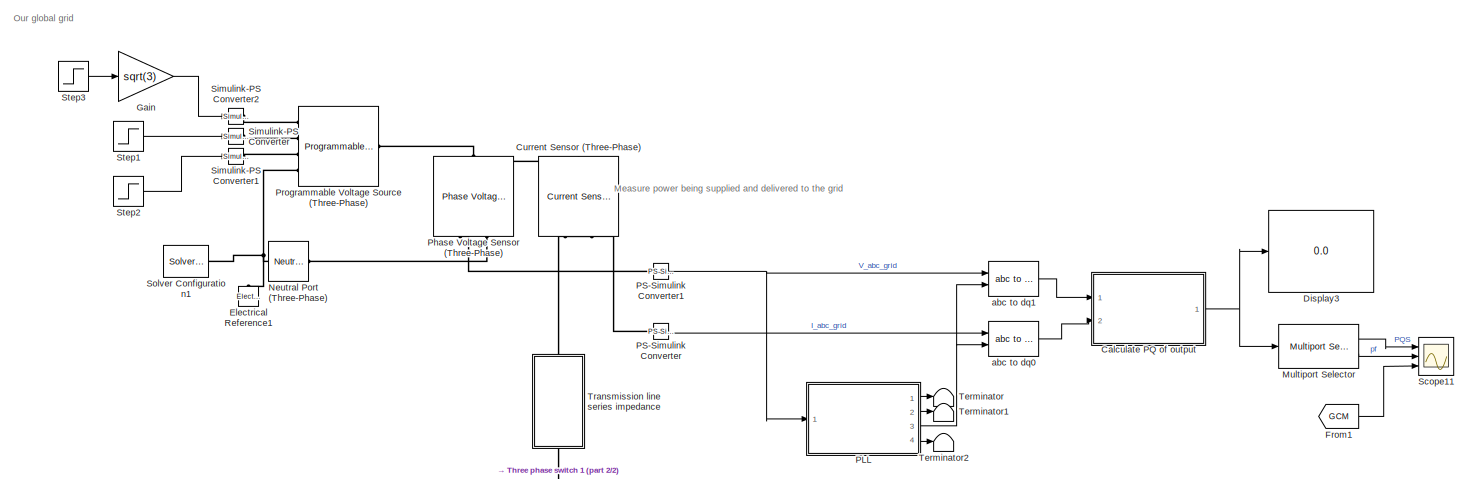
[diagram: root canvas - part 1/2, full width, top band]
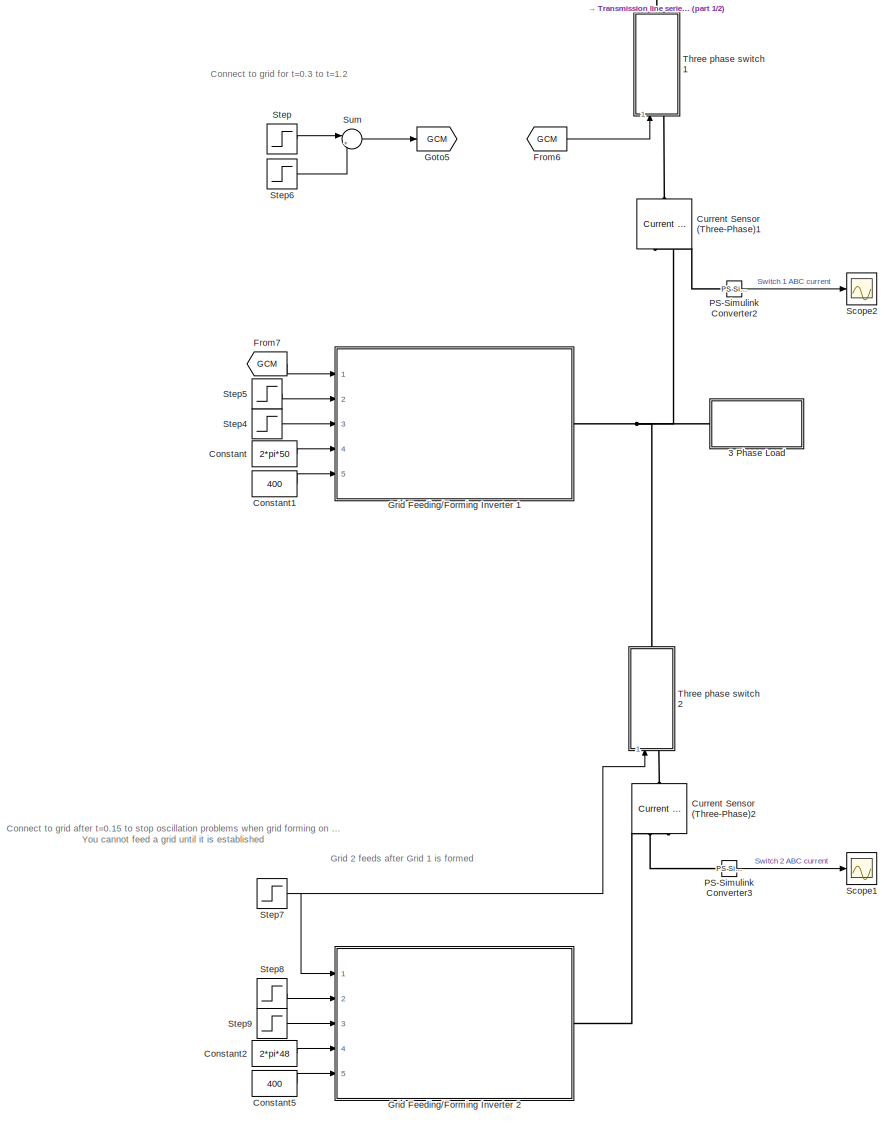
[diagram: root canvas - part 2/2, middle left region]
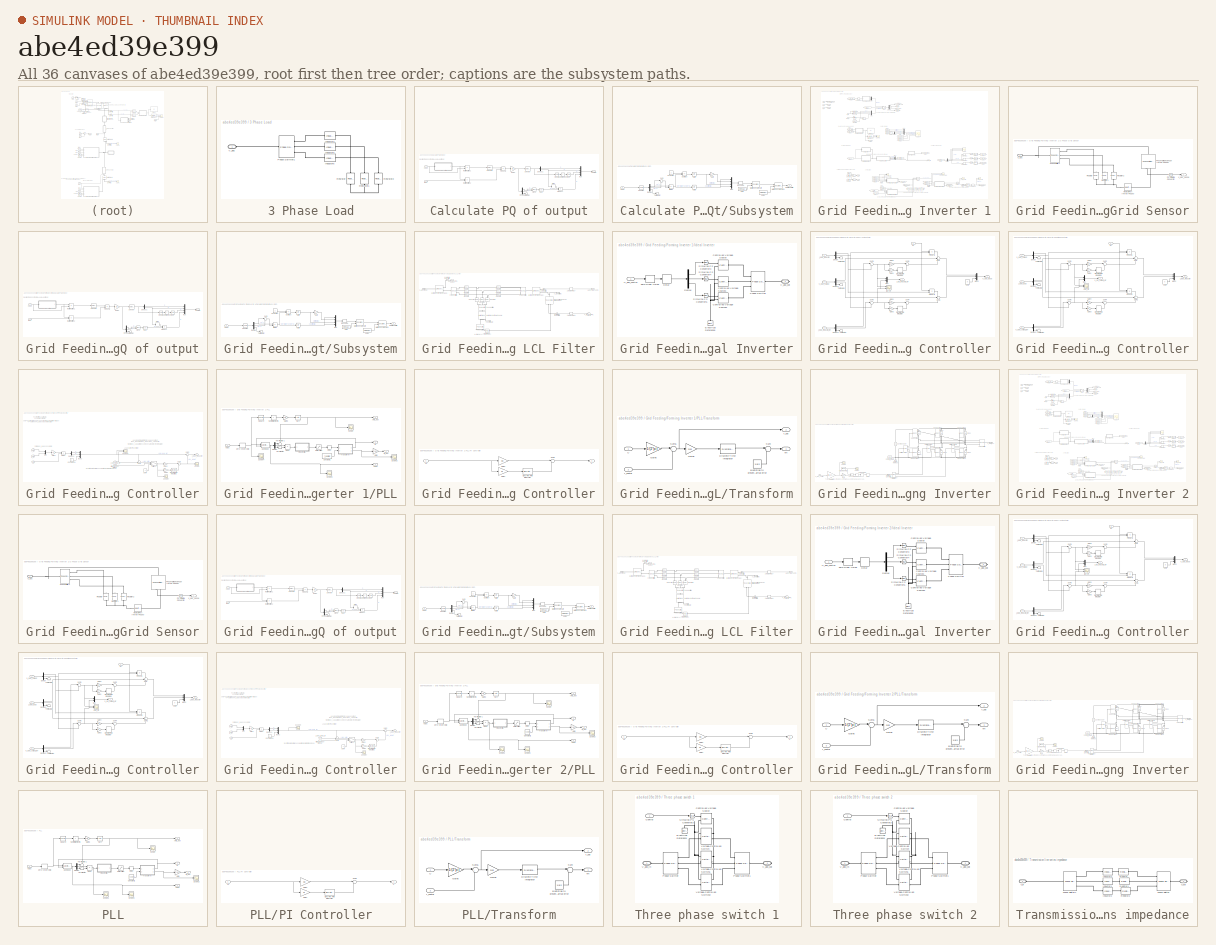
[diagram: thumbnail index - all 36 canvases of the model, root first then tree order]
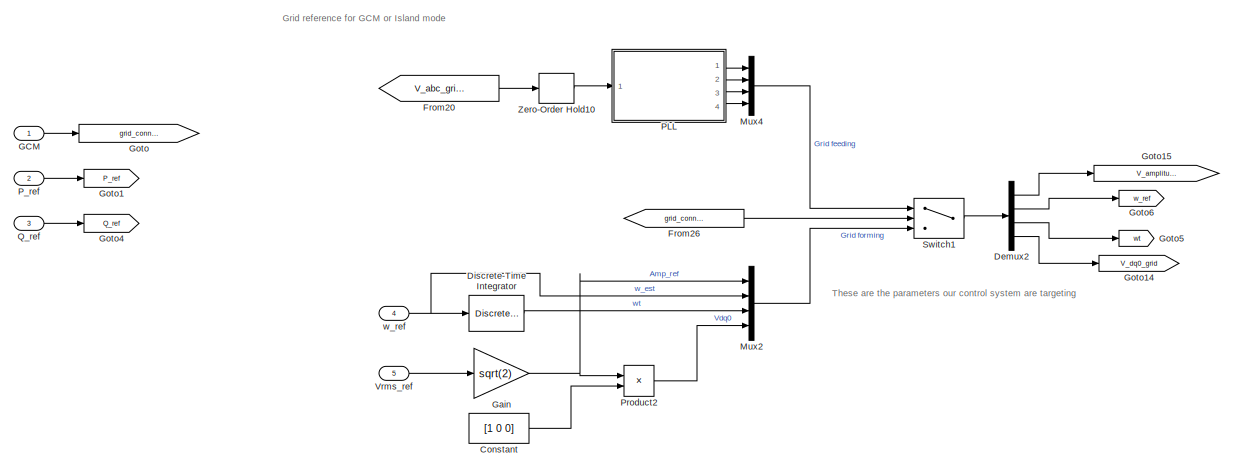
[diagram: Grid Feeding/Forming Inverter 1 - part 1/6, top left region]
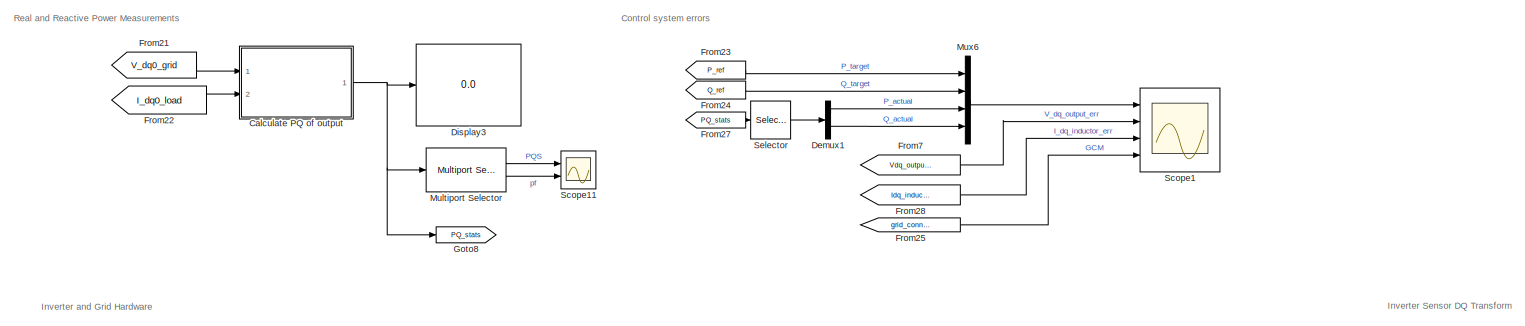
[diagram: Grid Feeding/Forming Inverter 1 - part 2/6, central region]
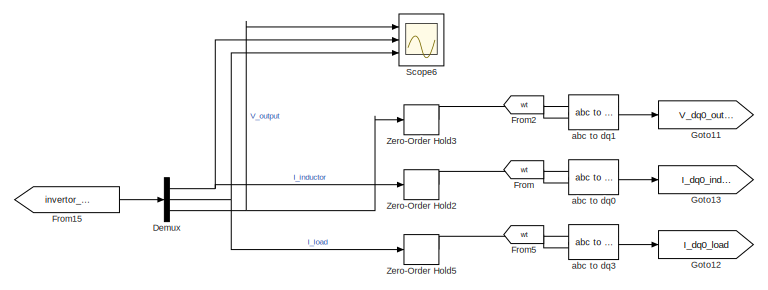
[diagram: Grid Feeding/Forming Inverter 1 - part 3/6, middle right region]
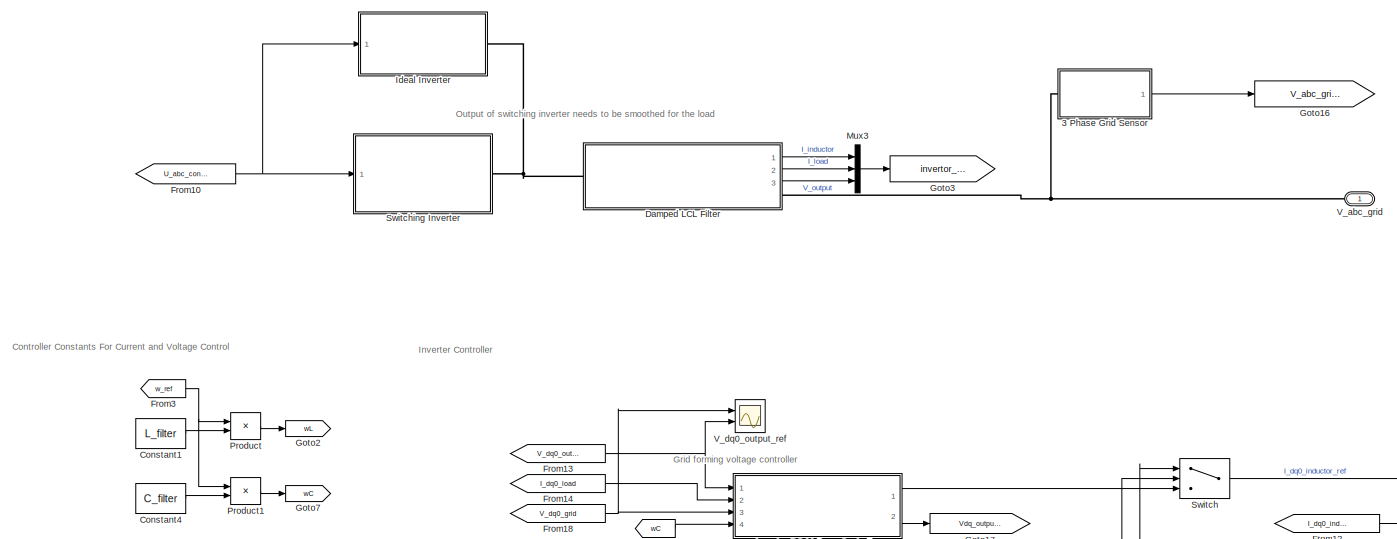
[diagram: Grid Feeding/Forming Inverter 1 - part 4/6, bottom center region]
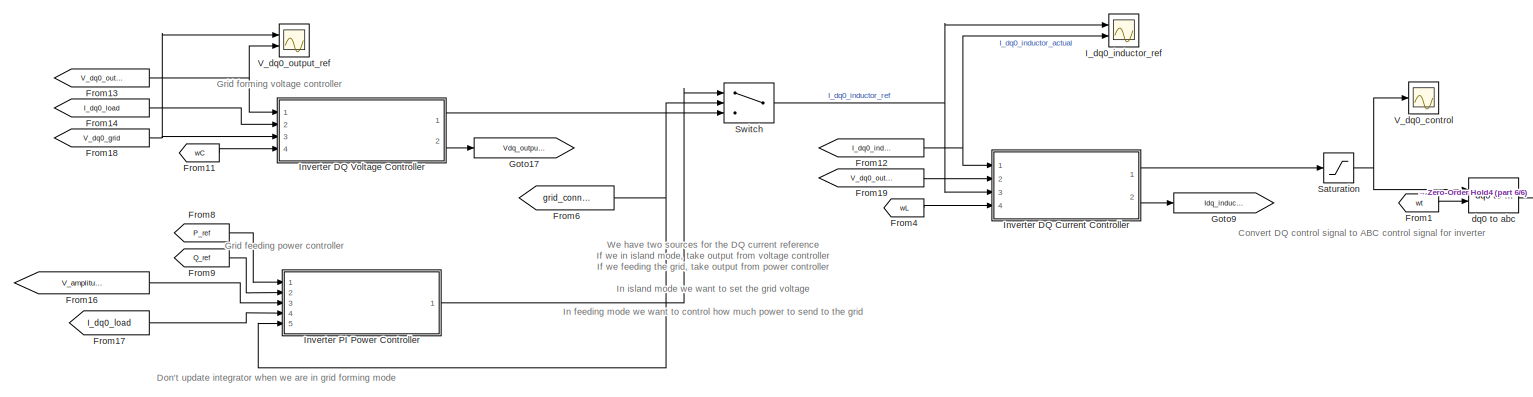
[diagram: Grid Feeding/Forming Inverter 1 - part 5/6, bottom center region]
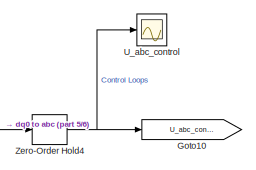
[diagram: Grid Feeding/Forming Inverter 1 - part 6/6, bottom right region]
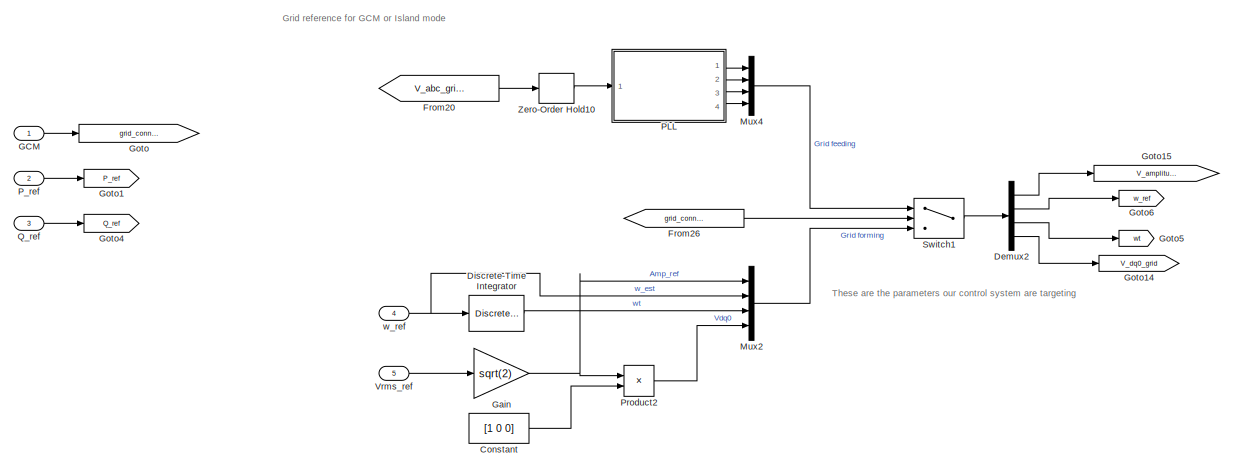
[diagram: Grid Feeding/Forming Inverter 2 - part 1/6, top left region]
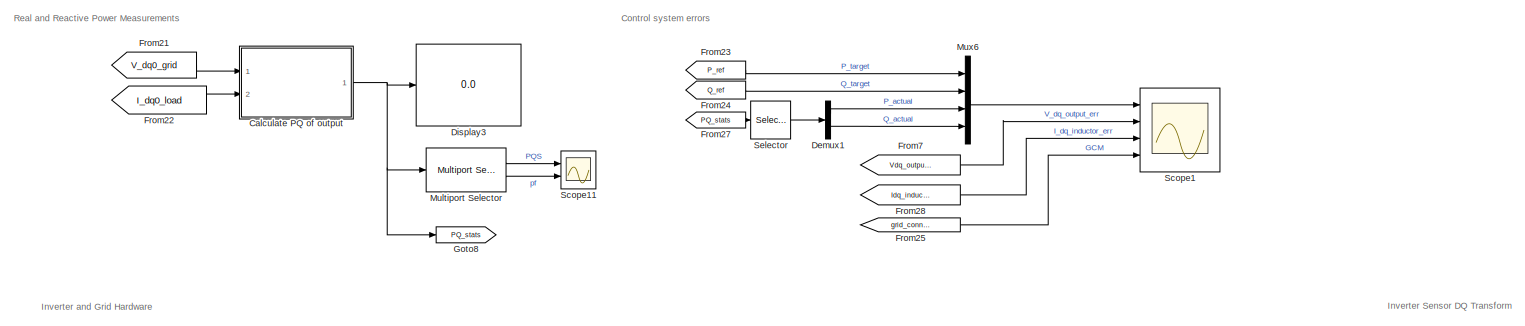
[diagram: Grid Feeding/Forming Inverter 2 - part 2/6, central region]
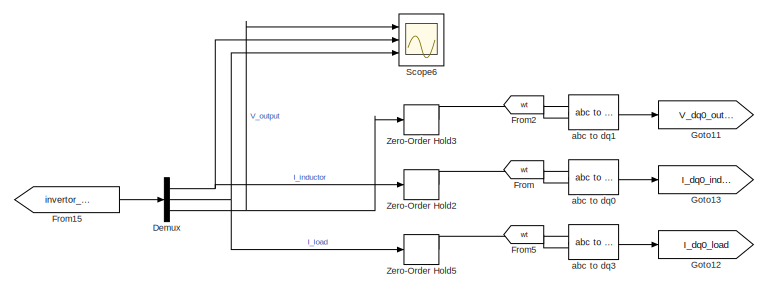
[diagram: Grid Feeding/Forming Inverter 2 - part 3/6, middle right region]
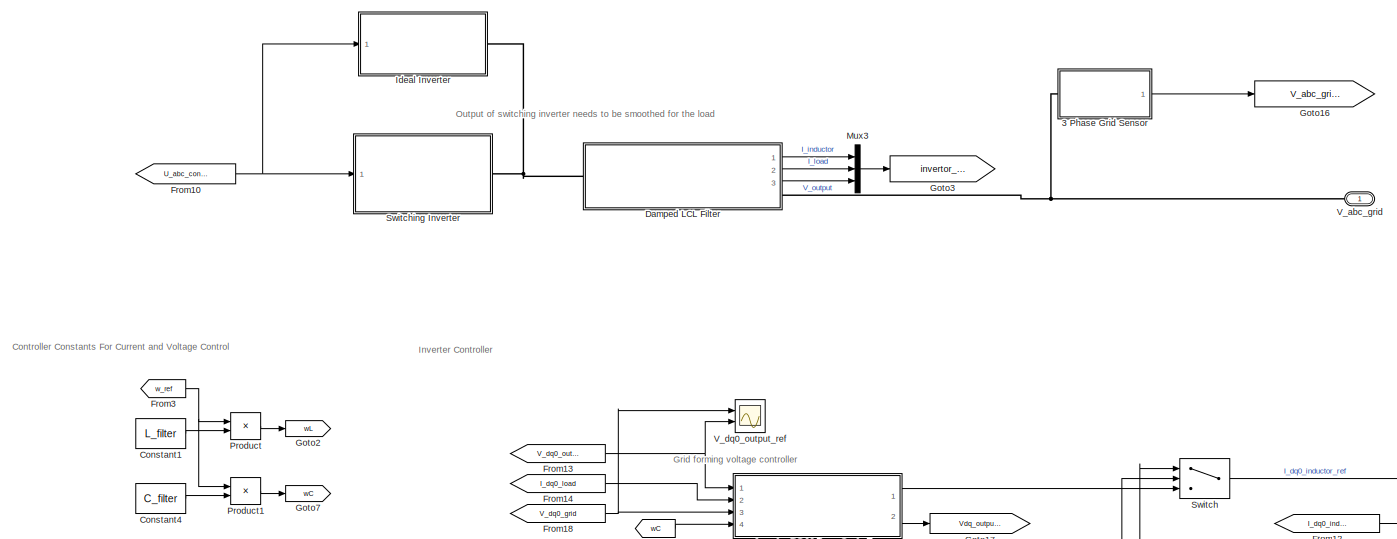
[diagram: Grid Feeding/Forming Inverter 2 - part 4/6, bottom center region]
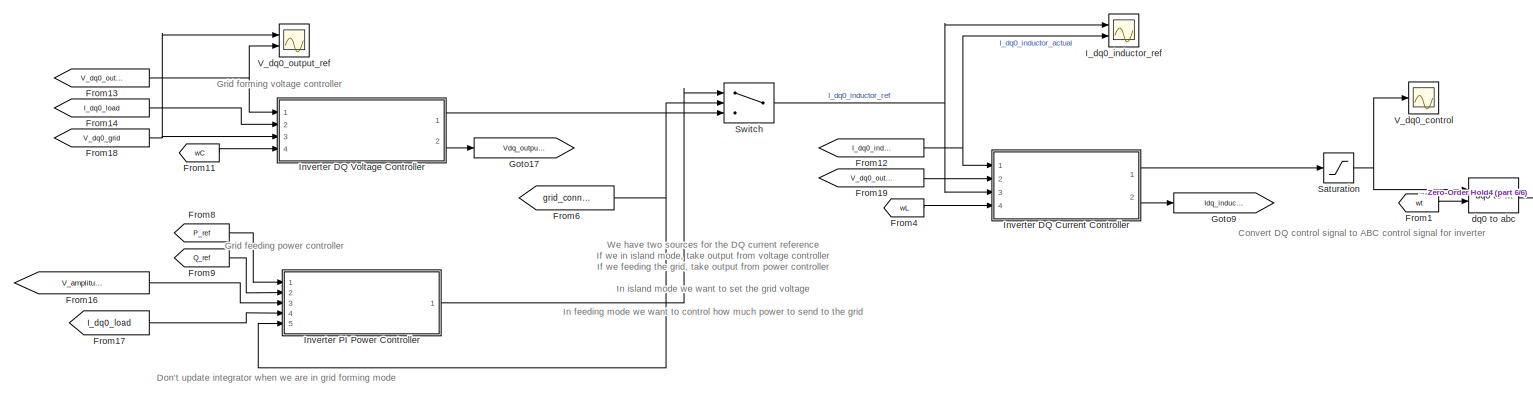
[diagram: Grid Feeding/Forming Inverter 2 - part 5/6, bottom center region]
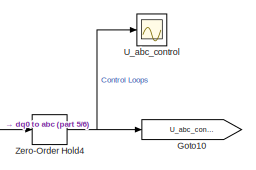
[diagram: Grid Feeding/Forming Inverter 2 - part 6/6, bottom right region]
MODEL slx_abe4ed39e399
KIND model
CONFIG AbsTol = auto
CONFIG EnableMultiTasking = off
CONFIG FixedStep = Ts
CONFIG InitFcn = Ts=1e-6;\nTcs=1e-4;
CONFIG MaxStep = auto
CONFIG MinStep = auto
CONFIG RelTol = 1e-3
CONFIG SampleTimeConstraint = Unconstrained
CONFIG SolverName = FixedStepDiscrete
CONFIG StartTime = 0.0
CONFIG StopTime = 2
BLOCK [SubSystem] 3 Phase Load
  Ports = [0, 0, 0, 0, 0, 1]
  RequestExecContextInheritance = off
BLOCK [Reference] 3 Phase Load/Inductor3  REF=ee_lib/Passive/Inductor
  Ports = [0, 0, 0, 0, 0, 1, 1]
  SourceBlock = ee_lib/Passive/Inductor
  SourceProductBaseCode = PS
  SourceType = Inductor
BLOCK [Reference] 3 Phase Load/Inductor4  REF=ee_lib/Passive/Inductor
  Ports = [0, 0, 0, 0, 0, 1, 1]
  SourceBlock = ee_lib/Passive/Inductor
  SourceProductBaseCode = PS
  SourceType = Inductor
BLOCK [Reference] 3 Phase Load/Inductor5  REF=ee_lib/Passive/Inductor
  Ports = [0, 0, 0, 0, 0, 1, 1]
  SourceBlock = ee_lib/Passive/Inductor
  SourceProductBaseCode = PS
  SourceType = Inductor
BLOCK [Reference] 3 Phase Load/Phase Splitter1  REF=ee_lib/Connectors &
References/Phase Splitter
  Ports = [0, 0, 0, 0, 0, 1, 3]
  SourceBlock = ee_lib/Connectors &\nReferences/Phase Splitter
  SourceProductBaseCode = PS
  SourceType = Phase Splitter
BLOCK [Reference] 3 Phase Load/Resistor  REF=ee_lib/Passive/Resistor
  NameLocation = left
  Ports = [0, 0, 0, 0, 0, 1, 1]
  SourceBlock = ee_lib/Passive/Resistor
  SourceProductBaseCode = PS
  SourceType = Resistor
BLOCK [Reference] 3 Phase Load/Resistor1  REF=ee_lib/Passive/Resistor
  NameLocation = left
  Ports = [0, 0, 0, 0, 0, 1, 1]
  SourceBlock = ee_lib/Passive/Resistor
  SourceProductBaseCode = PS
  SourceType = Resistor
BLOCK [Reference] 3 Phase Load/Resistor2  REF=ee_lib/Passive/Resistor
  NameLocation = left
  Ports = [0, 0, 0, 0, 0, 1, 1]
  SourceBlock = ee_lib/Passive/Resistor
  SourceProductBaseCode = PS
  SourceType = Resistor
BLOCK [PMIOPort] 3 Phase Load/V_abc
  Side = Left
BLOCK [SubSystem] Calculate PQ of output
  Ports = [2, 1]
  RequestExecContextInheritance = off
BLOCK [Trigonometry] Calculate PQ of output/Atan2
  Operator = atan2
  Ports = [2, 1]
BLOCK [Trigonometry] Calculate PQ of output/Cos
  Operator = cos
  Ports = [1, 1]
BLOCK [Demux] Calculate PQ of output/Demux
  Outputs = 3
  Ports = [1, 3]
BLOCK [Demux] Calculate PQ of output/Demux1
  Outputs = 2
  Ports = [1, 2]
BLOCK [Gain] Calculate PQ of output/Gain2
  Gain = 3/2
BLOCK [Inport] Calculate PQ of output/Idq0
  Port = 2
BLOCK [Product] Calculate PQ of output/MatrixMultiply1
  Multiplication = Matrix(*)
  Ports = [2, 1]
BLOCK [Product] Calculate PQ of output/MatrixMultiply2
  Multiplication = Matrix(*)
  Ports = [2, 1]
BLOCK [Mux] Calculate PQ of output/Mux
  DisplayOption = bar
  Ports = [4, 1]
BLOCK [Outport] Calculate PQ of output/PQ Stats
BLOCK [Product] Calculate PQ of output/Product
  Ports = [2, 1]
BLOCK [Product] Calculate PQ of output/Product2
  Ports = [2, 1]
BLOCK [Selector] Calculate PQ of output/Selector
  IndexOptions = Index vector (dialog)
  Indices = [1 2]
  InputPortWidth = 3
  OutputSizes = 1
  Ports = [1, 1]
BLOCK [Selector] Calculate PQ of output/Selector1
  IndexOptions = Index vector (dialog)
  Indices = [1]
  InputPortWidth = 3
  OutputSizes = 1
  Ports = [1, 1]
BLOCK [Signum] Calculate PQ of output/Sign
BLOCK [Sqrt] Calculate PQ of output/Sqrt
BLOCK [Math] Calculate PQ of output/Square
  Operator = square
  Ports = [1, 1]
BLOCK [SubSystem] Calculate PQ of output/Subsystem
  Ports = [1, 1]
  RequestExecContextInheritance = off
BLOCK [Constant] Calculate PQ of output/Subsystem/Constant
BLOCK [Demux] Calculate PQ of output/Subsystem/Demux
  Outputs = 3
  Ports = [1, 3]
BLOCK [Product] Calculate PQ of output/Subsystem/Divide
  Inputs = */
  Ports = [2, 1]
BLOCK [Gain] Calculate PQ of output/Subsystem/Gain
  Gain = -1
BLOCK [Concatenate] Calculate PQ of output/Subsystem/Matrix Concatenate
  Mode = Multidimensional array
  Ports = [2, 1]
BLOCK [Concatenate] Calculate PQ of output/Subsystem/Matrix Concatenate1
  ConcatenateDimension = 2
  Mode = Multidimensional array
  Ports = [2, 1]
BLOCK [Mux] Calculate PQ of output/Subsystem/Mux
  DisplayOption = bar
  Ports = [4, 1]
BLOCK [Reshape] Calculate PQ of output/Subsystem/Reshape
  OutputDimensionality = Customize
  OutputDimensions = [2,2]
  Ports = [1, 1]
BLOCK [Outport] Calculate PQ of output/Subsystem/Rotation Matrix
BLOCK [Sqrt] Calculate PQ of output/Subsystem/Sqrt1
BLOCK [Sqrt] Calculate PQ of output/Subsystem/Sqrt2
BLOCK [Math] Calculate PQ of output/Subsystem/Square1
  Operator = square
  Ports = [1, 1]
BLOCK [Sum] Calculate PQ of output/Subsystem/Subtract
  IconShape = rectangular
  Inputs = +-
  Ports = [2, 1]
BLOCK [Sum] Calculate PQ of output/Subsystem/Sum
  Inputs = |++
  Ports = [2, 1]
BLOCK [Terminator] Calculate PQ of output/Subsystem/Terminator
BLOCK [Inport] Calculate PQ of output/Subsystem/Vdq0
BLOCK [Constant] Calculate PQ of output/Subsystem/Zero
  OutDataTypeStr = Inherit: Inherit via back propagation
  Value = zeros(1,2)
  VectorParams1D = off
BLOCK [Constant] Calculate PQ of output/Subsystem/Zero1
  OutDataTypeStr = Inherit: Inherit via back propagation
  Value = zeros(3,1)
  VectorParams1D = off
BLOCK [Sum] Calculate PQ of output/Sum of Elements
  IconShape = rectangular
  Inputs = +
  Ports = [1, 1]
BLOCK [Terminator] Calculate PQ of output/Terminator
BLOCK [Inport] Calculate PQ of output/Vdq0
BLOCK [Constant] Constant
  Value = 2*pi*50
BLOCK [Constant] Constant1
  Value = 400
BLOCK [Constant] Constant2
  Value = 2*pi*48
BLOCK [Constant] Constant5
  Value = 400
BLOCK [Reference] Current Sensor (Three-Phase)  REF=ee_lib/Sensors &
Transducers/Current Sensor
(Three-Phase)
  NameLocation = left
  Ports = [0, 0, 0, 0, 0, 1, 2]
  SourceBlock = ee_lib/Sensors &\nTransducers/Current Sensor\n(Three-Phase)
  SourceProductBaseCode = PS
  SourceType = Current Sensor\n(Three-Phase)
BLOCK [Reference] Current Sensor (Three-Phase)1  REF=ee_lib/Sensors &
Transducers/Current Sensor
(Three-Phase)
  NameLocation = left
  Ports = [0, 0, 0, 0, 0, 1, 2]
  SourceBlock = ee_lib/Sensors &\nTransducers/Current Sensor\n(Three-Phase)
  SourceProductBaseCode = PS
  SourceType = Current Sensor\n(Three-Phase)
BLOCK [Reference] Current Sensor (Three-Phase)2  REF=ee_lib/Sensors &
Transducers/Current Sensor
(Three-Phase)
  NameLocation = left
  Ports = [0, 0, 0, 0, 0, 1, 2]
  SourceBlock = ee_lib/Sensors &\nTransducers/Current Sensor\n(Three-Phase)
  SourceProductBaseCode = PS
  SourceType = Current Sensor\n(Three-Phase)
BLOCK [Display] Display3
  Decimation = 1
  Ports = [1]
BLOCK [Reference] Electrical Reference1  REF=fl_lib/Electrical/Electrical Elements/Electrical Reference
  NameLocation = right
  Ports = [0, 0, 0, 0, 0, 1]
  SourceBlock = fl_lib/Electrical/Electrical Elements/Electrical Reference
  SourceProductBaseCode = PW,SS,VE
  SourceType = Electrical Reference
BLOCK [From] From1
  GotoTag = GCM
BLOCK [From] From6
  GotoTag = GCM
BLOCK [From] From7
  GotoTag = GCM
BLOCK [Gain] Gain
  Gain = sqrt(3)
BLOCK [Goto] Goto5
  GotoTag = GCM
BLOCK [SubSystem] Grid Feeding//Forming Inverter 1
  Ports = [5, 0, 0, 0, 0, 0, 1]
  RequestExecContextInheritance = off
BLOCK [SubSystem] Grid Feeding//Forming Inverter 1/3 Phase Grid Sensor
  Ports = [0, 1, 0, 0, 0, 1]
  RequestExecContextInheritance = off
BLOCK [Reference] Grid Feeding//Forming Inverter 1/3 Phase Grid Sensor/Neutral Port (Three-Phase)  REF=ee_lib/Connectors &
References/Neutral Port
(Three-Phase)
  Ports = [0, 0, 0, 0, 0, 1, 1]
  SourceBlock = ee_lib/Connectors &\nReferences/Neutral Port\n(Three-Phase)
  SourceProductBaseCode = PS
  SourceType = Neutral Port\n(Three-Phase)
BLOCK [Reference] Grid Feeding//Forming Inverter 1/3 Phase Grid Sensor/PS-Simulink Converter  REF=nesl_utility/PS-Simulink
Converter
  Ports = [0, 1, 0, 0, 0, 1]
  SourceBlock = nesl_utility/PS-Simulink\nConverter
  SourceProductBaseCode = SS,PW,VE
  SourceType = PS-Simulink\nConverter
BLOCK [Reference] Grid Feeding//Forming Inverter 1/3 Phase Grid Sensor/Phase Splitter1  REF=ee_lib/Connectors &
References/Phase Splitter
  Ports = [0, 0, 0, 0, 0, 1, 3]
  SourceBlock = ee_lib/Connectors &\nReferences/Phase Splitter
  SourceProductBaseCode = PS
  SourceType = Phase Splitter
BLOCK [Reference] Grid Feeding//Forming Inverter 1/3 Phase Grid Sensor/Phase Voltage Sensor (Three-Phase)  REF=ee_lib/Sensors &
Transducers/Phase Voltage Sensor
(Three-Phase)
  NameLocation = right
  Ports = [0, 0, 0, 0, 0, 1, 2]
  SourceBlock = ee_lib/Sensors &\nTransducers/Phase Voltage Sensor\n(Three-Phase)
  SourceProductBaseCode = PS
  SourceType = Phase Voltage Sensor\n(Three-Phase)
BLOCK [Reference] Grid Feeding//Forming Inverter 1/3 Phase Grid Sensor/Resistor  REF=ee_lib/Passive/Resistor
  NameLocation = left
  Ports = [0, 0, 0, 0, 0, 1, 1]
  SourceBlock = ee_lib/Passive/Resistor
  SourceProductBaseCode = PS
  SourceType = Resistor
BLOCK [Reference] Grid Feeding//Forming Inverter 1/3 Phase Grid Sensor/Resistor1  REF=ee_lib/Passive/Resistor
  NameLocation = left
  Ports = [0, 0, 0, 0, 0, 1, 1]
  SourceBlock = ee_lib/Passive/Resistor
  SourceProductBaseCode = PS
  SourceType = Resistor
BLOCK [Reference] Grid Feeding//Forming Inverter 1/3 Phase Grid Sensor/Resistor2  REF=ee_lib/Passive/Resistor
  NameLocation = left
  Ports = [0, 0, 0, 0, 0, 1, 1]
  SourceBlock = ee_lib/Passive/Resistor
  SourceProductBaseCode = PS
  SourceType = Resistor
BLOCK [PMIOPort] Grid Feeding//Forming Inverter 1/3 Phase Grid Sensor/V_abc
  Side = Left
BLOCK [Outport] Grid Feeding//Forming Inverter 1/3 Phase Grid Sensor/V_abc_sense
BLOCK [SubSystem] Grid Feeding//Forming Inverter 1/Calculate PQ of output
  Ports = [2, 1]
  RequestExecContextInheritance = off
BLOCK [Trigonometry] Grid Feeding//Forming Inverter 1/Calculate PQ of output/Atan2
  Operator = atan2
  Ports = [2, 1]
BLOCK [Trigonometry] Grid Feeding//Forming Inverter 1/Calculate PQ of output/Cos
  Operator = cos
  Ports = [1, 1]
BLOCK [Demux] Grid Feeding//Forming Inverter 1/Calculate PQ of output/Demux
  Outputs = 3
  Ports = [1, 3]
BLOCK [Demux] Grid Feeding//Forming Inverter 1/Calculate PQ of output/Demux1
  Outputs = 2
  Ports = [1, 2]
BLOCK [Gain] Grid Feeding//Forming Inverter 1/Calculate PQ of output/Gain2
  Gain = 3/2
BLOCK [Inport] Grid Feeding//Forming Inverter 1/Calculate PQ of output/Idq0
  Port = 2
BLOCK [Product] Grid Feeding//Forming Inverter 1/Calculate PQ of output/MatrixMultiply1
  Multiplication = Matrix(*)
  Ports = [2, 1]
BLOCK [Product] Grid Feeding//Forming Inverter 1/Calculate PQ of output/MatrixMultiply2
  Multiplication = Matrix(*)
  Ports = [2, 1]
BLOCK [Mux] Grid Feeding//Forming Inverter 1/Calculate PQ of output/Mux
  DisplayOption = bar
  Ports = [4, 1]
BLOCK [Outport] Grid Feeding//Forming Inverter 1/Calculate PQ of output/PQ Stats
BLOCK [Product] Grid Feeding//Forming Inverter 1/Calculate PQ of output/Product
  Ports = [2, 1]
BLOCK [Product] Grid Feeding//Forming Inverter 1/Calculate PQ of output/Product2
  Ports = [2, 1]
BLOCK [Selector] Grid Feeding//Forming Inverter 1/Calculate PQ of output/Selector
  IndexOptions = Index vector (dialog)
  Indices = [1 2]
  InputPortWidth = 3
  OutputSizes = 1
  Ports = [1, 1]
BLOCK [Selector] Grid Feeding//Forming Inverter 1/Calculate PQ of output/Selector1
  IndexOptions = Index vector (dialog)
  Indices = [1]
  InputPortWidth = 3
  OutputSizes = 1
  Ports = [1, 1]
BLOCK [Signum] Grid Feeding//Forming Inverter 1/Calculate PQ of output/Sign
BLOCK [Sqrt] Grid Feeding//Forming Inverter 1/Calculate PQ of output/Sqrt
BLOCK [Math] Grid Feeding//Forming Inverter 1/Calculate PQ of output/Square
  Operator = square
  Ports = [1, 1]
BLOCK [SubSystem] Grid Feeding//Forming Inverter 1/Calculate PQ of output/Subsystem
  Ports = [1, 1]
  RequestExecContextInheritance = off
BLOCK [Constant] Grid Feeding//Forming Inverter 1/Calculate PQ of output/Subsystem/Constant
BLOCK [Demux] Grid Feeding//Forming Inverter 1/Calculate PQ of output/Subsystem/Demux
  Outputs = 3
  Ports = [1, 3]
BLOCK [Product] Grid Feeding//Forming Inverter 1/Calculate PQ of output/Subsystem/Divide
  Inputs = */
  Ports = [2, 1]
BLOCK [Gain] Grid Feeding//Forming Inverter 1/Calculate PQ of output/Subsystem/Gain
  Gain = -1
BLOCK [Concatenate] Grid Feeding//Forming Inverter 1/Calculate PQ of output/Subsystem/Matrix Concatenate
  Mode = Multidimensional array
  Ports = [2, 1]
BLOCK [Concatenate] Grid Feeding//Forming Inverter 1/Calculate PQ of output/Subsystem/Matrix Concatenate1
  ConcatenateDimension = 2
  Mode = Multidimensional array
  Ports = [2, 1]
BLOCK [Mux] Grid Feeding//Forming Inverter 1/Calculate PQ of output/Subsystem/Mux
  DisplayOption = bar
  Ports = [4, 1]
BLOCK [Reshape] Grid Feeding//Forming Inverter 1/Calculate PQ of output/Subsystem/Reshape
  OutputDimensionality = Customize
  OutputDimensions = [2,2]
  Ports = [1, 1]
BLOCK [Outport] Grid Feeding//Forming Inverter 1/Calculate PQ of output/Subsystem/Rotation Matrix
BLOCK [Sqrt] Grid Feeding//Forming Inverter 1/Calculate PQ of output/Subsystem/Sqrt1
BLOCK [Sqrt] Grid Feeding//Forming Inverter 1/Calculate PQ of output/Subsystem/Sqrt2
BLOCK [Math] Grid Feeding//Forming Inverter 1/Calculate PQ of output/Subsystem/Square1
  Operator = square
  Ports = [1, 1]
BLOCK [Sum] Grid Feeding//Forming Inverter 1/Calculate PQ of output/Subsystem/Subtract
  IconShape = rectangular
  Inputs = +-
  Ports = [2, 1]
BLOCK [Sum] Grid Feeding//Forming Inverter 1/Calculate PQ of output/Subsystem/Sum
  Inputs = |++
  Ports = [2, 1]
BLOCK [Terminator] Grid Feeding//Forming Inverter 1/Calculate PQ of output/Subsystem/Terminator
BLOCK [Inport] Grid Feeding//Forming Inverter 1/Calculate PQ of output/Subsystem/Vdq0
BLOCK [Constant] Grid Feeding//Forming Inverter 1/Calculate PQ of output/Subsystem/Zero
  OutDataTypeStr = Inherit: Inherit via back propagation
  Value = zeros(1,2)
  VectorParams1D = off
BLOCK [Constant] Grid Feeding//Forming Inverter 1/Calculate PQ of output/Subsystem/Zero1
  OutDataTypeStr = Inherit: Inherit via back propagation
  Value = zeros(3,1)
  VectorParams1D = off
BLOCK [Sum] Grid Feeding//Forming Inverter 1/Calculate PQ of output/Sum of Elements
  IconShape = rectangular
  Inputs = +
  Ports = [1, 1]
BLOCK [Terminator] Grid Feeding//Forming Inverter 1/Calculate PQ of output/Terminator
BLOCK [Inport] Grid Feeding//Forming Inverter 1/Calculate PQ of output/Vdq0
BLOCK [Constant] Grid Feeding//Forming Inverter 1/Constant
  Value = [1 0 0]
BLOCK [Constant] Grid Feeding//Forming Inverter 1/Constant1
  Value = L_filter
BLOCK [Constant] Grid Feeding//Forming Inverter 1/Constant4
  Value = C_filter
BLOCK [SubSystem] Grid Feeding//Forming Inverter 1/Damped LCL Filter
  Ports = [0, 3, 0, 0, 0, 1, 1]
  RequestExecContextInheritance = off
BLOCK [Reference] Grid Feeding//Forming Inverter 1/Damped LCL Filter/Capacitor  REF=fl_lib/Electrical/Electrical Elements/Capacitor
  NameLocation = left
  Ports = [0, 0, 0, 0, 0, 1, 1]
  SourceBlock = fl_lib/Electrical/Electrical Elements/Capacitor
  SourceProductBaseCode = PW,SS,VE
  SourceType = Capacitor
BLOCK [Reference] Grid Feeding//Forming Inverter 1/Damped LCL Filter/Capacitor1  REF=fl_lib/Electrical/Electrical Elements/Capacitor
  Ports = [0, 0, 0, 0, 0, 1, 1]
  SourceBlock = fl_lib/Electrical/Electrical Elements/Capacitor
  SourceProductBaseCode = PW,SS,VE
  SourceType = Capacitor
BLOCK [Reference] Grid Feeding//Forming Inverter 1/Damped LCL Filter/Capacitor2  REF=fl_lib/Electrical/Electrical Elements/Capacitor
  NameLocation = left
  Ports = [0, 0, 0, 0, 0, 1, 1]
  SourceBlock = fl_lib/Electrical/Electrical Elements/Capacitor
  SourceProductBaseCode = PW,SS,VE
  SourceType = Capacitor
BLOCK [Reference] Grid Feeding//Forming Inverter 1/Damped LCL Filter/Current Sensor (Three-Phase)  REF=ee_lib/Sensors &
Transducers/Current Sensor
(Three-Phase)
  Ports = [0, 0, 0, 0, 0, 1, 2]
  SourceBlock = ee_lib/Sensors &\nTransducers/Current Sensor\n(Three-Phase)
  SourceProductBaseCode = PS
  SourceType = Current Sensor\n(Three-Phase)
BLOCK [Reference] Grid Feeding//Forming Inverter 1/Damped LCL Filter/Current Sensor (Three-Phase)1  REF=ee_lib/Sensors &
Transducers/Current Sensor
(Three-Phase)
  Ports = [0, 0, 0, 0, 0, 1, 2]
  SourceBlock = ee_lib/Sensors &\nTransducers/Current Sensor\n(Three-Phase)
  SourceProductBaseCode = PS
  SourceType = Current Sensor\n(Three-Phase)
BLOCK [Reference] Grid Feeding//Forming Inverter 1/Damped LCL Filter/Current Sensor (Three-Phase)2  REF=ee_lib/Sensors &
Transducers/Current Sensor
(Three-Phase)
  NameLocation = left
  Ports = [0, 0, 0, 0, 0, 1, 2]
  SourceBlock = ee_lib/Sensors &\nTransducers/Current Sensor\n(Three-Phase)
  SourceProductBaseCode = PS
  SourceType = Current Sensor\n(Three-Phase)
BLOCK [Outport] Grid Feeding//Forming Inverter 1/Damped LCL Filter/I_abc_inductor_sense
BLOCK [Outport] Grid Feeding//Forming Inverter 1/Damped LCL Filter/I_abc_load_sense
  Port = 2
BLOCK [Reference] Grid Feeding//Forming Inverter 1/Damped LCL Filter/Inductor  REF=ee_lib/Passive/Inductor
  Ports = [0, 0, 0, 0, 0, 1, 1]
  SourceBlock = ee_lib/Passive/Inductor
  SourceProductBaseCode = PS
  SourceType = Inductor
BLOCK [Reference] Grid Feeding//Forming Inverter 1/Damped LCL Filter/Inductor1  REF=ee_lib/Passive/Inductor
  Ports = [0, 0, 0, 0, 0, 1, 1]
  SourceBlock = ee_lib/Passive/Inductor
  SourceProductBaseCode = PS
  SourceType = Inductor
BLOCK [Reference] Grid Feeding//Forming Inverter 1/Damped LCL Filter/Inductor2  REF=ee_lib/Passive/Inductor
  Ports = [0, 0, 0, 0, 0, 1, 1]
  SourceBlock = ee_lib/Passive/Inductor
  SourceProductBaseCode = PS
  SourceType = Inductor
BLOCK [Reference] Grid Feeding//Forming Inverter 1/Damped LCL Filter/Inductor3  REF=ee_lib/Passive/Inductor
  Ports = [0, 0, 0, 0, 0, 1, 1]
  SourceBlock = ee_lib/Passive/Inductor
  SourceProductBaseCode = PS
  SourceType = Inductor
BLOCK [Reference] Grid Feeding//Forming Inverter 1/Damped LCL Filter/Inductor4  REF=ee_lib/Passive/Inductor
  Ports = [0, 0, 0, 0, 0, 1, 1]
  SourceBlock = ee_lib/Passive/Inductor
  SourceProductBaseCode = PS
  SourceType = Inductor
BLOCK [Reference] Grid Feeding//Forming Inverter 1/Damped LCL Filter/Inductor5  REF=ee_lib/Passive/Inductor
  Ports = [0, 0, 0, 0, 0, 1, 1]
  SourceBlock = ee_lib/Passive/Inductor
  SourceProductBaseCode = PS
  SourceType = Inductor
BLOCK [Reference] Grid Feeding//Forming Inverter 1/Damped LCL Filter/Neutral Port (Three-Phase)  REF=ee_lib/Connectors &
References/Neutral Port
(Three-Phase)
  Ports = [0, 0, 0, 0, 0, 1, 1]
  SourceBlock = ee_lib/Connectors &\nReferences/Neutral Port\n(Three-Phase)
  SourceProductBaseCode = PS
  SourceType = Neutral Port\n(Three-Phase)
BLOCK [Reference] Grid Feeding//Forming Inverter 1/Damped LCL Filter/PS Terminator  REF=fl_lib/Physical Signals/Sinks/PS Terminator
  Ports = [0, 0, 0, 0, 0, 1]
  SourceBlock = fl_lib/Physical Signals/Sinks/PS Terminator
  SourceProductBaseCode = PW,SS,VE
  SourceType = PS Terminator
BLOCK [Reference] Grid Feeding//Forming Inverter 1/Damped LCL Filter/PS-Simulink Converter  REF=nesl_utility/PS-Simulink
Converter
  Ports = [0, 1, 0, 0, 0, 1]
  SourceBlock = nesl_utility/PS-Simulink\nConverter
  SourceProductBaseCode = SS,PW,VE
  SourceType = PS-Simulink\nConverter
BLOCK [Reference] Grid Feeding//Forming Inverter 1/Damped LCL Filter/PS-Simulink Converter1  REF=nesl_utility/PS-Simulink
Converter
  Ports = [0, 1, 0, 0, 0, 1]
  SourceBlock = nesl_utility/PS-Simulink\nConverter
  SourceProductBaseCode = SS,PW,VE
  SourceType = PS-Simulink\nConverter
BLOCK [Reference] Grid Feeding//Forming Inverter 1/Damped LCL Filter/PS-Simulink Converter2  REF=nesl_utility/PS-Simulink
Converter
  Ports = [0, 1, 0, 0, 0, 1]
  SourceBlock = nesl_utility/PS-Simulink\nConverter
  SourceProductBaseCode = SS,PW,VE
  SourceType = PS-Simulink\nConverter
BLOCK [Reference] Grid Feeding//Forming Inverter 1/Damped LCL Filter/Phase Splitter  REF=ee_lib/Connectors &
References/Phase Splitter
  Ports = [0, 0, 0, 0, 0, 1, 3]
  SourceBlock = ee_lib/Connectors &\nReferences/Phase Splitter
  SourceProductBaseCode = PS
  SourceType = Phase Splitter
BLOCK [Reference] Grid Feeding//Forming Inverter 1/Damped LCL Filter/Phase Splitter2  REF=ee_lib/Connectors &
References/Phase Splitter
  Ports = [0, 0, 0, 0, 0, 1, 3]
  SourceBlock = ee_lib/Connectors &\nReferences/Phase Splitter
  SourceProductBaseCode = PS
  SourceType = Phase Splitter
BLOCK [Reference] Grid Feeding//Forming Inverter 1/Damped LCL Filter/Phase Splitter3  REF=ee_lib/Connectors &
References/Phase Splitter
  NameLocation = left
  Ports = [0, 0, 0, 0, 0, 1, 3]
  SourceBlock = ee_lib/Connectors &\nReferences/Phase Splitter
  SourceProductBaseCode = PS
  SourceType = Phase Splitter
BLOCK [Reference] Grid Feeding//Forming Inverter 1/Damped LCL Filter/Phase Splitter4  REF=ee_lib/Connectors &
References/Phase Splitter
  NameLocation = left
  Ports = [0, 0, 0, 0, 0, 1, 3]
  SourceBlock = ee_lib/Connectors &\nReferences/Phase Splitter
  SourceProductBaseCode = PS
  SourceType = Phase Splitter
BLOCK [Reference] Grid Feeding//Forming Inverter 1/Damped LCL Filter/Phase Voltage Sensor (Three-Phase)  REF=ee_lib/Sensors &
Transducers/Phase Voltage Sensor
(Three-Phase)
  NameLocation = right
  Ports = [0, 0, 0, 0, 0, 1, 2]
  SourceBlock = ee_lib/Sensors &\nTransducers/Phase Voltage Sensor\n(Three-Phase)
  SourceProductBaseCode = PS
  SourceType = Phase Voltage Sensor\n(Three-Phase)
BLOCK [PMIOPort] Grid Feeding//Forming Inverter 1/Damped LCL Filter/V_abc_filtered
  Port = 2
  Side = Right
BLOCK [PMIOPort] Grid Feeding//Forming Inverter 1/Damped LCL Filter/V_abc_input
  NameLocation = top
  Side = Left
BLOCK [Outport] Grid Feeding//Forming Inverter 1/Damped LCL Filter/V_abc_output_sense
  Port = 3
BLOCK [ZeroOrderHold] Grid Feeding//Forming Inverter 1/Damped LCL Filter/Zero-Order Hold7
  SampleTime = Ts
BLOCK [ZeroOrderHold] Grid Feeding//Forming Inverter 1/Damped LCL Filter/Zero-Order Hold9
  SampleTime = Ts
BLOCK [Demux] Grid Feeding//Forming Inverter 1/Demux
  Outputs = 3
  Ports = [1, 3]
BLOCK [Demux] Grid Feeding//Forming Inverter 1/Demux1
  Outputs = 2
  Ports = [1, 2]
BLOCK [Demux] Grid Feeding//Forming Inverter 1/Demux2
  Ports = [1, 4]
BLOCK [DiscreteIntegrator] Grid Feeding//Forming Inverter 1/Discrete-Time Integrator
  ICPrevOutput = DiscIntNeverNeededParam
  ICPrevScaledInput = DiscIntNeverNeededParam
  InitialConditionSetting = Auto
  LowerSaturationLimit = -2*pi*10
  Ports = [1, 1]
  SampleTime = Tcs
  UpperSaturationLimit = 2*pi*10
BLOCK [Display] Grid Feeding//Forming Inverter 1/Display3
  Decimation = 1
  Ports = [1]
BLOCK [From] Grid Feeding//Forming Inverter 1/From
  GotoTag = wt
  NameLocation = top
BLOCK [From] Grid Feeding//Forming Inverter 1/From1
  GotoTag = wt
BLOCK [From] Grid Feeding//Forming Inverter 1/From10
  GotoTag = U_abc_control
BLOCK [From] Grid Feeding//Forming Inverter 1/From11
  GotoTag = wC
  NameLocation = top
BLOCK [From] Grid Feeding//Forming Inverter 1/From12
  GotoTag = I_dq0_inductor
BLOCK [From] Grid Feeding//Forming Inverter 1/From13
  GotoTag = V_dq0_output
BLOCK [From] Grid Feeding//Forming Inverter 1/From14
  GotoTag = I_dq0_load
BLOCK [From] Grid Feeding//Forming Inverter 1/From15
  GotoTag = invertor_sensor
BLOCK [From] Grid Feeding//Forming Inverter 1/From16
  GotoTag = V_amplitude_grid
BLOCK [From] Grid Feeding//Forming Inverter 1/From17
  GotoTag = I_dq0_load
BLOCK [From] Grid Feeding//Forming Inverter 1/From18
  GotoTag = V_dq0_grid
BLOCK [From] Grid Feeding//Forming Inverter 1/From19
  GotoTag = V_dq0_output
BLOCK [From] Grid Feeding//Forming Inverter 1/From2
  GotoTag = wt
  NameLocation = top
BLOCK [From] Grid Feeding//Forming Inverter 1/From20
  GotoTag = V_abc_grid_sense
BLOCK [From] Grid Feeding//Forming Inverter 1/From21
  GotoTag = V_dq0_grid
BLOCK [From] Grid Feeding//Forming Inverter 1/From22
  GotoTag = I_dq0_load
  NameLocation = top
BLOCK [From] Grid Feeding//Forming Inverter 1/From23
  GotoTag = P_ref
BLOCK [From] Grid Feeding//Forming Inverter 1/From24
  GotoTag = Q_ref
BLOCK [From] Grid Feeding//Forming Inverter 1/From25
  GotoTag = grid_connected
BLOCK [From] Grid Feeding//Forming Inverter 1/From26
  GotoTag = grid_connected
BLOCK [From] Grid Feeding//Forming Inverter 1/From27
  GotoTag = PQ_stats
BLOCK [From] Grid Feeding//Forming Inverter 1/From28
  GotoTag = Idq_inductor_err
BLOCK [From] Grid Feeding//Forming Inverter 1/From3
  GotoTag = w_ref
BLOCK [From] Grid Feeding//Forming Inverter 1/From4
  GotoTag = wL
  NameLocation = top
BLOCK [From] Grid Feeding//Forming Inverter 1/From5
  GotoTag = wt
  NameLocation = top
BLOCK [From] Grid Feeding//Forming Inverter 1/From6
  GotoTag = grid_connected
  NameLocation = top
BLOCK [From] Grid Feeding//Forming Inverter 1/From7
  GotoTag = Vdq_output_err
BLOCK [From] Grid Feeding//Forming Inverter 1/From8
  GotoTag = P_ref
BLOCK [From] Grid Feeding//Forming Inverter 1/From9
  GotoTag = Q_ref
BLOCK [Inport] Grid Feeding//Forming Inverter 1/GCM
BLOCK [Gain] Grid Feeding//Forming Inverter 1/Gain
  Gain = sqrt(2)
BLOCK [Goto] Grid Feeding//Forming Inverter 1/Goto
  GotoTag = grid_connected
BLOCK [Goto] Grid Feeding//Forming Inverter 1/Goto1
  GotoTag = P_ref
BLOCK [Goto] Grid Feeding//Forming Inverter 1/Goto10
  GotoTag = U_abc_control
BLOCK [Goto] Grid Feeding//Forming Inverter 1/Goto11
  GotoTag = V_dq0_output
  NameLocation = top
BLOCK [Goto] Grid Feeding//Forming Inverter 1/Goto12
  GotoTag = I_dq0_load
  NameLocation = top
BLOCK [Goto] Grid Feeding//Forming Inverter 1/Goto13
  GotoTag = I_dq0_inductor
BLOCK [Goto] Grid Feeding//Forming Inverter 1/Goto14
  GotoTag = V_dq0_grid
BLOCK [Goto] Grid Feeding//Forming Inverter 1/Goto15
  GotoTag = V_amplitude_grid
BLOCK [Goto] Grid Feeding//Forming Inverter 1/Goto16
  GotoTag = V_abc_grid_sense
BLOCK [Goto] Grid Feeding//Forming Inverter 1/Goto17
  GotoTag = Vdq_output_err
BLOCK [Goto] Grid Feeding//Forming Inverter 1/Goto2
  GotoTag = wL
BLOCK [Goto] Grid Feeding//Forming Inverter 1/Goto3
  GotoTag = invertor_sensor
BLOCK [Goto] Grid Feeding//Forming Inverter 1/Goto4
  GotoTag = Q_ref
BLOCK [Goto] Grid Feeding//Forming Inverter 1/Goto5
  GotoTag = wt
BLOCK [Goto] Grid Feeding//Forming Inverter 1/Goto6
  GotoTag = w_ref
BLOCK [Goto] Grid Feeding//Forming Inverter 1/Goto7
  GotoTag = wC
BLOCK [Goto] Grid Feeding//Forming Inverter 1/Goto8
  GotoTag = PQ_stats
BLOCK [Goto] Grid Feeding//Forming Inverter 1/Goto9
  GotoTag = Idq_inductor_err
BLOCK [Scope] Grid Feeding//Forming Inverter 1/I_dq0_inductor_ref
  Floating = off
  NumInputPorts = 2
  Ports = [2]
  ScopeSpecificationString = Simulink.scopes.TimeScopeBlockCfg('CurrentConfiguration', extmgr.ConfigurationSet(extmgr.Configuration('Core','General UI',true),extmgr.Configuration('Core','Source UI',true),extmgr.Configuration('Sources','WiredSimulink',true,'DataLoggingVariableName','ScopeData5'),extmgr.Configuration('Visuals','Time Domain',true,'SerializedDisplays',{struct('MinYLimReal','-10.82749','MaxYLimReal','35.65108','YL...<+2169ch>
BLOCK [SubSystem] Grid Feeding//Forming Inverter 1/Ideal Inverter
  Ports = [1, 0, 0, 0, 0, 0, 1]
  RequestExecContextInheritance = off
BLOCK [Reference] Grid Feeding//Forming Inverter 1/Ideal Inverter/Controlled Voltage Source  REF=fl_lib/Electrical/Electrical Sources/Controlled Voltage
Source
  Ports = [0, 0, 0, 0, 0, 1, 2]
  SourceBlock = fl_lib/Electrical/Electrical Sources/Controlled Voltage\nSource
  SourceProductBaseCode = PW,SS,VE
  SourceType = Controlled Voltage\nSource
BLOCK [Reference] Grid Feeding//Forming Inverter 1/Ideal Inverter/Controlled Voltage Source1  REF=fl_lib/Electrical/Electrical Sources/Controlled Voltage
Source
  Ports = [0, 0, 0, 0, 0, 1, 2]
  SourceBlock = fl_lib/Electrical/Electrical Sources/Controlled Voltage\nSource
  SourceProductBaseCode = PW,SS,VE
  SourceType = Controlled Voltage\nSource
BLOCK [Reference] Grid Feeding//Forming Inverter 1/Ideal Inverter/Controlled Voltage Source2  REF=fl_lib/Electrical/Electrical Sources/Controlled Voltage
Source
  Ports = [0, 0, 0, 0, 0, 1, 2]
  SourceBlock = fl_lib/Electrical/Electrical Sources/Controlled Voltage\nSource
  SourceProductBaseCode = PW,SS,VE
  SourceType = Controlled Voltage\nSource
BLOCK [Delay] Grid Feeding//Forming Inverter 1/Ideal Inverter/Delay
  DelayLength = 1
  InputPortMap = u0
  Ports = [1, 1]
BLOCK [Demux] Grid Feeding//Forming Inverter 1/Ideal Inverter/Demux
  Outputs = 3
  Ports = [1, 3]
BLOCK [Reference] Grid Feeding//Forming Inverter 1/Ideal Inverter/Electrical Reference  REF=fl_lib/Electrical/Electrical Elements/Electrical Reference
  NameLocation = right
  Ports = [0, 0, 0, 0, 0, 1]
  SourceBlock = fl_lib/Electrical/Electrical Elements/Electrical Reference
  SourceProductBaseCode = PW,SS,VE
  SourceType = Electrical Reference
BLOCK [Reference] Grid Feeding//Forming Inverter 1/Ideal Inverter/Phase Splitter  REF=ee_lib/Connectors &
References/Phase Splitter
  Ports = [0, 0, 0, 0, 0, 1, 3]
  SourceBlock = ee_lib/Connectors &\nReferences/Phase Splitter
  SourceProductBaseCode = PS
  SourceType = Phase Splitter
BLOCK [Reference] Grid Feeding//Forming Inverter 1/Ideal Inverter/Simulink-PS Converter3  REF=nesl_utility/Simulink-PS
Converter
  Ports = [1, 0, 0, 0, 0, 0, 1]
  SourceBlock = nesl_utility/Simulink-PS\nConverter
  SourceProductBaseCode = SS,PW,VE
  SourceType = Simulink-PS\nConverter
BLOCK [Reference] Grid Feeding//Forming Inverter 1/Ideal Inverter/Simulink-PS Converter4  REF=nesl_utility/Simulink-PS
Converter
  Ports = [1, 0, 0, 0, 0, 0, 1]
  SourceBlock = nesl_utility/Simulink-PS\nConverter
  SourceProductBaseCode = SS,PW,VE
  SourceType = Simulink-PS\nConverter
BLOCK [Reference] Grid Feeding//Forming Inverter 1/Ideal Inverter/Simulink-PS Converter5  REF=nesl_utility/Simulink-PS
Converter
  Ports = [1, 0, 0, 0, 0, 0, 1]
  SourceBlock = nesl_utility/Simulink-PS\nConverter
  SourceProductBaseCode = SS,PW,VE
  SourceType = Simulink-PS\nConverter
BLOCK [Inport] Grid Feeding//Forming Inverter 1/Ideal Inverter/U_abc_control
BLOCK [PMIOPort] Grid Feeding//Forming Inverter 1/Ideal Inverter/V_abc_out
  NameLocation = top
  Side = Right
BLOCK [ZeroOrderHold] Grid Feeding//Forming Inverter 1/Ideal Inverter/Zero-Order Hold6
  SampleTime = Tcs
BLOCK [SubSystem] Grid Feeding//Forming Inverter 1/Inverter DQ Current Controller
  NameLocation = top
  Ports = [4, 2]
  RequestExecContextInheritance = off
BLOCK [Demux] Grid Feeding//Forming Inverter 1/Inverter DQ Current Controller/Demux
  NameLocation = top
  Outputs = 3
  Ports = [1, 3]
BLOCK [Demux] Grid Feeding//Forming Inverter 1/Inverter DQ Current Controller/Demux1
  NameLocation = top
  Outputs = 3
  Ports = [1, 3]
BLOCK [Demux] Grid Feeding//Forming Inverter 1/Inverter DQ Current Controller/Demux2
  NameLocation = top
  Outputs = 3
  Ports = [1, 3]
BLOCK [DiscreteIntegrator] Grid Feeding//Forming Inverter 1/Inverter DQ Current Controller/Discrete-Time Integrator
  ICPrevOutput = DiscIntNeverNeededParam
  ICPrevScaledInput = DiscIntNeverNeededParam
  InitialConditionSetting = Auto
  Ports = [1, 1]
  SampleTime = Ts
BLOCK [DiscreteIntegrator] Grid Feeding//Forming Inverter 1/Inverter DQ Current Controller/Discrete-Time Integrator1
  ICPrevOutput = DiscIntNeverNeededParam
  ICPrevScaledInput = DiscIntNeverNeededParam
  InitialConditionSetting = Auto
  Ports = [1, 1]
  SampleTime = Ts
BLOCK [Gain] Grid Feeding//Forming Inverter 1/Inverter DQ Current Controller/Gain1
  Gain = Ki
  NameLocation = top
BLOCK [Gain] Grid Feeding//Forming Inverter 1/Inverter DQ Current Controller/Gain2
  Gain = Kp
  NameLocation = top
BLOCK [Gain] Grid Feeding//Forming Inverter 1/Inverter DQ Current Controller/Gain3
  Gain = Ki
  NameLocation = top
BLOCK [Gain] Grid Feeding//Forming Inverter 1/Inverter DQ Current Controller/Gain4
  Gain = Kp
  NameLocation = top
BLOCK [Inport] Grid Feeding//Forming Inverter 1/Inverter DQ Current Controller/I_dq0_inductor
BLOCK [Inport] Grid Feeding//Forming Inverter 1/Inverter DQ Current Controller/I_dq0_inductor_ref
  NameLocation = top
  Port = 3
BLOCK [Outport] Grid Feeding//Forming Inverter 1/Inverter DQ Current Controller/I_dq_inductor_err
  Port = 2
BLOCK [Scope] Grid Feeding//Forming Inverter 1/Inverter DQ Current Controller/Idq_err
  Floating = off
  NumInputPorts = 2
  Ports = [2]
  ScopeSpecificationString = Simulink.scopes.TimeScopeBlockCfg('CurrentConfiguration', extmgr.ConfigurationSet(extmgr.Configuration('Core','General UI',true),extmgr.Configuration('Core','Source UI',true),extmgr.Configuration('Sources','WiredSimulink',true,'DataLoggingVariableName','ScopeData2'),extmgr.Configuration('Visuals','Time Domain',true,'SerializedDisplays',{struct('MinYLimReal','-3.91804','MaxYLimReal','10.93456','YLa...<+2078ch>
BLOCK [Mux] Grid Feeding//Forming Inverter 1/Inverter DQ Current Controller/Mux
  DisplayOption = bar
  Inputs = 2
  Ports = [2, 1]
BLOCK [Mux] Grid Feeding//Forming Inverter 1/Inverter DQ Current Controller/Mux2
  DisplayOption = bar
  Inputs = 3
  NameLocation = top
  Ports = [3, 1]
BLOCK [Product] Grid Feeding//Forming Inverter 1/Inverter DQ Current Controller/Product1
  NameLocation = top
  Ports = [2, 1]
BLOCK [Product] Grid Feeding//Forming Inverter 1/Inverter DQ Current Controller/Product2
  NameLocation = top
  Ports = [2, 1]
BLOCK [Sum] Grid Feeding//Forming Inverter 1/Inverter DQ Current Controller/Sum
  Inputs = -++
  NameLocation = top
  Ports = [3, 1]
BLOCK [Sum] Grid Feeding//Forming Inverter 1/Inverter DQ Current Controller/Sum1
  Inputs = +++
  NameLocation = top
  Ports = [3, 1]
BLOCK [Sum] Grid Feeding//Forming Inverter 1/Inverter DQ Current Controller/Sum2
  Inputs = |++
  NameLocation = top
  Ports = [2, 1]
BLOCK [Sum] Grid Feeding//Forming Inverter 1/Inverter DQ Current Controller/Sum3
  Inputs = |+-
  NameLocation = top
  Ports = [2, 1]
BLOCK [Sum] Grid Feeding//Forming Inverter 1/Inverter DQ Current Controller/Sum4
  Inputs = |++
  NameLocation = top
  Ports = [2, 1]
BLOCK [Sum] Grid Feeding//Forming Inverter 1/Inverter DQ Current Controller/Sum5
  Inputs = |+-
  NameLocation = top
  Ports = [2, 1]
BLOCK [Terminator] Grid Feeding//Forming Inverter 1/Inverter DQ Current Controller/Terminator
  NameLocation = top
BLOCK [Terminator] Grid Feeding//Forming Inverter 1/Inverter DQ Current Controller/Terminator1
  NameLocation = top
BLOCK [Terminator] Grid Feeding//Forming Inverter 1/Inverter DQ Current Controller/Terminator2
  NameLocation = top
BLOCK [Outport] Grid Feeding//Forming Inverter 1/Inverter DQ Current Controller/V_dq0_input
  NameLocation = top
BLOCK [Inport] Grid Feeding//Forming Inverter 1/Inverter DQ Current Controller/V_dq0_output
  Port = 2
BLOCK [Constant] Grid Feeding//Forming Inverter 1/Inverter DQ Current Controller/Zero
  NameLocation = top
  OutDataTypeStr = Inherit: Inherit via back propagation
  Value = 0
BLOCK [Inport] Grid Feeding//Forming Inverter 1/Inverter DQ Current Controller/wL
  Port = 4
BLOCK [SubSystem] Grid Feeding//Forming Inverter 1/Inverter DQ Voltage Controller
  Ports = [4, 2]
  RequestExecContextInheritance = off
BLOCK [Demux] Grid Feeding//Forming Inverter 1/Inverter DQ Voltage Controller/Demux
  NameLocation = top
  Outputs = 3
  Ports = [1, 3]
BLOCK [Demux] Grid Feeding//Forming Inverter 1/Inverter DQ Voltage Controller/Demux1
  NameLocation = top
  Outputs = 3
  Ports = [1, 3]
BLOCK [Demux] Grid Feeding//Forming Inverter 1/Inverter DQ Voltage Controller/Demux2
  NameLocation = top
  Outputs = 3
  Ports = [1, 3]
BLOCK [DiscreteIntegrator] Grid Feeding//Forming Inverter 1/Inverter DQ Voltage Controller/Discrete-Time Integrator
  ICPrevOutput = DiscIntNeverNeededParam
  ICPrevScaledInput = DiscIntNeverNeededParam
  InitialConditionSetting = Auto
  Ports = [1, 1]
  SampleTime = Ts
BLOCK [DiscreteIntegrator] Grid Feeding//Forming Inverter 1/Inverter DQ Voltage Controller/Discrete-Time Integrator1
  ICPrevOutput = DiscIntNeverNeededParam
  ICPrevScaledInput = DiscIntNeverNeededParam
  InitialConditionSetting = Auto
  Ports = [1, 1]
  SampleTime = Ts
BLOCK [Gain] Grid Feeding//Forming Inverter 1/Inverter DQ Voltage Controller/Gain1
  Gain = Ki
  NameLocation = top
BLOCK [Gain] Grid Feeding//Forming Inverter 1/Inverter DQ Voltage Controller/Gain2
  Gain = Kp
  NameLocation = top
BLOCK [Gain] Grid Feeding//Forming Inverter 1/Inverter DQ Voltage Controller/Gain3
  Gain = Ki
  NameLocation = top
BLOCK [Gain] Grid Feeding//Forming Inverter 1/Inverter DQ Voltage Controller/Gain4
  Gain = Kp
  NameLocation = top
BLOCK [Mux] Grid Feeding//Forming Inverter 1/Inverter DQ Voltage Controller/Mux
  DisplayOption = bar
  Inputs = 2
  Ports = [2, 1]
BLOCK [Mux] Grid Feeding//Forming Inverter 1/Inverter DQ Voltage Controller/Mux2
  DisplayOption = bar
  Inputs = 3
  NameLocation = top
  Ports = [3, 1]
BLOCK [Product] Grid Feeding//Forming Inverter 1/Inverter DQ Voltage Controller/Product1
  NameLocation = top
  Ports = [2, 1]
BLOCK [Product] Grid Feeding//Forming Inverter 1/Inverter DQ Voltage Controller/Product2
  NameLocation = top
  Ports = [2, 1]
BLOCK [Sum] Grid Feeding//Forming Inverter 1/Inverter DQ Voltage Controller/Sum
  Inputs = -++
  NameLocation = top
  Ports = [3, 1]
BLOCK [Sum] Grid Feeding//Forming Inverter 1/Inverter DQ Voltage Controller/Sum1
  Inputs = +++
  NameLocation = top
  Ports = [3, 1]
BLOCK [Sum] Grid Feeding//Forming Inverter 1/Inverter DQ Voltage Controller/Sum2
  Inputs = |++
  NameLocation = top
  Ports = [2, 1]
BLOCK [Sum] Grid Feeding//Forming Inverter 1/Inverter DQ Voltage Controller/Sum3
  Inputs = |+-
  NameLocation = top
  Ports = [2, 1]
BLOCK [Sum] Grid Feeding//Forming Inverter 1/Inverter DQ Voltage Controller/Sum4
  Inputs = |++
  NameLocation = top
  Ports = [2, 1]
BLOCK [Sum] Grid Feeding//Forming Inverter 1/Inverter DQ Voltage Controller/Sum5
  Inputs = |+-
  NameLocation = top
  Ports = [2, 1]
BLOCK [Terminator] Grid Feeding//Forming Inverter 1/Inverter DQ Voltage Controller/Terminator
  NameLocation = top
BLOCK [Terminator] Grid Feeding//Forming Inverter 1/Inverter DQ Voltage Controller/Terminator1
  NameLocation = top
BLOCK [Terminator] Grid Feeding//Forming Inverter 1/Inverter DQ Voltage Controller/Terminator2
  NameLocation = top
BLOCK [Inport] Grid Feeding//Forming Inverter 1/Inverter DQ Voltage Controller/V_dq0_output
BLOCK [Inport] Grid Feeding//Forming Inverter 1/Inverter DQ Voltage Controller/V_dq0_output_ref
  NameLocation = top
  Port = 3
BLOCK [Outport] Grid Feeding//Forming Inverter 1/Inverter DQ Voltage Controller/V_dq_output_err
  Port = 2
BLOCK [Scope] Grid Feeding//Forming Inverter 1/Inverter DQ Voltage Controller/Vdq_err
  Floating = off
  NumInputPorts = 2
  Ports = [2]
  ScopeSpecificationString = Simulink.scopes.TimeScopeBlockCfg('CurrentConfiguration', extmgr.ConfigurationSet(extmgr.Configuration('Core','General UI',true),extmgr.Configuration('Core','Source UI',true),extmgr.Configuration('Sources','WiredSimulink',true,'DataLoggingVariableName','ScopeData2'),extmgr.Configuration('Visuals','Time Domain',true,'SerializedDisplays',{struct('MinYLimReal','-134.58169','MaxYLimReal','643.49288','...<+2086ch>
BLOCK [Constant] Grid Feeding//Forming Inverter 1/Inverter DQ Voltage Controller/Zero
  NameLocation = top
  OutDataTypeStr = Inherit: Inherit via back propagation
  Value = 0
BLOCK [Outport] Grid Feeding//Forming Inverter 1/Inverter DQ Voltage Controller/i_dq0_inductor
  NameLocation = top
BLOCK [Inport] Grid Feeding//Forming Inverter 1/Inverter DQ Voltage Controller/i_dq0_load
  Port = 2
BLOCK [Inport] Grid Feeding//Forming Inverter 1/Inverter DQ Voltage Controller/wC
  Port = 4
BLOCK [SubSystem] Grid Feeding//Forming Inverter 1/Inverter PI Power Controller
  Ports = [5, 1]
  RequestExecContextInheritance = off
BLOCK [Constant] Grid Feeding//Forming Inverter 1/Inverter PI Power Controller/Constant11
  Value = 0
BLOCK [Demux] Grid Feeding//Forming Inverter 1/Inverter PI Power Controller/Demux1
  Outputs = 2
  Ports = [1, 2]
BLOCK [DiscreteIntegrator] Grid Feeding//Forming Inverter 1/Inverter PI Power Controller/Discrete-Time Integrator2
  ICPrevOutput = DiscIntNeverNeededParam
  ICPrevScaledInput = DiscIntNeverNeededParam
  InitialConditionSetting = Auto
  LimitOutput = on
  LowerSaturationLimit = -100
  Ports = [1, 1]
  SampleTime = Ts
  UpperSaturationLimit = 100
BLOCK [Product] Grid Feeding//Forming Inverter 1/Inverter PI Power Controller/Divide
  Inputs = */
  Ports = [2, 1]
BLOCK [Gain] Grid Feeding//Forming Inverter 1/Inverter PI Power Controller/Gain1
  Gain = 2/3
BLOCK [Gain] Grid Feeding//Forming Inverter 1/Inverter PI Power Controller/Gain2
  Gain = Kp
  NameLocation = top
BLOCK [Gain] Grid Feeding//Forming Inverter 1/Inverter PI Power Controller/Gain4
  Gain = Ki
  NameLocation = top
BLOCK [Inport] Grid Feeding//Forming Inverter 1/Inverter PI Power Controller/Grid Connect Signal
  Port = 5
BLOCK [Outport] Grid Feeding//Forming Inverter 1/Inverter PI Power Controller/I_dq0_inductor
BLOCK [Inport] Grid Feeding//Forming Inverter 1/Inverter PI Power Controller/I_dq0_load_in
  NameLocation = top
  Port = 4
BLOCK [Mux] Grid Feeding//Forming Inverter 1/Inverter PI Power Controller/Mux
  DisplayOption = bar
  Inputs = 2
  Ports = [2, 1]
BLOCK [Mux] Grid Feeding//Forming Inverter 1/Inverter PI Power Controller/Mux3
  DisplayOption = bar
  Inputs = 3
  Ports = [3, 1]
BLOCK [Inport] Grid Feeding//Forming Inverter 1/Inverter PI Power Controller/P_ref
BLOCK [Inport] Grid Feeding//Forming Inverter 1/Inverter PI Power Controller/Q_ref
  Port = 2
BLOCK [Scope] Grid Feeding//Forming Inverter 1/Inverter PI Power Controller/Scope
  Floating = off
  NumInputPorts = 1
  Ports = [1]
  ScopeSpecificationString = Simulink.scopes.TimeScopeBlockCfg('CurrentConfiguration', extmgr.ConfigurationSet(extmgr.Configuration('Core','General UI',true),extmgr.Configuration('Core','Source UI',true),extmgr.Configuration('Sources','WiredSimulink',true,'DataLoggingVariableName','ScopeData1'),extmgr.Configuration('Visuals','Time Domain',true,'SerializedDisplays',{struct('MinYLimReal','-1.77718','MaxYLimReal','1.72528','YLab...<+1434ch>
BLOCK [Scope] Grid Feeding//Forming Inverter 1/Inverter PI Power Controller/Scope7
  Floating = off
  NumInputPorts = 1
  Ports = [1]
  ScopeSpecificationString = Simulink.scopes.TimeScopeBlockCfg('CurrentConfiguration', extmgr.ConfigurationSet(extmgr.Configuration('Core','General UI',true),extmgr.Configuration('Core','Source UI',true),extmgr.Configuration('Sources','WiredSimulink',true,'DataLoggingVariableName','ScopeData9'),extmgr.Configuration('Visuals','Time Domain',true,'SerializedDisplays',{struct('MinYLimReal','-33.50093','MaxYLimReal','17.61053','YL...<+1467ch>
BLOCK [Scope] Grid Feeding//Forming Inverter 1/Inverter PI Power Controller/Scope9
  Floating = off
  NumInputPorts = 2
  Ports = [2]
  ScopeSpecificationString = Simulink.scopes.TimeScopeBlockCfg('CurrentConfiguration', extmgr.ConfigurationSet(extmgr.Configuration('Core','General UI',true),extmgr.Configuration('Core','Source UI',true),extmgr.Configuration('Sources','WiredSimulink',true,'DataLoggingVariableName','ScopeData11'),extmgr.Configuration('Visuals','Time Domain',true,'SerializedDisplays',{struct('MinYLimReal','-8.19802','MaxYLimReal','34.03422','YL...<+1541ch>
BLOCK [Sum] Grid Feeding//Forming Inverter 1/Inverter PI Power Controller/Sum
  Inputs = +-|
  NameLocation = top
  Ports = [2, 1]
BLOCK [Sum] Grid Feeding//Forming Inverter 1/Inverter PI Power Controller/Sum1
  Inputs = |++
  NameLocation = top
  Ports = [2, 1]
BLOCK [Sum] Grid Feeding//Forming Inverter 1/Inverter PI Power Controller/Sum2
  Inputs = |++
  NameLocation = top
  Ports = [2, 1]
BLOCK [Switch] Grid Feeding//Forming Inverter 1/Inverter PI Power Controller/Switch1
  Criteria = u2 > Threshold
  InputSameDT = off
  NameLocation = top
  SaturateOnIntegerOverflow = off
BLOCK [Inport] Grid Feeding//Forming Inverter 1/Inverter PI Power Controller/Vd
  Port = 3
BLOCK [Constant] Grid Feeding//Forming Inverter 1/Inverter PI Power Controller/Zero
  NameLocation = top
  OutDataTypeStr = Inherit: Inherit via back propagation
  Value = 0
BLOCK [Reference] Grid Feeding//Forming Inverter 1/Multiport Selector  REF=dspindex/Multiport
Selector
  Ports = [1, 2]
  SourceBlock = dspindex/Multiport\nSelector
  SourceProductBaseCode = DS
  SourceType = Multiport Selector
BLOCK [Mux] Grid Feeding//Forming Inverter 1/Mux2
  DisplayOption = bar
  Ports = [4, 1]
BLOCK [Mux] Grid Feeding//Forming Inverter 1/Mux3
  DisplayOption = bar
  Inputs = 3
  Ports = [3, 1]
BLOCK [Mux] Grid Feeding//Forming Inverter 1/Mux4
  DisplayOption = bar
  Ports = [4, 1]
BLOCK [Mux] Grid Feeding//Forming Inverter 1/Mux6
  DisplayOption = bar
  Ports = [4, 1]
BLOCK [SubSystem] Grid Feeding//Forming Inverter 1/PLL
  Ports = [1, 4]
  RequestExecContextInheritance = off
BLOCK [Outport] Grid Feeding//Forming Inverter 1/PLL/Amp_est
BLOCK [Constant] Grid Feeding//Forming Inverter 1/PLL/Constant1
  SampleTime = -1
  Value = f_center
BLOCK [Delay] Grid Feeding//Forming Inverter 1/PLL/Delay
  DelayLength = 1
  InputPortMap = u0
  Ports = [1, 1]
  SampleTime = Ts
BLOCK [Demux] Grid Feeding//Forming Inverter 1/PLL/Demux
  Outputs = 3
  Ports = [1, 3]
BLOCK [Product] Grid Feeding//Forming Inverter 1/PLL/Divide
  Inputs = */
  Ports = [2, 1]
BLOCK [Gain] Grid Feeding//Forming Inverter 1/PLL/Gain
  Gain = 2*pi
BLOCK [Gain] Grid Feeding//Forming Inverter 1/PLL/Gain3
  Gain = 2/3
BLOCK [SubSystem] Grid Feeding//Forming Inverter 1/PLL/PI Controller
  Ports = [1, 1]
  RequestExecContextInheritance = off
BLOCK [DiscreteIntegrator] Grid Feeding//Forming Inverter 1/PLL/PI Controller/Discrete-Time Integrator
  ICPrevOutput = DiscIntNeverNeededParam
  ICPrevScaledInput = DiscIntNeverNeededParam
  InitialConditionSetting = Auto
  LimitOutput = on
  LowerSaturationLimit = -2*pi*10
  Ports = [1, 1]
  SampleTime = Ts
  UpperSaturationLimit = 2*pi*10
BLOCK [Gain] Grid Feeding//Forming Inverter 1/PLL/PI Controller/Gain1
  Gain = Ki
BLOCK [Gain] Grid Feeding//Forming Inverter 1/PLL/PI Controller/Gain2
  Gain = Kp
BLOCK [Sum] Grid Feeding//Forming Inverter 1/PLL/PI Controller/Sum2
  Inputs = |++
  Ports = [2, 1]
BLOCK [Outport] Grid Feeding//Forming Inverter 1/PLL/PI Controller/U
BLOCK [Inport] Grid Feeding//Forming Inverter 1/PLL/PI Controller/Vq
BLOCK [Saturate] Grid Feeding//Forming Inverter 1/PLL/Saturation
  LowerLimit = -2*pi*4.8
  UpperLimit = 2*pi*4.8
BLOCK [Scope] Grid Feeding//Forming Inverter 1/PLL/Scope
  Floating = off
  NumInputPorts = 1
  Ports = [1]
  ScopeSpecificationString = Simulink.scopes.TimeScopeBlockCfg('CurrentConfiguration', extmgr.ConfigurationSet(extmgr.Configuration('Core','General UI',true),extmgr.Configuration('Core','Source UI',true),extmgr.Configuration('Sources','WiredSimulink',true,'DataLoggingVariableName','ScopeData5'),extmgr.Configuration('Visuals','Time Domain',true,'SerializedDisplays',{struct('MinYLimReal','-114.344','MaxYLimReal','1029.09603','Y...<+1423ch>  <repeated x3 — deduplicated; at blocks: Scope>
BLOCK [Scope] Grid Feeding//Forming Inverter 1/PLL/Scope2
  Floating = off
  NumInputPorts = 1
  Ports = [1]
  ScopeSpecificationString = Simulink.scopes.TimeScopeBlockCfg('CurrentConfiguration', extmgr.ConfigurationSet(extmgr.Configuration('Core','General UI',true),extmgr.Configuration('Core','Source UI',true),extmgr.Configuration('Sources','WiredSimulink',true,'DataLoggingVariableName','ScopeData13'),extmgr.Configuration('Visuals','Time Domain',true,'SerializedDisplays',{struct('MinYLimReal','44.00000','MaxYLimReal','56.00000','YL...<+1404ch>
BLOCK [Scope] Grid Feeding//Forming Inverter 1/PLL/Scope3
  Floating = off
  NumInputPorts = 1
  Ports = [1]
  ScopeSpecificationString = Simulink.scopes.TimeScopeBlockCfg('CurrentConfiguration', extmgr.ConfigurationSet(extmgr.Configuration('Core','General UI',true),extmgr.Configuration('Core','Source UI',true),extmgr.Configuration('Sources','WiredSimulink',true,'DataLoggingVariableName','ScopeData7'),extmgr.Configuration('Visuals','Time Domain',true,'SerializedDisplays',{struct('MinYLimReal','-751.31642','MaxYLimReal','759.84214','...<+1703ch>
BLOCK [Scope] Grid Feeding//Forming Inverter 1/PLL/Scope4
  Floating = off
  NumInputPorts = 1
  Ports = [1]
  ScopeSpecificationString = Simulink.scopes.TimeScopeBlockCfg('CurrentConfiguration', extmgr.ConfigurationSet(extmgr.Configuration('Core','General UI',true),extmgr.Configuration('Core','Source UI',true),extmgr.Configuration('Sources','WiredSimulink',true,'DataLoggingVariableName','ScopeData2'),extmgr.Configuration('Visuals','Time Domain',true,'SerializedDisplays',{struct('MinYLimReal','-875.15596','MaxYLimReal','774.34855','...<+1481ch>
BLOCK [Sqrt] Grid Feeding//Forming Inverter 1/PLL/Sqrt
BLOCK [Math] Grid Feeding//Forming Inverter 1/PLL/Square
  Operator = square
  Ports = [1, 1]
BLOCK [Sum] Grid Feeding//Forming Inverter 1/PLL/Sum of Elements
  IconShape = rectangular
  Inputs = +
  Ports = [1, 1]
BLOCK [Terminator] Grid Feeding//Forming Inverter 1/PLL/Terminator
BLOCK [Terminator] Grid Feeding//Forming Inverter 1/PLL/Terminator1
BLOCK [SubSystem] Grid Feeding//Forming Inverter 1/PLL/Transform
  Ports = [2, 2]
  RequestExecContextInheritance = off
BLOCK [Constant] Grid Feeding//Forming Inverter 1/PLL/Transform/Bootstrap to prevent startup error
  Value = 3*pi/2
BLOCK [DiscreteIntegrator] Grid Feeding//Forming Inverter 1/PLL/Transform/Discrete-Time Integrator
  ICPrevOutput = DiscIntNeverNeededParam
  ICPrevScaledInput = DiscIntNeverNeededParam
  InitialConditionSetting = Auto
  LowerSaturationLimit = -2*pi*10
  Ports = [1, 1]
  SampleTime = Ts
  UpperSaturationLimit = 2*pi*10
BLOCK [Gain] Grid Feeding//Forming Inverter 1/PLL/Transform/Gain5
  Gain = 1/(2*pi)
BLOCK [Gain] Grid Feeding//Forming Inverter 1/PLL/Transform/Gain6
  Gain = 2*pi
BLOCK [Sum] Grid Feeding//Forming Inverter 1/PLL/Transform/Sum
  Inputs = |++
  Ports = [2, 1]
BLOCK [Sum] Grid Feeding//Forming Inverter 1/PLL/Transform/Sum5
  Inputs = |++
  Ports = [2, 1]
BLOCK [Inport] Grid Feeding//Forming Inverter 1/PLL/Transform/U
BLOCK [Inport] Grid Feeding//Forming Inverter 1/PLL/Transform/f_center
  Port = 2
BLOCK [Outport] Grid Feeding//Forming Inverter 1/PLL/Transform/f_out
  Port = 2
BLOCK [Outport] Grid Feeding//Forming Inverter 1/PLL/Transform/wt
BLOCK [Inport] Grid Feeding//Forming Inverter 1/PLL/Vabc
BLOCK [Outport] Grid Feeding//Forming Inverter 1/PLL/Vdq0
  Port = 4
BLOCK [ZeroOrderHold] Grid Feeding//Forming Inverter 1/PLL/Zero-Order Hold
  SampleTime = Ts
BLOCK [Reference] Grid Feeding//Forming Inverter 1/PLL/abc to dq0  REF=spsabctodq0Lib/abc to dq0
  Ports = [2, 1]
  SourceBlock = spsabctodq0Lib/abc to dq0
  SourceProductBaseCode = PS
  SourceType = abc to dq0 Transformation
BLOCK [Outport] Grid Feeding//Forming Inverter 1/PLL/w_est
  Port = 2
BLOCK [Outport] Grid Feeding//Forming Inverter 1/PLL/wt
  Port = 3
BLOCK [Inport] Grid Feeding//Forming Inverter 1/P_ref
  Port = 2
BLOCK [Product] Grid Feeding//Forming Inverter 1/Product
  Ports = [2, 1]
BLOCK [Product] Grid Feeding//Forming Inverter 1/Product1
  Ports = [2, 1]
BLOCK [Product] Grid Feeding//Forming Inverter 1/Product2
  Ports = [2, 1]
BLOCK [Inport] Grid Feeding//Forming Inverter 1/Q_ref
  Port = 3
BLOCK [Saturate] Grid Feeding//Forming Inverter 1/Saturation
  LowerLimit = -600
  NameLocation = top
  UpperLimit = 600
BLOCK [Scope] Grid Feeding//Forming Inverter 1/Scope1
  Floating = off
  NumInputPorts = 4
  Ports = [4]
  ScopeSpecificationString = Simulink.scopes.TimeScopeBlockCfg('CurrentConfiguration', extmgr.ConfigurationSet(extmgr.Configuration('Core','General UI',true),extmgr.Configuration('Core','Source UI',true),extmgr.Configuration('Sources','WiredSimulink',true,'DataLoggingVariableName','ScopeData12'),extmgr.Configuration('Visuals','Time Domain',true,'SerializedDisplays',{struct('MinYLimReal','-22295.44547','MaxYLimReal','20987.986...<+3521ch>
BLOCK [Scope] Grid Feeding//Forming Inverter 1/Scope11
  Floating = off
  NumInputPorts = 2
  Ports = [2]
  ScopeSpecificationString = Simulink.scopes.TimeScopeBlockCfg('CurrentConfiguration', extmgr.ConfigurationSet(extmgr.Configuration('Core','General UI',true),extmgr.Configuration('Core','Source UI',true),extmgr.Configuration('Sources','WiredSimulink',true,'DataLoggingVariableName','ScopeData10'),extmgr.Configuration('Visuals','Time Domain',true,'SerializedDisplays',{struct('MinYLimReal','-9659.90054','MaxYLimReal','13561.6404...<+2045ch>
BLOCK [Scope] Grid Feeding//Forming Inverter 1/Scope6
  Floating = off
  NumInputPorts = 3
  Ports = [3]
  ScopeSpecificationString = Simulink.scopes.TimeScopeBlockCfg('CurrentConfiguration', extmgr.ConfigurationSet(extmgr.Configuration('Core','General UI',true),extmgr.Configuration('Core','Source UI',true),extmgr.Configuration('Sources','WiredSimulink',true,'DataLoggingVariableName','ScopeData8'),extmgr.Configuration('Visuals','Time Domain',true,'SerializedDisplays',{struct('MinYLimReal','-1116.44639','MaxYLimReal','1126.43382'...<+2861ch>
BLOCK [Selector] Grid Feeding//Forming Inverter 1/Selector
  IndexOptions = Index vector (dialog)
  Indices = [1 2]
  InputPortWidth = 4
  OutputSizes = 1
  Ports = [1, 1]
BLOCK [Switch] Grid Feeding//Forming Inverter 1/Switch
  Criteria = u2 > Threshold
  InputSameDT = off
  NameLocation = top
  SaturateOnIntegerOverflow = off
  Threshold = 0.5
BLOCK [Switch] Grid Feeding//Forming Inverter 1/Switch1
  Criteria = u2 > Threshold
  InputSameDT = off
  SaturateOnIntegerOverflow = off
BLOCK [SubSystem] Grid Feeding//Forming Inverter 1/Switching Inverter
  Commented = on
  Ports = [1, 0, 0, 0, 0, 0, 1]
  RequestExecContextInheritance = off
  TreatAsAtomicUnit = on
BLOCK [DataTypeConversion] Grid Feeding//Forming Inverter 1/Switching Inverter/Cast To Double
  OutDataTypeStr = double
  RndMeth = Floor
  SaturateOnIntegerOverflow = off
BLOCK [Reference] Grid Feeding//Forming Inverter 1/Switching Inverter/DC Voltage Source  REF=ee_lib/Additional
Components/SPICE Sources/DC Voltage Source
  NameLocation = right
  Ports = [0, 0, 0, 0, 0, 1, 1]
  SourceBlock = ee_lib/Additional\nComponents/SPICE Sources/DC Voltage Source
  SourceProductBaseCode = PS
  SourceType = DC Voltage Source
BLOCK [Delay] Grid Feeding//Forming Inverter 1/Switching Inverter/Delay
  DelayLength = 1
  InputPortMap = u0
  Ports = [1, 1]
BLOCK [Reference] Grid Feeding//Forming Inverter 1/Switching Inverter/Diode  REF=ee_lib/Semiconductors &
Converters/Diode
  NameLocation = right
  Ports = [0, 0, 0, 0, 0, 1, 1]
  SourceBlock = ee_lib/Semiconductors &\nConverters/Diode
  SourceProductBaseCode = PS
  SourceType = Diode
BLOCK [Reference] Grid Feeding//Forming Inverter 1/Switching Inverter/Diode1  REF=ee_lib/Semiconductors &
Converters/Diode
  NameLocation = right
  Ports = [0, 0, 0, 0, 0, 1, 1]
  SourceBlock = ee_lib/Semiconductors &\nConverters/Diode
  SourceProductBaseCode = PS
  SourceType = Diode
BLOCK [Reference] Grid Feeding//Forming Inverter 1/Switching Inverter/Diode2  REF=ee_lib/Semiconductors &
Converters/Diode
  NameLocation = right
  Ports = [0, 0, 0, 0, 0, 1, 1]
  SourceBlock = ee_lib/Semiconductors &\nConverters/Diode
  SourceProductBaseCode = PS
  SourceType = Diode
BLOCK [Reference] Grid Feeding//Forming Inverter 1/Switching Inverter/Diode3  REF=ee_lib/Semiconductors &
Converters/Diode
  NameLocation = right
  Ports = [0, 0, 0, 0, 0, 1, 1]
  SourceBlock = ee_lib/Semiconductors &\nConverters/Diode
  SourceProductBaseCode = PS
  SourceType = Diode
BLOCK [Reference] Grid Feeding//Forming Inverter 1/Switching Inverter/Diode4  REF=ee_lib/Semiconductors &
Converters/Diode
  NameLocation = right
  Ports = [0, 0, 0, 0, 0, 1, 1]
  SourceBlock = ee_lib/Semiconductors &\nConverters/Diode
  SourceProductBaseCode = PS
  SourceType = Diode
BLOCK [Reference] Grid Feeding//Forming Inverter 1/Switching Inverter/Diode5  REF=ee_lib/Semiconductors &
Converters/Diode
  NameLocation = right
  Ports = [0, 0, 0, 0, 0, 1, 1]
  SourceBlock = ee_lib/Semiconductors &\nConverters/Diode
  SourceProductBaseCode = PS
  SourceType = Diode
BLOCK [Reference] Grid Feeding//Forming Inverter 1/Switching Inverter/Electrical Reference  REF=fl_lib/Electrical/Electrical Elements/Electrical Reference
  NameLocation = right
  Ports = [0, 0, 0, 0, 0, 1]
  SourceBlock = fl_lib/Electrical/Electrical Elements/Electrical Reference
  SourceProductBaseCode = PW,SS,VE
  SourceType = Electrical Reference
BLOCK [Gain] Grid Feeding//Forming Inverter 1/Switching Inverter/Gain
  Gain = 0.907
BLOCK [Reference] Grid Feeding//Forming Inverter 1/Switching Inverter/Half-Bridge Driver  REF=ee_lib/Semiconductors &
Converters/Half-Bridge Driver
  Ports = [0, 0, 0, 0, 0, 1, 4]
  SourceBlock = ee_lib/Semiconductors &\nConverters/Half-Bridge Driver
  SourceProductBaseCode = PS
  SourceType = Half-Bridge Driver
BLOCK [Reference] Grid Feeding//Forming Inverter 1/Switching Inverter/Half-Bridge Driver1  REF=ee_lib/Semiconductors &
Converters/Half-Bridge Driver
  Ports = [0, 0, 0, 0, 0, 1, 4]
  SourceBlock = ee_lib/Semiconductors &\nConverters/Half-Bridge Driver
  SourceProductBaseCode = PS
  SourceType = Half-Bridge Driver
BLOCK [Reference] Grid Feeding//Forming Inverter 1/Switching Inverter/Half-Bridge Driver2  REF=ee_lib/Semiconductors &
Converters/Half-Bridge Driver
  Ports = [0, 0, 0, 0, 0, 1, 4]
  SourceBlock = ee_lib/Semiconductors &\nConverters/Half-Bridge Driver
  SourceProductBaseCode = PS
  SourceType = Half-Bridge Driver
BLOCK [RelationalOperator] Grid Feeding//Forming Inverter 1/Switching Inverter/Less Than
  InputSameDT = off
  Operator = <
  OutDataTypeStr = boolean
  Ports = [2, 1]
  RndMeth = Simplest
BLOCK [Reference] Grid Feeding//Forming Inverter 1/Switching Inverter/N-Channel IGBT  REF=ee_lib/Semiconductors &
Converters/N-Channel IGBT
  Ports = [0, 0, 0, 0, 0, 1, 2]
  SourceBlock = ee_lib/Semiconductors &\nConverters/N-Channel IGBT
  SourceProductBaseCode = PS
  SourceType = N-Channel IGBT
BLOCK [Reference] Grid Feeding//Forming Inverter 1/Switching Inverter/N-Channel IGBT1  REF=ee_lib/Semiconductors &
Converters/N-Channel IGBT
  Ports = [0, 0, 0, 0, 0, 1, 2]
  SourceBlock = ee_lib/Semiconductors &\nConverters/N-Channel IGBT
  SourceProductBaseCode = PS
  SourceType = N-Channel IGBT
BLOCK [Reference] Grid Feeding//Forming Inverter 1/Switching Inverter/N-Channel IGBT2  REF=ee_lib/Semiconductors &
Converters/N-Channel IGBT
  Ports = [0, 0, 0, 0, 0, 1, 2]
  SourceBlock = ee_lib/Semiconductors &\nConverters/N-Channel IGBT
  SourceProductBaseCode = PS
  SourceType = N-Channel IGBT
BLOCK [Reference] Grid Feeding//Forming Inverter 1/Switching Inverter/N-Channel IGBT3  REF=ee_lib/Semiconductors &
Converters/N-Channel IGBT
  Ports = [0, 0, 0, 0, 0, 1, 2]
  SourceBlock = ee_lib/Semiconductors &\nConverters/N-Channel IGBT
  SourceProductBaseCode = PS
  SourceType = N-Channel IGBT
BLOCK [Reference] Grid Feeding//Forming Inverter 1/Switching Inverter/N-Channel IGBT4  REF=ee_lib/Semiconductors &
Converters/N-Channel IGBT
  Ports = [0, 0, 0, 0, 0, 1, 2]
  SourceBlock = ee_lib/Semiconductors &\nConverters/N-Channel IGBT
  SourceProductBaseCode = PS
  SourceType = N-Channel IGBT
BLOCK [Reference] Grid Feeding//Forming Inverter 1/Switching Inverter/N-Channel IGBT5  REF=ee_lib/Semiconductors &
Converters/N-Channel IGBT
  Ports = [0, 0, 0, 0, 0, 1, 2]
  SourceBlock = ee_lib/Semiconductors &\nConverters/N-Channel IGBT
  SourceProductBaseCode = PS
  SourceType = N-Channel IGBT
BLOCK [Gain] Grid Feeding//Forming Inverter 1/Switching Inverter/Normalise
  Gain = 1/(V_dc/sqrt(3))
BLOCK [Reference] Grid Feeding//Forming Inverter 1/Switching Inverter/Phase Splitter1  REF=ee_lib/Connectors &
References/Phase Splitter
  Ports = [0, 0, 0, 0, 0, 1, 3]
  SourceBlock = ee_lib/Connectors &\nReferences/Phase Splitter
  SourceProductBaseCode = PS
  SourceType = Phase Splitter
BLOCK [Scope] Grid Feeding//Forming Inverter 1/Switching Inverter/Scope4
  Floating = off
  NumInputPorts = 1
  Ports = [1]
  ScopeSpecificationString = Simulink.scopes.TimeScopeBlockCfg('CurrentConfiguration', extmgr.ConfigurationSet(extmgr.Configuration('Core','General UI',true),extmgr.Configuration('Core','Source UI',true),extmgr.Configuration('Sources','WiredSimulink',true,'DataLoggingVariableName','ScopeData1'),extmgr.Configuration('Visuals','Time Domain',true,'SerializedDisplays',{struct('MinYLimReal','-96.93106','MaxYLimReal','97.64701','YL...<+1475ch>
BLOCK [Scope] Grid Feeding//Forming Inverter 1/Switching Inverter/Scope7
  Floating = off
  NumInputPorts = 1
  Ports = [1]
  ScopeSpecificationString = Simulink.scopes.TimeScopeBlockCfg('CurrentConfiguration', extmgr.ConfigurationSet(extmgr.Configuration('Core','General UI',true),extmgr.Configuration('Core','Source UI',true),extmgr.Configuration('Sources','WiredSimulink',true,'DataLoggingVariableName','ScopeData2'),extmgr.Configuration('Visuals','Time Domain',true,'SerializedDisplays',{struct('MinYLimReal','-1.25','MaxYLimReal','1.25','YLabelReal...<+1403ch>
BLOCK [Reference] Grid Feeding//Forming Inverter 1/Switching Inverter/Simulink-PS Converter6  REF=nesl_utility/Simulink-PS
Converter
  Ports = [1, 0, 0, 0, 0, 0, 1]
  SourceBlock = nesl_utility/Simulink-PS\nConverter
  SourceProductBaseCode = SS,PW,VE
  SourceType = Simulink-PS\nConverter
BLOCK [Reference] Grid Feeding//Forming Inverter 1/Switching Inverter/Solver Configuration1  REF=nesl_utility/Solver
Configuration
  Ports = [0, 0, 0, 0, 0, 0, 1]
  SourceBlock = nesl_utility/Solver\nConfiguration
  SourceProductBaseCode = SS,PW,VE
  SourceType = Solver\nConfiguration
BLOCK [Reference] Grid Feeding//Forming Inverter 1/Switching Inverter/Three Element Demux  REF=ee_lib/Connectors &
References/Three Element Demux
  Ports = [0, 0, 0, 0, 0, 1, 3]
  SourceBlock = ee_lib/Connectors &\nReferences/Three Element Demux
  SourceProductBaseCode = PS
  SourceType = Three Element Demux
BLOCK [Reference] Grid Feeding//Forming Inverter 1/Switching Inverter/Triangle Generator  REF=spsTriangleGeneratorLib/Triangle
Generator
  Ports = [0, 1]
  SourceBlock = spsTriangleGeneratorLib/Triangle\nGenerator
  SourceProductBaseCode = PS
  SourceType = Triangle Generator
BLOCK [Inport] Grid Feeding//Forming Inverter 1/Switching Inverter/U_abc_control
BLOCK [PMIOPort] Grid Feeding//Forming Inverter 1/Switching Inverter/V_abc_out
  Side = Right
BLOCK [ZeroOrderHold] Grid Feeding//Forming Inverter 1/Switching Inverter/Zero-Order Hold6
  SampleTime = Ts
BLOCK [Scope] Grid Feeding//Forming Inverter 1/U_abc_control
  Floating = off
  NumInputPorts = 1
  Ports = [1]
  ScopeSpecificationString = Simulink.scopes.TimeScopeBlockCfg('CurrentConfiguration', extmgr.ConfigurationSet(extmgr.Configuration('Core','General UI',true),extmgr.Configuration('Core','Source UI',true),extmgr.Configuration('Sources','WiredSimulink',true,'DataLoggingVariableName','ScopeData1'),extmgr.Configuration('Visuals','Time Domain',true,'SerializedDisplays',{struct('MinYLimReal','-1193.68054','MaxYLimReal','1179.11651'...<+1502ch>
BLOCK [PMIOPort] Grid Feeding//Forming Inverter 1/V_abc_grid
  Side = Right
BLOCK [Scope] Grid Feeding//Forming Inverter 1/V_dq0_control
  Floating = off
  NumInputPorts = 1
  Ports = [1]
  ScopeSpecificationString = Simulink.scopes.TimeScopeBlockCfg('CurrentConfiguration', extmgr.ConfigurationSet(extmgr.Configuration('Core','General UI',true),extmgr.Configuration('Core','Source UI',true),extmgr.Configuration('Sources','WiredSimulink',true,'DataLoggingVariableName','ScopeData3'),extmgr.Configuration('Visuals','Time Domain',true,'SerializedDisplays',{struct('MinYLimReal','-1141.34725','MaxYLimReal','1707.28358'...<+1469ch>
BLOCK [Scope] Grid Feeding//Forming Inverter 1/V_dq0_output_ref
  Floating = off
  NameLocation = top
  NumInputPorts = 2
  Ports = [2]
  ScopeSpecificationString = Simulink.scopes.TimeScopeBlockCfg('CurrentConfiguration', extmgr.ConfigurationSet(extmgr.Configuration('Core','General UI',true),extmgr.Configuration('Core','Source UI',true),extmgr.Configuration('Sources','WiredSimulink',true,'DataLoggingVariableName','ScopeData4'),extmgr.Configuration('Visuals','Time Domain',true,'SerializedDisplays',{struct('MinYLimReal','-70.71068','MaxYLimReal','636.3961','YL...<+2220ch>
BLOCK [Inport] Grid Feeding//Forming Inverter 1/Vrms_ref
  Port = 5
BLOCK [ZeroOrderHold] Grid Feeding//Forming Inverter 1/Zero-Order Hold10
  SampleTime = Tcs
BLOCK [ZeroOrderHold] Grid Feeding//Forming Inverter 1/Zero-Order Hold2
  SampleTime = Tcs
BLOCK [ZeroOrderHold] Grid Feeding//Forming Inverter 1/Zero-Order Hold3
  SampleTime = Tcs
BLOCK [ZeroOrderHold] Grid Feeding//Forming Inverter 1/Zero-Order Hold4
  SampleTime = Tcs
BLOCK [ZeroOrderHold] Grid Feeding//Forming Inverter 1/Zero-Order Hold5
  SampleTime = Tcs
BLOCK [Reference] Grid Feeding//Forming Inverter 1/abc to dq0  REF=spsabctodq0Lib/abc to dq0
  NameLocation = top
  Ports = [2, 1]
  SourceBlock = spsabctodq0Lib/abc to dq0
  SourceProductBaseCode = PS
  SourceType = abc to dq0 Transformation
BLOCK [Reference] Grid Feeding//Forming Inverter 1/abc to dq1  REF=spsabctodq0Lib/abc to dq0
  NameLocation = top
  Ports = [2, 1]
  SourceBlock = spsabctodq0Lib/abc to dq0
  SourceProductBaseCode = PS
  SourceType = abc to dq0 Transformation
BLOCK [Reference] Grid Feeding//Forming Inverter 1/abc to dq3  REF=spsabctodq0Lib/abc to dq0
  NameLocation = top
  Ports = [2, 1]
  SourceBlock = spsabctodq0Lib/abc to dq0
  SourceProductBaseCode = PS
  SourceType = abc to dq0 Transformation
BLOCK [Reference] Grid Feeding//Forming Inverter 1/dq0 to abc  REF=spsdq0toabcLib/dq0 to abc
  Ports = [2, 1]
  SourceBlock = spsdq0toabcLib/dq0 to abc
  SourceProductBaseCode = PS
  SourceType = dq0 to abc Transformation
BLOCK [Inport] Grid Feeding//Forming Inverter 1/w_ref
  Port = 4
BLOCK [SubSystem] Grid Feeding//Forming Inverter 2
  Ports = [5, 0, 0, 0, 0, 0, 1]
  RequestExecContextInheritance = off
BLOCK [SubSystem] Grid Feeding//Forming Inverter 2/3 Phase Grid Sensor
  Ports = [0, 1, 0, 0, 0, 1]
  RequestExecContextInheritance = off
BLOCK [Reference] Grid Feeding//Forming Inverter 2/3 Phase Grid Sensor/Neutral Port (Three-Phase)  REF=ee_lib/Connectors &
References/Neutral Port
(Three-Phase)
  Ports = [0, 0, 0, 0, 0, 1, 1]
  SourceBlock = ee_lib/Connectors &\nReferences/Neutral Port\n(Three-Phase)
  SourceProductBaseCode = PS
  SourceType = Neutral Port\n(Three-Phase)
BLOCK [Reference] Grid Feeding//Forming Inverter 2/3 Phase Grid Sensor/PS-Simulink Converter  REF=nesl_utility/PS-Simulink
Converter
  Ports = [0, 1, 0, 0, 0, 1]
  SourceBlock = nesl_utility/PS-Simulink\nConverter
  SourceProductBaseCode = SS,PW,VE
  SourceType = PS-Simulink\nConverter
BLOCK [Reference] Grid Feeding//Forming Inverter 2/3 Phase Grid Sensor/Phase Splitter1  REF=ee_lib/Connectors &
References/Phase Splitter
  Ports = [0, 0, 0, 0, 0, 1, 3]
  SourceBlock = ee_lib/Connectors &\nReferences/Phase Splitter
  SourceProductBaseCode = PS
  SourceType = Phase Splitter
BLOCK [Reference] Grid Feeding//Forming Inverter 2/3 Phase Grid Sensor/Phase Voltage Sensor (Three-Phase)  REF=ee_lib/Sensors &
Transducers/Phase Voltage Sensor
(Three-Phase)
  NameLocation = right
  Ports = [0, 0, 0, 0, 0, 1, 2]
  SourceBlock = ee_lib/Sensors &\nTransducers/Phase Voltage Sensor\n(Three-Phase)
  SourceProductBaseCode = PS
  SourceType = Phase Voltage Sensor\n(Three-Phase)
BLOCK [Reference] Grid Feeding//Forming Inverter 2/3 Phase Grid Sensor/Resistor  REF=ee_lib/Passive/Resistor
  NameLocation = left
  Ports = [0, 0, 0, 0, 0, 1, 1]
  SourceBlock = ee_lib/Passive/Resistor
  SourceProductBaseCode = PS
  SourceType = Resistor
BLOCK [Reference] Grid Feeding//Forming Inverter 2/3 Phase Grid Sensor/Resistor1  REF=ee_lib/Passive/Resistor
  NameLocation = left
  Ports = [0, 0, 0, 0, 0, 1, 1]
  SourceBlock = ee_lib/Passive/Resistor
  SourceProductBaseCode = PS
  SourceType = Resistor
BLOCK [Reference] Grid Feeding//Forming Inverter 2/3 Phase Grid Sensor/Resistor2  REF=ee_lib/Passive/Resistor
  NameLocation = left
  Ports = [0, 0, 0, 0, 0, 1, 1]
  SourceBlock = ee_lib/Passive/Resistor
  SourceProductBaseCode = PS
  SourceType = Resistor
BLOCK [PMIOPort] Grid Feeding//Forming Inverter 2/3 Phase Grid Sensor/V_abc
  Side = Left
BLOCK [Outport] Grid Feeding//Forming Inverter 2/3 Phase Grid Sensor/V_abc_sense
BLOCK [SubSystem] Grid Feeding//Forming Inverter 2/Calculate PQ of output
  Ports = [2, 1]
  RequestExecContextInheritance = off
BLOCK [Trigonometry] Grid Feeding//Forming Inverter 2/Calculate PQ of output/Atan2
  Operator = atan2
  Ports = [2, 1]
BLOCK [Trigonometry] Grid Feeding//Forming Inverter 2/Calculate PQ of output/Cos
  Operator = cos
  Ports = [1, 1]
BLOCK [Demux] Grid Feeding//Forming Inverter 2/Calculate PQ of output/Demux
  Outputs = 3
  Ports = [1, 3]
BLOCK [Demux] Grid Feeding//Forming Inverter 2/Calculate PQ of output/Demux1
  Outputs = 2
  Ports = [1, 2]
BLOCK [Gain] Grid Feeding//Forming Inverter 2/Calculate PQ of output/Gain2
  Gain = 3/2
BLOCK [Inport] Grid Feeding//Forming Inverter 2/Calculate PQ of output/Idq0
  Port = 2
BLOCK [Product] Grid Feeding//Forming Inverter 2/Calculate PQ of output/MatrixMultiply1
  Multiplication = Matrix(*)
  Ports = [2, 1]
BLOCK [Product] Grid Feeding//Forming Inverter 2/Calculate PQ of output/MatrixMultiply2
  Multiplication = Matrix(*)
  Ports = [2, 1]
BLOCK [Mux] Grid Feeding//Forming Inverter 2/Calculate PQ of output/Mux
  DisplayOption = bar
  Ports = [4, 1]
BLOCK [Outport] Grid Feeding//Forming Inverter 2/Calculate PQ of output/PQ Stats
BLOCK [Product] Grid Feeding//Forming Inverter 2/Calculate PQ of output/Product
  Ports = [2, 1]
BLOCK [Product] Grid Feeding//Forming Inverter 2/Calculate PQ of output/Product2
  Ports = [2, 1]
BLOCK [Selector] Grid Feeding//Forming Inverter 2/Calculate PQ of output/Selector
  IndexOptions = Index vector (dialog)
  Indices = [1 2]
  InputPortWidth = 3
  OutputSizes = 1
  Ports = [1, 1]
BLOCK [Selector] Grid Feeding//Forming Inverter 2/Calculate PQ of output/Selector1
  IndexOptions = Index vector (dialog)
  Indices = [1]
  InputPortWidth = 3
  OutputSizes = 1
  Ports = [1, 1]
BLOCK [Signum] Grid Feeding//Forming Inverter 2/Calculate PQ of output/Sign
BLOCK [Sqrt] Grid Feeding//Forming Inverter 2/Calculate PQ of output/Sqrt
BLOCK [Math] Grid Feeding//Forming Inverter 2/Calculate PQ of output/Square
  Operator = square
  Ports = [1, 1]
BLOCK [SubSystem] Grid Feeding//Forming Inverter 2/Calculate PQ of output/Subsystem
  Ports = [1, 1]
  RequestExecContextInheritance = off
BLOCK [Constant] Grid Feeding//Forming Inverter 2/Calculate PQ of output/Subsystem/Constant
BLOCK [Demux] Grid Feeding//Forming Inverter 2/Calculate PQ of output/Subsystem/Demux
  Outputs = 3
  Ports = [1, 3]
BLOCK [Product] Grid Feeding//Forming Inverter 2/Calculate PQ of output/Subsystem/Divide
  Inputs = */
  Ports = [2, 1]
BLOCK [Gain] Grid Feeding//Forming Inverter 2/Calculate PQ of output/Subsystem/Gain
  Gain = -1
BLOCK [Concatenate] Grid Feeding//Forming Inverter 2/Calculate PQ of output/Subsystem/Matrix Concatenate
  Mode = Multidimensional array
  Ports = [2, 1]
BLOCK [Concatenate] Grid Feeding//Forming Inverter 2/Calculate PQ of output/Subsystem/Matrix Concatenate1
  ConcatenateDimension = 2
  Mode = Multidimensional array
  Ports = [2, 1]
BLOCK [Mux] Grid Feeding//Forming Inverter 2/Calculate PQ of output/Subsystem/Mux
  DisplayOption = bar
  Ports = [4, 1]
BLOCK [Reshape] Grid Feeding//Forming Inverter 2/Calculate PQ of output/Subsystem/Reshape
  OutputDimensionality = Customize
  OutputDimensions = [2,2]
  Ports = [1, 1]
BLOCK [Outport] Grid Feeding//Forming Inverter 2/Calculate PQ of output/Subsystem/Rotation Matrix
BLOCK [Sqrt] Grid Feeding//Forming Inverter 2/Calculate PQ of output/Subsystem/Sqrt1
BLOCK [Sqrt] Grid Feeding//Forming Inverter 2/Calculate PQ of output/Subsystem/Sqrt2
BLOCK [Math] Grid Feeding//Forming Inverter 2/Calculate PQ of output/Subsystem/Square1
  Operator = square
  Ports = [1, 1]
BLOCK [Sum] Grid Feeding//Forming Inverter 2/Calculate PQ of output/Subsystem/Subtract
  IconShape = rectangular
  Inputs = +-
  Ports = [2, 1]
BLOCK [Sum] Grid Feeding//Forming Inverter 2/Calculate PQ of output/Subsystem/Sum
  Inputs = |++
  Ports = [2, 1]
BLOCK [Terminator] Grid Feeding//Forming Inverter 2/Calculate PQ of output/Subsystem/Terminator
BLOCK [Inport] Grid Feeding//Forming Inverter 2/Calculate PQ of output/Subsystem/Vdq0
BLOCK [Constant] Grid Feeding//Forming Inverter 2/Calculate PQ of output/Subsystem/Zero
  OutDataTypeStr = Inherit: Inherit via back propagation
  Value = zeros(1,2)
  VectorParams1D = off
BLOCK [Constant] Grid Feeding//Forming Inverter 2/Calculate PQ of output/Subsystem/Zero1
  OutDataTypeStr = Inherit: Inherit via back propagation
  Value = zeros(3,1)
  VectorParams1D = off
BLOCK [Sum] Grid Feeding//Forming Inverter 2/Calculate PQ of output/Sum of Elements
  IconShape = rectangular
  Inputs = +
  Ports = [1, 1]
BLOCK [Terminator] Grid Feeding//Forming Inverter 2/Calculate PQ of output/Terminator
BLOCK [Inport] Grid Feeding//Forming Inverter 2/Calculate PQ of output/Vdq0
BLOCK [Constant] Grid Feeding//Forming Inverter 2/Constant
  Value = [1 0 0]
BLOCK [Constant] Grid Feeding//Forming Inverter 2/Constant1
  Value = L_filter
BLOCK [Constant] Grid Feeding//Forming Inverter 2/Constant4
  Value = C_filter
BLOCK [SubSystem] Grid Feeding//Forming Inverter 2/Damped LCL Filter
  Ports = [0, 3, 0, 0, 0, 1, 1]
  RequestExecContextInheritance = off
BLOCK [Reference] Grid Feeding//Forming Inverter 2/Damped LCL Filter/Capacitor  REF=fl_lib/Electrical/Electrical Elements/Capacitor
  NameLocation = left
  Ports = [0, 0, 0, 0, 0, 1, 1]
  SourceBlock = fl_lib/Electrical/Electrical Elements/Capacitor
  SourceProductBaseCode = PW,SS,VE
  SourceType = Capacitor
BLOCK [Reference] Grid Feeding//Forming Inverter 2/Damped LCL Filter/Capacitor1  REF=fl_lib/Electrical/Electrical Elements/Capacitor
  Ports = [0, 0, 0, 0, 0, 1, 1]
  SourceBlock = fl_lib/Electrical/Electrical Elements/Capacitor
  SourceProductBaseCode = PW,SS,VE
  SourceType = Capacitor
BLOCK [Reference] Grid Feeding//Forming Inverter 2/Damped LCL Filter/Capacitor2  REF=fl_lib/Electrical/Electrical Elements/Capacitor
  NameLocation = left
  Ports = [0, 0, 0, 0, 0, 1, 1]
  SourceBlock = fl_lib/Electrical/Electrical Elements/Capacitor
  SourceProductBaseCode = PW,SS,VE
  SourceType = Capacitor
BLOCK [Reference] Grid Feeding//Forming Inverter 2/Damped LCL Filter/Current Sensor (Three-Phase)  REF=ee_lib/Sensors &
Transducers/Current Sensor
(Three-Phase)
  Ports = [0, 0, 0, 0, 0, 1, 2]
  SourceBlock = ee_lib/Sensors &\nTransducers/Current Sensor\n(Three-Phase)
  SourceProductBaseCode = PS
  SourceType = Current Sensor\n(Three-Phase)
BLOCK [Reference] Grid Feeding//Forming Inverter 2/Damped LCL Filter/Current Sensor (Three-Phase)1  REF=ee_lib/Sensors &
Transducers/Current Sensor
(Three-Phase)
  Ports = [0, 0, 0, 0, 0, 1, 2]
  SourceBlock = ee_lib/Sensors &\nTransducers/Current Sensor\n(Three-Phase)
  SourceProductBaseCode = PS
  SourceType = Current Sensor\n(Three-Phase)
BLOCK [Reference] Grid Feeding//Forming Inverter 2/Damped LCL Filter/Current Sensor (Three-Phase)2  REF=ee_lib/Sensors &
Transducers/Current Sensor
(Three-Phase)
  NameLocation = left
  Ports = [0, 0, 0, 0, 0, 1, 2]
  SourceBlock = ee_lib/Sensors &\nTransducers/Current Sensor\n(Three-Phase)
  SourceProductBaseCode = PS
  SourceType = Current Sensor\n(Three-Phase)
BLOCK [Outport] Grid Feeding//Forming Inverter 2/Damped LCL Filter/I_abc_inductor_sense
BLOCK [Outport] Grid Feeding//Forming Inverter 2/Damped LCL Filter/I_abc_load_sense
  Port = 2
BLOCK [Reference] Grid Feeding//Forming Inverter 2/Damped LCL Filter/Inductor  REF=ee_lib/Passive/Inductor
  Ports = [0, 0, 0, 0, 0, 1, 1]
  SourceBlock = ee_lib/Passive/Inductor
  SourceProductBaseCode = PS
  SourceType = Inductor
BLOCK [Reference] Grid Feeding//Forming Inverter 2/Damped LCL Filter/Inductor1  REF=ee_lib/Passive/Inductor
  Ports = [0, 0, 0, 0, 0, 1, 1]
  SourceBlock = ee_lib/Passive/Inductor
  SourceProductBaseCode = PS
  SourceType = Inductor
BLOCK [Reference] Grid Feeding//Forming Inverter 2/Damped LCL Filter/Inductor2  REF=ee_lib/Passive/Inductor
  Ports = [0, 0, 0, 0, 0, 1, 1]
  SourceBlock = ee_lib/Passive/Inductor
  SourceProductBaseCode = PS
  SourceType = Inductor
BLOCK [Reference] Grid Feeding//Forming Inverter 2/Damped LCL Filter/Inductor3  REF=ee_lib/Passive/Inductor
  Ports = [0, 0, 0, 0, 0, 1, 1]
  SourceBlock = ee_lib/Passive/Inductor
  SourceProductBaseCode = PS
  SourceType = Inductor
BLOCK [Reference] Grid Feeding//Forming Inverter 2/Damped LCL Filter/Inductor4  REF=ee_lib/Passive/Inductor
  Ports = [0, 0, 0, 0, 0, 1, 1]
  SourceBlock = ee_lib/Passive/Inductor
  SourceProductBaseCode = PS
  SourceType = Inductor
BLOCK [Reference] Grid Feeding//Forming Inverter 2/Damped LCL Filter/Inductor5  REF=ee_lib/Passive/Inductor
  Ports = [0, 0, 0, 0, 0, 1, 1]
  SourceBlock = ee_lib/Passive/Inductor
  SourceProductBaseCode = PS
  SourceType = Inductor
BLOCK [Reference] Grid Feeding//Forming Inverter 2/Damped LCL Filter/Neutral Port (Three-Phase)  REF=ee_lib/Connectors &
References/Neutral Port
(Three-Phase)
  Ports = [0, 0, 0, 0, 0, 1, 1]
  SourceBlock = ee_lib/Connectors &\nReferences/Neutral Port\n(Three-Phase)
  SourceProductBaseCode = PS
  SourceType = Neutral Port\n(Three-Phase)
BLOCK [Reference] Grid Feeding//Forming Inverter 2/Damped LCL Filter/PS Terminator  REF=fl_lib/Physical Signals/Sinks/PS Terminator
  Ports = [0, 0, 0, 0, 0, 1]
  SourceBlock = fl_lib/Physical Signals/Sinks/PS Terminator
  SourceProductBaseCode = PW,SS,VE
  SourceType = PS Terminator
BLOCK [Reference] Grid Feeding//Forming Inverter 2/Damped LCL Filter/PS-Simulink Converter  REF=nesl_utility/PS-Simulink
Converter
  Ports = [0, 1, 0, 0, 0, 1]
  SourceBlock = nesl_utility/PS-Simulink\nConverter
  SourceProductBaseCode = SS,PW,VE
  SourceType = PS-Simulink\nConverter
BLOCK [Reference] Grid Feeding//Forming Inverter 2/Damped LCL Filter/PS-Simulink Converter1  REF=nesl_utility/PS-Simulink
Converter
  Ports = [0, 1, 0, 0, 0, 1]
  SourceBlock = nesl_utility/PS-Simulink\nConverter
  SourceProductBaseCode = SS,PW,VE
  SourceType = PS-Simulink\nConverter
BLOCK [Reference] Grid Feeding//Forming Inverter 2/Damped LCL Filter/PS-Simulink Converter2  REF=nesl_utility/PS-Simulink
Converter
  Ports = [0, 1, 0, 0, 0, 1]
  SourceBlock = nesl_utility/PS-Simulink\nConverter
  SourceProductBaseCode = SS,PW,VE
  SourceType = PS-Simulink\nConverter
BLOCK [Reference] Grid Feeding//Forming Inverter 2/Damped LCL Filter/Phase Splitter  REF=ee_lib/Connectors &
References/Phase Splitter
  Ports = [0, 0, 0, 0, 0, 1, 3]
  SourceBlock = ee_lib/Connectors &\nReferences/Phase Splitter
  SourceProductBaseCode = PS
  SourceType = Phase Splitter
BLOCK [Reference] Grid Feeding//Forming Inverter 2/Damped LCL Filter/Phase Splitter2  REF=ee_lib/Connectors &
References/Phase Splitter
  Ports = [0, 0, 0, 0, 0, 1, 3]
  SourceBlock = ee_lib/Connectors &\nReferences/Phase Splitter
  SourceProductBaseCode = PS
  SourceType = Phase Splitter
BLOCK [Reference] Grid Feeding//Forming Inverter 2/Damped LCL Filter/Phase Splitter3  REF=ee_lib/Connectors &
References/Phase Splitter
  NameLocation = left
  Ports = [0, 0, 0, 0, 0, 1, 3]
  SourceBlock = ee_lib/Connectors &\nReferences/Phase Splitter
  SourceProductBaseCode = PS
  SourceType = Phase Splitter
BLOCK [Reference] Grid Feeding//Forming Inverter 2/Damped LCL Filter/Phase Splitter4  REF=ee_lib/Connectors &
References/Phase Splitter
  NameLocation = left
  Ports = [0, 0, 0, 0, 0, 1, 3]
  SourceBlock = ee_lib/Connectors &\nReferences/Phase Splitter
  SourceProductBaseCode = PS
  SourceType = Phase Splitter
BLOCK [Reference] Grid Feeding//Forming Inverter 2/Damped LCL Filter/Phase Voltage Sensor (Three-Phase)  REF=ee_lib/Sensors &
Transducers/Phase Voltage Sensor
(Three-Phase)
  NameLocation = right
  Ports = [0, 0, 0, 0, 0, 1, 2]
  SourceBlock = ee_lib/Sensors &\nTransducers/Phase Voltage Sensor\n(Three-Phase)
  SourceProductBaseCode = PS
  SourceType = Phase Voltage Sensor\n(Three-Phase)
BLOCK [PMIOPort] Grid Feeding//Forming Inverter 2/Damped LCL Filter/V_abc_filtered
  Port = 2
  Side = Right
BLOCK [PMIOPort] Grid Feeding//Forming Inverter 2/Damped LCL Filter/V_abc_input
  NameLocation = top
  Side = Left
BLOCK [Outport] Grid Feeding//Forming Inverter 2/Damped LCL Filter/V_abc_output_sense
  Port = 3
BLOCK [ZeroOrderHold] Grid Feeding//Forming Inverter 2/Damped LCL Filter/Zero-Order Hold7
  SampleTime = Ts
BLOCK [ZeroOrderHold] Grid Feeding//Forming Inverter 2/Damped LCL Filter/Zero-Order Hold9
  SampleTime = Ts
BLOCK [Demux] Grid Feeding//Forming Inverter 2/Demux
  Outputs = 3
  Ports = [1, 3]
BLOCK [Demux] Grid Feeding//Forming Inverter 2/Demux1
  Outputs = 2
  Ports = [1, 2]
BLOCK [Demux] Grid Feeding//Forming Inverter 2/Demux2
  Ports = [1, 4]
BLOCK [DiscreteIntegrator] Grid Feeding//Forming Inverter 2/Discrete-Time Integrator
  ICPrevOutput = DiscIntNeverNeededParam
  ICPrevScaledInput = DiscIntNeverNeededParam
  InitialConditionSetting = Auto
  LowerSaturationLimit = -2*pi*10
  Ports = [1, 1]
  SampleTime = Tcs
  UpperSaturationLimit = 2*pi*10
BLOCK [Display] Grid Feeding//Forming Inverter 2/Display3
  Decimation = 1
  Ports = [1]
BLOCK [From] Grid Feeding//Forming Inverter 2/From
  GotoTag = wt
  NameLocation = top
BLOCK [From] Grid Feeding//Forming Inverter 2/From1
  GotoTag = wt
BLOCK [From] Grid Feeding//Forming Inverter 2/From10
  GotoTag = U_abc_control
BLOCK [From] Grid Feeding//Forming Inverter 2/From11
  GotoTag = wC
  NameLocation = top
BLOCK [From] Grid Feeding//Forming Inverter 2/From12
  GotoTag = I_dq0_inductor
BLOCK [From] Grid Feeding//Forming Inverter 2/From13
  GotoTag = V_dq0_output
BLOCK [From] Grid Feeding//Forming Inverter 2/From14
  GotoTag = I_dq0_load
BLOCK [From] Grid Feeding//Forming Inverter 2/From15
  GotoTag = invertor_sensor
BLOCK [From] Grid Feeding//Forming Inverter 2/From16
  GotoTag = V_amplitude_grid
BLOCK [From] Grid Feeding//Forming Inverter 2/From17
  GotoTag = I_dq0_load
BLOCK [From] Grid Feeding//Forming Inverter 2/From18
  GotoTag = V_dq0_grid
BLOCK [From] Grid Feeding//Forming Inverter 2/From19
  GotoTag = V_dq0_output
BLOCK [From] Grid Feeding//Forming Inverter 2/From2
  GotoTag = wt
  NameLocation = top
BLOCK [From] Grid Feeding//Forming Inverter 2/From20
  GotoTag = V_abc_grid_sense
BLOCK [From] Grid Feeding//Forming Inverter 2/From21
  GotoTag = V_dq0_grid
BLOCK [From] Grid Feeding//Forming Inverter 2/From22
  GotoTag = I_dq0_load
  NameLocation = top
BLOCK [From] Grid Feeding//Forming Inverter 2/From23
  GotoTag = P_ref
BLOCK [From] Grid Feeding//Forming Inverter 2/From24
  GotoTag = Q_ref
BLOCK [From] Grid Feeding//Forming Inverter 2/From25
  GotoTag = grid_connected
BLOCK [From] Grid Feeding//Forming Inverter 2/From26
  GotoTag = grid_connected
BLOCK [From] Grid Feeding//Forming Inverter 2/From27
  GotoTag = PQ_stats
BLOCK [From] Grid Feeding//Forming Inverter 2/From28
  GotoTag = Idq_inductor_err
BLOCK [From] Grid Feeding//Forming Inverter 2/From3
  GotoTag = w_ref
BLOCK [From] Grid Feeding//Forming Inverter 2/From4
  GotoTag = wL
  NameLocation = top
BLOCK [From] Grid Feeding//Forming Inverter 2/From5
  GotoTag = wt
  NameLocation = top
BLOCK [From] Grid Feeding//Forming Inverter 2/From6
  GotoTag = grid_connected
  NameLocation = top
BLOCK [From] Grid Feeding//Forming Inverter 2/From7
  GotoTag = Vdq_output_err
BLOCK [From] Grid Feeding//Forming Inverter 2/From8
  GotoTag = P_ref
BLOCK [From] Grid Feeding//Forming Inverter 2/From9
  GotoTag = Q_ref
BLOCK [Inport] Grid Feeding//Forming Inverter 2/GCM
BLOCK [Gain] Grid Feeding//Forming Inverter 2/Gain
  Gain = sqrt(2)
BLOCK [Goto] Grid Feeding//Forming Inverter 2/Goto
  GotoTag = grid_connected
BLOCK [Goto] Grid Feeding//Forming Inverter 2/Goto1
  GotoTag = P_ref
BLOCK [Goto] Grid Feeding//Forming Inverter 2/Goto10
  GotoTag = U_abc_control
BLOCK [Goto] Grid Feeding//Forming Inverter 2/Goto11
  GotoTag = V_dq0_output
  NameLocation = top
BLOCK [Goto] Grid Feeding//Forming Inverter 2/Goto12
  GotoTag = I_dq0_load
  NameLocation = top
BLOCK [Goto] Grid Feeding//Forming Inverter 2/Goto13
  GotoTag = I_dq0_inductor
BLOCK [Goto] Grid Feeding//Forming Inverter 2/Goto14
  GotoTag = V_dq0_grid
BLOCK [Goto] Grid Feeding//Forming Inverter 2/Goto15
  GotoTag = V_amplitude_grid
BLOCK [Goto] Grid Feeding//Forming Inverter 2/Goto16
  GotoTag = V_abc_grid_sense
BLOCK [Goto] Grid Feeding//Forming Inverter 2/Goto17
  GotoTag = Vdq_output_err
BLOCK [Goto] Grid Feeding//Forming Inverter 2/Goto2
  GotoTag = wL
BLOCK [Goto] Grid Feeding//Forming Inverter 2/Goto3
  GotoTag = invertor_sensor
BLOCK [Goto] Grid Feeding//Forming Inverter 2/Goto4
  GotoTag = Q_ref
BLOCK [Goto] Grid Feeding//Forming Inverter 2/Goto5
  GotoTag = wt
BLOCK [Goto] Grid Feeding//Forming Inverter 2/Goto6
  GotoTag = w_ref
BLOCK [Goto] Grid Feeding//Forming Inverter 2/Goto7
  GotoTag = wC
BLOCK [Goto] Grid Feeding//Forming Inverter 2/Goto8
  GotoTag = PQ_stats
BLOCK [Goto] Grid Feeding//Forming Inverter 2/Goto9
  GotoTag = Idq_inductor_err
BLOCK [Scope] Grid Feeding//Forming Inverter 2/I_dq0_inductor_ref
  Floating = off
  NumInputPorts = 2
  Ports = [2]
  ScopeSpecificationString = Simulink.scopes.TimeScopeBlockCfg('CurrentConfiguration', extmgr.ConfigurationSet(extmgr.Configuration('Core','General UI',true),extmgr.Configuration('Core','Source UI',true),extmgr.Configuration('Sources','WiredSimulink',true,'DataLoggingVariableName','ScopeData5'),extmgr.Configuration('Visuals','Time Domain',true,'SerializedDisplays',{struct('MinYLimReal','-8.51991','MaxYLimReal','14.88282','YLa...<+2168ch>
BLOCK [SubSystem] Grid Feeding//Forming Inverter 2/Ideal Inverter
  Ports = [1, 0, 0, 0, 0, 0, 1]
  RequestExecContextInheritance = off
BLOCK [Reference] Grid Feeding//Forming Inverter 2/Ideal Inverter/Controlled Voltage Source  REF=fl_lib/Electrical/Electrical Sources/Controlled Voltage
Source
  Ports = [0, 0, 0, 0, 0, 1, 2]
  SourceBlock = fl_lib/Electrical/Electrical Sources/Controlled Voltage\nSource
  SourceProductBaseCode = PW,SS,VE
  SourceType = Controlled Voltage\nSource
BLOCK [Reference] Grid Feeding//Forming Inverter 2/Ideal Inverter/Controlled Voltage Source1  REF=fl_lib/Electrical/Electrical Sources/Controlled Voltage
Source
  Ports = [0, 0, 0, 0, 0, 1, 2]
  SourceBlock = fl_lib/Electrical/Electrical Sources/Controlled Voltage\nSource
  SourceProductBaseCode = PW,SS,VE
  SourceType = Controlled Voltage\nSource
BLOCK [Reference] Grid Feeding//Forming Inverter 2/Ideal Inverter/Controlled Voltage Source2  REF=fl_lib/Electrical/Electrical Sources/Controlled Voltage
Source
  Ports = [0, 0, 0, 0, 0, 1, 2]
  SourceBlock = fl_lib/Electrical/Electrical Sources/Controlled Voltage\nSource
  SourceProductBaseCode = PW,SS,VE
  SourceType = Controlled Voltage\nSource
BLOCK [Delay] Grid Feeding//Forming Inverter 2/Ideal Inverter/Delay
  DelayLength = 1
  InputPortMap = u0
  Ports = [1, 1]
BLOCK [Demux] Grid Feeding//Forming Inverter 2/Ideal Inverter/Demux
  Outputs = 3
  Ports = [1, 3]
BLOCK [Reference] Grid Feeding//Forming Inverter 2/Ideal Inverter/Electrical Reference  REF=fl_lib/Electrical/Electrical Elements/Electrical Reference
  NameLocation = right
  Ports = [0, 0, 0, 0, 0, 1]
  SourceBlock = fl_lib/Electrical/Electrical Elements/Electrical Reference
  SourceProductBaseCode = PW,SS,VE
  SourceType = Electrical Reference
BLOCK [Reference] Grid Feeding//Forming Inverter 2/Ideal Inverter/Phase Splitter  REF=ee_lib/Connectors &
References/Phase Splitter
  Ports = [0, 0, 0, 0, 0, 1, 3]
  SourceBlock = ee_lib/Connectors &\nReferences/Phase Splitter
  SourceProductBaseCode = PS
  SourceType = Phase Splitter
BLOCK [Reference] Grid Feeding//Forming Inverter 2/Ideal Inverter/Simulink-PS Converter3  REF=nesl_utility/Simulink-PS
Converter
  Ports = [1, 0, 0, 0, 0, 0, 1]
  SourceBlock = nesl_utility/Simulink-PS\nConverter
  SourceProductBaseCode = SS,PW,VE
  SourceType = Simulink-PS\nConverter
BLOCK [Reference] Grid Feeding//Forming Inverter 2/Ideal Inverter/Simulink-PS Converter4  REF=nesl_utility/Simulink-PS
Converter
  Ports = [1, 0, 0, 0, 0, 0, 1]
  SourceBlock = nesl_utility/Simulink-PS\nConverter
  SourceProductBaseCode = SS,PW,VE
  SourceType = Simulink-PS\nConverter
BLOCK [Reference] Grid Feeding//Forming Inverter 2/Ideal Inverter/Simulink-PS Converter5  REF=nesl_utility/Simulink-PS
Converter
  Ports = [1, 0, 0, 0, 0, 0, 1]
  SourceBlock = nesl_utility/Simulink-PS\nConverter
  SourceProductBaseCode = SS,PW,VE
  SourceType = Simulink-PS\nConverter
BLOCK [Inport] Grid Feeding//Forming Inverter 2/Ideal Inverter/U_abc_control
BLOCK [PMIOPort] Grid Feeding//Forming Inverter 2/Ideal Inverter/V_abc_out
  NameLocation = top
  Side = Right
BLOCK [ZeroOrderHold] Grid Feeding//Forming Inverter 2/Ideal Inverter/Zero-Order Hold6
  SampleTime = Tcs
BLOCK [SubSystem] Grid Feeding//Forming Inverter 2/Inverter DQ Current Controller
  NameLocation = top
  Ports = [4, 2]
  RequestExecContextInheritance = off
BLOCK [Demux] Grid Feeding//Forming Inverter 2/Inverter DQ Current Controller/Demux
  NameLocation = top
  Outputs = 3
  Ports = [1, 3]
BLOCK [Demux] Grid Feeding//Forming Inverter 2/Inverter DQ Current Controller/Demux1
  NameLocation = top
  Outputs = 3
  Ports = [1, 3]
BLOCK [Demux] Grid Feeding//Forming Inverter 2/Inverter DQ Current Controller/Demux2
  NameLocation = top
  Outputs = 3
  Ports = [1, 3]
BLOCK [DiscreteIntegrator] Grid Feeding//Forming Inverter 2/Inverter DQ Current Controller/Discrete-Time Integrator
  ICPrevOutput = DiscIntNeverNeededParam
  ICPrevScaledInput = DiscIntNeverNeededParam
  InitialConditionSetting = Auto
  Ports = [1, 1]
  SampleTime = Ts
BLOCK [DiscreteIntegrator] Grid Feeding//Forming Inverter 2/Inverter DQ Current Controller/Discrete-Time Integrator1
  ICPrevOutput = DiscIntNeverNeededParam
  ICPrevScaledInput = DiscIntNeverNeededParam
  InitialConditionSetting = Auto
  Ports = [1, 1]
  SampleTime = Ts
BLOCK [Gain] Grid Feeding//Forming Inverter 2/Inverter DQ Current Controller/Gain1
  Gain = Ki
  NameLocation = top
BLOCK [Gain] Grid Feeding//Forming Inverter 2/Inverter DQ Current Controller/Gain2
  Gain = Kp
  NameLocation = top
BLOCK [Gain] Grid Feeding//Forming Inverter 2/Inverter DQ Current Controller/Gain3
  Gain = Ki
  NameLocation = top
BLOCK [Gain] Grid Feeding//Forming Inverter 2/Inverter DQ Current Controller/Gain4
  Gain = Kp
  NameLocation = top
BLOCK [Inport] Grid Feeding//Forming Inverter 2/Inverter DQ Current Controller/I_dq0_inductor
BLOCK [Inport] Grid Feeding//Forming Inverter 2/Inverter DQ Current Controller/I_dq0_inductor_ref
  NameLocation = top
  Port = 3
BLOCK [Outport] Grid Feeding//Forming Inverter 2/Inverter DQ Current Controller/I_dq_inductor_err
  Port = 2
BLOCK [Scope] Grid Feeding//Forming Inverter 2/Inverter DQ Current Controller/Idq_err
  Floating = off
  NumInputPorts = 2
  Ports = [2]
  ScopeSpecificationString = Simulink.scopes.TimeScopeBlockCfg('CurrentConfiguration', extmgr.ConfigurationSet(extmgr.Configuration('Core','General UI',true),extmgr.Configuration('Core','Source UI',true),extmgr.Configuration('Sources','WiredSimulink',true,'DataLoggingVariableName','ScopeData2'),extmgr.Configuration('Visuals','Time Domain',true,'SerializedDisplays',{struct('MinYLimReal','-3.91804','MaxYLimReal','10.93456','YLa...<+2078ch>
BLOCK [Mux] Grid Feeding//Forming Inverter 2/Inverter DQ Current Controller/Mux
  DisplayOption = bar
  Inputs = 2
  Ports = [2, 1]
BLOCK [Mux] Grid Feeding//Forming Inverter 2/Inverter DQ Current Controller/Mux2
  DisplayOption = bar
  Inputs = 3
  NameLocation = top
  Ports = [3, 1]
BLOCK [Product] Grid Feeding//Forming Inverter 2/Inverter DQ Current Controller/Product1
  NameLocation = top
  Ports = [2, 1]
BLOCK [Product] Grid Feeding//Forming Inverter 2/Inverter DQ Current Controller/Product2
  NameLocation = top
  Ports = [2, 1]
BLOCK [Sum] Grid Feeding//Forming Inverter 2/Inverter DQ Current Controller/Sum
  Inputs = -++
  NameLocation = top
  Ports = [3, 1]
BLOCK [Sum] Grid Feeding//Forming Inverter 2/Inverter DQ Current Controller/Sum1
  Inputs = +++
  NameLocation = top
  Ports = [3, 1]
BLOCK [Sum] Grid Feeding//Forming Inverter 2/Inverter DQ Current Controller/Sum2
  Inputs = |++
  NameLocation = top
  Ports = [2, 1]
BLOCK [Sum] Grid Feeding//Forming Inverter 2/Inverter DQ Current Controller/Sum3
  Inputs = |+-
  NameLocation = top
  Ports = [2, 1]
BLOCK [Sum] Grid Feeding//Forming Inverter 2/Inverter DQ Current Controller/Sum4
  Inputs = |++
  NameLocation = top
  Ports = [2, 1]
BLOCK [Sum] Grid Feeding//Forming Inverter 2/Inverter DQ Current Controller/Sum5
  Inputs = |+-
  NameLocation = top
  Ports = [2, 1]
BLOCK [Terminator] Grid Feeding//Forming Inverter 2/Inverter DQ Current Controller/Terminator
  NameLocation = top
BLOCK [Terminator] Grid Feeding//Forming Inverter 2/Inverter DQ Current Controller/Terminator1
  NameLocation = top
BLOCK [Terminator] Grid Feeding//Forming Inverter 2/Inverter DQ Current Controller/Terminator2
  NameLocation = top
BLOCK [Outport] Grid Feeding//Forming Inverter 2/Inverter DQ Current Controller/V_dq0_input
  NameLocation = top
BLOCK [Inport] Grid Feeding//Forming Inverter 2/Inverter DQ Current Controller/V_dq0_output
  Port = 2
BLOCK [Constant] Grid Feeding//Forming Inverter 2/Inverter DQ Current Controller/Zero
  NameLocation = top
  OutDataTypeStr = Inherit: Inherit via back propagation
  Value = 0
BLOCK [Inport] Grid Feeding//Forming Inverter 2/Inverter DQ Current Controller/wL
  Port = 4
BLOCK [SubSystem] Grid Feeding//Forming Inverter 2/Inverter DQ Voltage Controller
  Ports = [4, 2]
  RequestExecContextInheritance = off
BLOCK [Demux] Grid Feeding//Forming Inverter 2/Inverter DQ Voltage Controller/Demux
  NameLocation = top
  Outputs = 3
  Ports = [1, 3]
BLOCK [Demux] Grid Feeding//Forming Inverter 2/Inverter DQ Voltage Controller/Demux1
  NameLocation = top
  Outputs = 3
  Ports = [1, 3]
BLOCK [Demux] Grid Feeding//Forming Inverter 2/Inverter DQ Voltage Controller/Demux2
  NameLocation = top
  Outputs = 3
  Ports = [1, 3]
BLOCK [DiscreteIntegrator] Grid Feeding//Forming Inverter 2/Inverter DQ Voltage Controller/Discrete-Time Integrator
  ICPrevOutput = DiscIntNeverNeededParam
  ICPrevScaledInput = DiscIntNeverNeededParam
  InitialConditionSetting = Auto
  Ports = [1, 1]
  SampleTime = Ts
BLOCK [DiscreteIntegrator] Grid Feeding//Forming Inverter 2/Inverter DQ Voltage Controller/Discrete-Time Integrator1
  ICPrevOutput = DiscIntNeverNeededParam
  ICPrevScaledInput = DiscIntNeverNeededParam
  InitialConditionSetting = Auto
  Ports = [1, 1]
  SampleTime = Ts
BLOCK [Gain] Grid Feeding//Forming Inverter 2/Inverter DQ Voltage Controller/Gain1
  Gain = Ki
  NameLocation = top
BLOCK [Gain] Grid Feeding//Forming Inverter 2/Inverter DQ Voltage Controller/Gain2
  Gain = Kp
  NameLocation = top
BLOCK [Gain] Grid Feeding//Forming Inverter 2/Inverter DQ Voltage Controller/Gain3
  Gain = Ki
  NameLocation = top
BLOCK [Gain] Grid Feeding//Forming Inverter 2/Inverter DQ Voltage Controller/Gain4
  Gain = Kp
  NameLocation = top
BLOCK [Mux] Grid Feeding//Forming Inverter 2/Inverter DQ Voltage Controller/Mux
  DisplayOption = bar
  Inputs = 2
  Ports = [2, 1]
BLOCK [Mux] Grid Feeding//Forming Inverter 2/Inverter DQ Voltage Controller/Mux2
  DisplayOption = bar
  Inputs = 3
  NameLocation = top
  Ports = [3, 1]
BLOCK [Product] Grid Feeding//Forming Inverter 2/Inverter DQ Voltage Controller/Product1
  NameLocation = top
  Ports = [2, 1]
BLOCK [Product] Grid Feeding//Forming Inverter 2/Inverter DQ Voltage Controller/Product2
  NameLocation = top
  Ports = [2, 1]
BLOCK [Sum] Grid Feeding//Forming Inverter 2/Inverter DQ Voltage Controller/Sum
  Inputs = -++
  NameLocation = top
  Ports = [3, 1]
BLOCK [Sum] Grid Feeding//Forming Inverter 2/Inverter DQ Voltage Controller/Sum1
  Inputs = +++
  NameLocation = top
  Ports = [3, 1]
BLOCK [Sum] Grid Feeding//Forming Inverter 2/Inverter DQ Voltage Controller/Sum2
  Inputs = |++
  NameLocation = top
  Ports = [2, 1]
BLOCK [Sum] Grid Feeding//Forming Inverter 2/Inverter DQ Voltage Controller/Sum3
  Inputs = |+-
  NameLocation = top
  Ports = [2, 1]
BLOCK [Sum] Grid Feeding//Forming Inverter 2/Inverter DQ Voltage Controller/Sum4
  Inputs = |++
  NameLocation = top
  Ports = [2, 1]
BLOCK [Sum] Grid Feeding//Forming Inverter 2/Inverter DQ Voltage Controller/Sum5
  Inputs = |+-
  NameLocation = top
  Ports = [2, 1]
BLOCK [Terminator] Grid Feeding//Forming Inverter 2/Inverter DQ Voltage Controller/Terminator
  NameLocation = top
BLOCK [Terminator] Grid Feeding//Forming Inverter 2/Inverter DQ Voltage Controller/Terminator1
  NameLocation = top
BLOCK [Terminator] Grid Feeding//Forming Inverter 2/Inverter DQ Voltage Controller/Terminator2
  NameLocation = top
BLOCK [Inport] Grid Feeding//Forming Inverter 2/Inverter DQ Voltage Controller/V_dq0_output
BLOCK [Inport] Grid Feeding//Forming Inverter 2/Inverter DQ Voltage Controller/V_dq0_output_ref
  NameLocation = top
  Port = 3
BLOCK [Outport] Grid Feeding//Forming Inverter 2/Inverter DQ Voltage Controller/V_dq_output_err
  Port = 2
BLOCK [Scope] Grid Feeding//Forming Inverter 2/Inverter DQ Voltage Controller/Vdq_err
  Floating = off
  NumInputPorts = 2
  Ports = [2]
  ScopeSpecificationString = Simulink.scopes.TimeScopeBlockCfg('CurrentConfiguration', extmgr.ConfigurationSet(extmgr.Configuration('Core','General UI',true),extmgr.Configuration('Core','Source UI',true),extmgr.Configuration('Sources','WiredSimulink',true,'DataLoggingVariableName','ScopeData2'),extmgr.Configuration('Visuals','Time Domain',true,'SerializedDisplays',{struct('MinYLimReal','-134.58169','MaxYLimReal','643.49288','...<+2086ch>
BLOCK [Constant] Grid Feeding//Forming Inverter 2/Inverter DQ Voltage Controller/Zero
  NameLocation = top
  OutDataTypeStr = Inherit: Inherit via back propagation
  Value = 0
BLOCK [Outport] Grid Feeding//Forming Inverter 2/Inverter DQ Voltage Controller/i_dq0_inductor
  NameLocation = top
BLOCK [Inport] Grid Feeding//Forming Inverter 2/Inverter DQ Voltage Controller/i_dq0_load
  Port = 2
BLOCK [Inport] Grid Feeding//Forming Inverter 2/Inverter DQ Voltage Controller/wC
  Port = 4
BLOCK [SubSystem] Grid Feeding//Forming Inverter 2/Inverter PI Power Controller
  Ports = [5, 1]
  RequestExecContextInheritance = off
BLOCK [Constant] Grid Feeding//Forming Inverter 2/Inverter PI Power Controller/Constant11
  Value = 0
BLOCK [Demux] Grid Feeding//Forming Inverter 2/Inverter PI Power Controller/Demux1
  Outputs = 2
  Ports = [1, 2]
BLOCK [DiscreteIntegrator] Grid Feeding//Forming Inverter 2/Inverter PI Power Controller/Discrete-Time Integrator2
  ICPrevOutput = DiscIntNeverNeededParam
  ICPrevScaledInput = DiscIntNeverNeededParam
  InitialConditionSetting = Auto
  LimitOutput = on
  LowerSaturationLimit = -100
  Ports = [1, 1]
  SampleTime = Ts
  UpperSaturationLimit = 100
BLOCK [Product] Grid Feeding//Forming Inverter 2/Inverter PI Power Controller/Divide
  Inputs = */
  Ports = [2, 1]
BLOCK [Gain] Grid Feeding//Forming Inverter 2/Inverter PI Power Controller/Gain1
  Gain = 2/3
BLOCK [Gain] Grid Feeding//Forming Inverter 2/Inverter PI Power Controller/Gain2
  Gain = Kp
  NameLocation = top
BLOCK [Gain] Grid Feeding//Forming Inverter 2/Inverter PI Power Controller/Gain4
  Gain = Ki
  NameLocation = top
BLOCK [Inport] Grid Feeding//Forming Inverter 2/Inverter PI Power Controller/Grid Connect Signal
  Port = 5
BLOCK [Outport] Grid Feeding//Forming Inverter 2/Inverter PI Power Controller/I_dq0_inductor
BLOCK [Inport] Grid Feeding//Forming Inverter 2/Inverter PI Power Controller/I_dq0_load_in
  NameLocation = top
  Port = 4
BLOCK [Mux] Grid Feeding//Forming Inverter 2/Inverter PI Power Controller/Mux
  DisplayOption = bar
  Inputs = 2
  Ports = [2, 1]
BLOCK [Mux] Grid Feeding//Forming Inverter 2/Inverter PI Power Controller/Mux3
  DisplayOption = bar
  Inputs = 3
  Ports = [3, 1]
BLOCK [Inport] Grid Feeding//Forming Inverter 2/Inverter PI Power Controller/P_ref
BLOCK [Inport] Grid Feeding//Forming Inverter 2/Inverter PI Power Controller/Q_ref
  Port = 2
BLOCK [Scope] Grid Feeding//Forming Inverter 2/Inverter PI Power Controller/Scope7
  Floating = off
  NumInputPorts = 1
  Ports = [1]
  ScopeSpecificationString = Simulink.scopes.TimeScopeBlockCfg('CurrentConfiguration', extmgr.ConfigurationSet(extmgr.Configuration('Core','General UI',true),extmgr.Configuration('Core','Source UI',true),extmgr.Configuration('Sources','WiredSimulink',true,'DataLoggingVariableName','ScopeData9'),extmgr.Configuration('Visuals','Time Domain',true,'SerializedDisplays',{struct('MinYLimReal','-11.86531','MaxYLimReal','11.81011','YL...<+1469ch>
BLOCK [Scope] Grid Feeding//Forming Inverter 2/Inverter PI Power Controller/Scope9
  Floating = off
  NumInputPorts = 1
  Ports = [1]
  ScopeSpecificationString = Simulink.scopes.TimeScopeBlockCfg('CurrentConfiguration', extmgr.ConfigurationSet(extmgr.Configuration('Core','General UI',true),extmgr.Configuration('Core','Source UI',true),extmgr.Configuration('Sources','WiredSimulink',true,'DataLoggingVariableName','ScopeData11'),extmgr.Configuration('Visuals','Time Domain',true,'SerializedDisplays',{struct('MinYLimReal','-1.00000','MaxYLimReal','1.00000','YLa...<+1483ch>
BLOCK [Sum] Grid Feeding//Forming Inverter 2/Inverter PI Power Controller/Sum
  Inputs = +-|
  NameLocation = top
  Ports = [2, 1]
BLOCK [Sum] Grid Feeding//Forming Inverter 2/Inverter PI Power Controller/Sum1
  Inputs = |++
  NameLocation = top
  Ports = [2, 1]
BLOCK [Sum] Grid Feeding//Forming Inverter 2/Inverter PI Power Controller/Sum2
  Inputs = |++
  NameLocation = top
  Ports = [2, 1]
BLOCK [Switch] Grid Feeding//Forming Inverter 2/Inverter PI Power Controller/Switch1
  Criteria = u2 > Threshold
  InputSameDT = off
  NameLocation = top
  SaturateOnIntegerOverflow = off
BLOCK [Inport] Grid Feeding//Forming Inverter 2/Inverter PI Power Controller/Vd
  Port = 3
BLOCK [Constant] Grid Feeding//Forming Inverter 2/Inverter PI Power Controller/Zero
  NameLocation = top
  OutDataTypeStr = Inherit: Inherit via back propagation
  Value = 0
BLOCK [Reference] Grid Feeding//Forming Inverter 2/Multiport Selector  REF=dspindex/Multiport
Selector
  Ports = [1, 2]
  SourceBlock = dspindex/Multiport\nSelector
  SourceProductBaseCode = DS
  SourceType = Multiport Selector
BLOCK [Mux] Grid Feeding//Forming Inverter 2/Mux2
  DisplayOption = bar
  Ports = [4, 1]
BLOCK [Mux] Grid Feeding//Forming Inverter 2/Mux3
  DisplayOption = bar
  Inputs = 3
  Ports = [3, 1]
BLOCK [Mux] Grid Feeding//Forming Inverter 2/Mux4
  DisplayOption = bar
  Ports = [4, 1]
BLOCK [Mux] Grid Feeding//Forming Inverter 2/Mux6
  DisplayOption = bar
  Ports = [4, 1]
BLOCK [SubSystem] Grid Feeding//Forming Inverter 2/PLL
  Ports = [1, 4]
  RequestExecContextInheritance = off
BLOCK [Outport] Grid Feeding//Forming Inverter 2/PLL/Amp_est
BLOCK [Constant] Grid Feeding//Forming Inverter 2/PLL/Constant1
  Value = f_center
BLOCK [Delay] Grid Feeding//Forming Inverter 2/PLL/Delay
  DelayLength = 1
  InputPortMap = u0
  Ports = [1, 1]
  SampleTime = Ts
BLOCK [Demux] Grid Feeding//Forming Inverter 2/PLL/Demux
  Outputs = 3
  Ports = [1, 3]
BLOCK [Product] Grid Feeding//Forming Inverter 2/PLL/Divide
  Inputs = */
  Ports = [2, 1]
BLOCK [Gain] Grid Feeding//Forming Inverter 2/PLL/Gain
  Gain = 2*pi
BLOCK [Gain] Grid Feeding//Forming Inverter 2/PLL/Gain3
  Gain = 2/3
BLOCK [SubSystem] Grid Feeding//Forming Inverter 2/PLL/PI Controller
  Ports = [1, 1]
  RequestExecContextInheritance = off
BLOCK [DiscreteIntegrator] Grid Feeding//Forming Inverter 2/PLL/PI Controller/Discrete-Time Integrator
  ICPrevOutput = DiscIntNeverNeededParam
  ICPrevScaledInput = DiscIntNeverNeededParam
  InitialConditionSetting = Auto
  LimitOutput = on
  LowerSaturationLimit = -2*pi*10
  Ports = [1, 1]
  SampleTime = Ts
  UpperSaturationLimit = 2*pi*10
BLOCK [Gain] Grid Feeding//Forming Inverter 2/PLL/PI Controller/Gain1
  Gain = Ki
BLOCK [Gain] Grid Feeding//Forming Inverter 2/PLL/PI Controller/Gain2
  Gain = Kp
BLOCK [Sum] Grid Feeding//Forming Inverter 2/PLL/PI Controller/Sum2
  Inputs = |++
  Ports = [2, 1]
BLOCK [Outport] Grid Feeding//Forming Inverter 2/PLL/PI Controller/U
BLOCK [Inport] Grid Feeding//Forming Inverter 2/PLL/PI Controller/Vq
BLOCK [Saturate] Grid Feeding//Forming Inverter 2/PLL/Saturation
  LowerLimit = -2*pi*4.8
  UpperLimit = 2*pi*4.8
BLOCK [Scope] Grid Feeding//Forming Inverter 2/PLL/Scope
  Floating = off
  NumInputPorts = 1
  Ports = [1]
BLOCK [Scope] Grid Feeding//Forming Inverter 2/PLL/Scope1
  Floating = off
  NumInputPorts = 1
  Ports = [1]
  ScopeSpecificationString = Simulink.scopes.TimeScopeBlockCfg('CurrentConfiguration', extmgr.ConfigurationSet(extmgr.Configuration('Core','General UI',true),extmgr.Configuration('Core','Source UI',true),extmgr.Configuration('Sources','WiredSimulink',true,'DataLoggingVariableName','ScopeData10'),extmgr.Configuration('Visuals','Time Domain',true,'SerializedDisplays',{struct('MinYLimReal','-0.00106','MaxYLimReal','0.00066','YLa...<+1391ch>
BLOCK [Scope] Grid Feeding//Forming Inverter 2/PLL/Scope2
  Floating = off
  NumInputPorts = 1
  Ports = [1]
  ScopeSpecificationString = Simulink.scopes.TimeScopeBlockCfg('CurrentConfiguration', extmgr.ConfigurationSet(extmgr.Configuration('Core','General UI',true),extmgr.Configuration('Core','Source UI',true),extmgr.Configuration('Sources','WiredSimulink',true,'DataLoggingVariableName','ScopeData13'),extmgr.Configuration('Visuals','Time Domain',true,'SerializedDisplays',{struct('MinYLimReal','-6.00000','MaxYLimReal','6.00000','YLa...<+1371ch>
BLOCK [Scope] Grid Feeding//Forming Inverter 2/PLL/Scope3
  Floating = off
  NumInputPorts = 1
  Ports = [1]
  ScopeSpecificationString = Simulink.scopes.TimeScopeBlockCfg('CurrentConfiguration', extmgr.ConfigurationSet(extmgr.Configuration('Core','General UI',true),extmgr.Configuration('Core','Source UI',true),extmgr.Configuration('Sources','WiredSimulink',true,'DataLoggingVariableName','ScopeData7'),extmgr.Configuration('Visuals','Time Domain',true,'SerializedDisplays',{struct('MinYLimReal','-80.88809','MaxYLimReal','637.81564','Y...<+1701ch>
BLOCK [Sqrt] Grid Feeding//Forming Inverter 2/PLL/Sqrt
BLOCK [Math] Grid Feeding//Forming Inverter 2/PLL/Square
  Operator = square
  Ports = [1, 1]
BLOCK [Sum] Grid Feeding//Forming Inverter 2/PLL/Sum of Elements
  IconShape = rectangular
  Inputs = +
  Ports = [1, 1]
BLOCK [Terminator] Grid Feeding//Forming Inverter 2/PLL/Terminator
BLOCK [Terminator] Grid Feeding//Forming Inverter 2/PLL/Terminator1
BLOCK [SubSystem] Grid Feeding//Forming Inverter 2/PLL/Transform
  Ports = [2, 2]
  RequestExecContextInheritance = off
BLOCK [Constant] Grid Feeding//Forming Inverter 2/PLL/Transform/Bootstrap to prevent startup error
  Value = 3*pi/2
BLOCK [DiscreteIntegrator] Grid Feeding//Forming Inverter 2/PLL/Transform/Discrete-Time Integrator
  ICPrevOutput = DiscIntNeverNeededParam
  ICPrevScaledInput = DiscIntNeverNeededParam
  InitialConditionSetting = Auto
  LowerSaturationLimit = -2*pi*10
  Ports = [1, 1]
  SampleTime = Ts
  UpperSaturationLimit = 2*pi*10
BLOCK [Gain] Grid Feeding//Forming Inverter 2/PLL/Transform/Gain5
  Gain = 1/(2*pi)
BLOCK [Gain] Grid Feeding//Forming Inverter 2/PLL/Transform/Gain6
  Gain = 2*pi
BLOCK [Sum] Grid Feeding//Forming Inverter 2/PLL/Transform/Sum
  Inputs = |++
  Ports = [2, 1]
BLOCK [Sum] Grid Feeding//Forming Inverter 2/PLL/Transform/Sum5
  Inputs = |++
  Ports = [2, 1]
BLOCK [Inport] Grid Feeding//Forming Inverter 2/PLL/Transform/U
BLOCK [Inport] Grid Feeding//Forming Inverter 2/PLL/Transform/f_center
  Port = 2
BLOCK [Outport] Grid Feeding//Forming Inverter 2/PLL/Transform/f_out
  Port = 2
BLOCK [Outport] Grid Feeding//Forming Inverter 2/PLL/Transform/wt
BLOCK [Inport] Grid Feeding//Forming Inverter 2/PLL/Vabc
BLOCK [Outport] Grid Feeding//Forming Inverter 2/PLL/Vdq0
  Port = 4
BLOCK [ZeroOrderHold] Grid Feeding//Forming Inverter 2/PLL/Zero-Order Hold
  SampleTime = Ts
BLOCK [Reference] Grid Feeding//Forming Inverter 2/PLL/abc to dq0  REF=spsabctodq0Lib/abc to dq0
  Ports = [2, 1]
  SourceBlock = spsabctodq0Lib/abc to dq0
  SourceProductBaseCode = PS
  SourceType = abc to dq0 Transformation
BLOCK [Outport] Grid Feeding//Forming Inverter 2/PLL/w_est
  Port = 2
BLOCK [Outport] Grid Feeding//Forming Inverter 2/PLL/wt
  Port = 3
BLOCK [Inport] Grid Feeding//Forming Inverter 2/P_ref
  Port = 2
BLOCK [Product] Grid Feeding//Forming Inverter 2/Product
  Ports = [2, 1]
BLOCK [Product] Grid Feeding//Forming Inverter 2/Product1
  Ports = [2, 1]
BLOCK [Product] Grid Feeding//Forming Inverter 2/Product2
  Ports = [2, 1]
BLOCK [Inport] Grid Feeding//Forming Inverter 2/Q_ref
  Port = 3
BLOCK [Saturate] Grid Feeding//Forming Inverter 2/Saturation
  LowerLimit = -600
  NameLocation = top
  UpperLimit = 600
BLOCK [Scope] Grid Feeding//Forming Inverter 2/Scope1
  Floating = off
  NumInputPorts = 4
  Ports = [4]
  ScopeSpecificationString = Simulink.scopes.TimeScopeBlockCfg('CurrentConfiguration', extmgr.ConfigurationSet(extmgr.Configuration('Core','General UI',true),extmgr.Configuration('Core','Source UI',true),extmgr.Configuration('Sources','WiredSimulink',true,'DataLoggingVariableName','ScopeData12'),extmgr.Configuration('Visuals','Time Domain',true,'SerializedDisplays',{struct('MinYLimReal','-22295.44547','MaxYLimReal','20987.986...<+3497ch>
BLOCK [Scope] Grid Feeding//Forming Inverter 2/Scope11
  Floating = off
  NumInputPorts = 2
  Ports = [2]
  ScopeSpecificationString = Simulink.scopes.TimeScopeBlockCfg('CurrentConfiguration', extmgr.ConfigurationSet(extmgr.Configuration('Core','General UI',true),extmgr.Configuration('Core','Source UI',true),extmgr.Configuration('Sources','WiredSimulink',true,'DataLoggingVariableName','ScopeData10'),extmgr.Configuration('Visuals','Time Domain',true,'SerializedDisplays',{struct('MinYLimReal','-9659.90054','MaxYLimReal','13561.6404...<+2045ch>
BLOCK [Scope] Grid Feeding//Forming Inverter 2/Scope6
  Floating = off
  NumInputPorts = 3
  Ports = [3]
  ScopeSpecificationString = Simulink.scopes.TimeScopeBlockCfg('CurrentConfiguration', extmgr.ConfigurationSet(extmgr.Configuration('Core','General UI',true),extmgr.Configuration('Core','Source UI',true),extmgr.Configuration('Sources','WiredSimulink',true,'DataLoggingVariableName','ScopeData8'),extmgr.Configuration('Visuals','Time Domain',true,'SerializedDisplays',{struct('MinYLimReal','-1116.44639','MaxYLimReal','1126.43382'...<+2861ch>
BLOCK [Selector] Grid Feeding//Forming Inverter 2/Selector
  IndexOptions = Index vector (dialog)
  Indices = [1 2]
  InputPortWidth = 4
  OutputSizes = 1
  Ports = [1, 1]
BLOCK [Switch] Grid Feeding//Forming Inverter 2/Switch
  Criteria = u2 > Threshold
  InputSameDT = off
  NameLocation = top
  SaturateOnIntegerOverflow = off
  Threshold = 0.5
BLOCK [Switch] Grid Feeding//Forming Inverter 2/Switch1
  Criteria = u2 > Threshold
  InputSameDT = off
  SaturateOnIntegerOverflow = off
BLOCK [SubSystem] Grid Feeding//Forming Inverter 2/Switching Inverter
  Commented = on
  Ports = [1, 0, 0, 0, 0, 0, 1]
  RequestExecContextInheritance = off
  TreatAsAtomicUnit = on
BLOCK [DataTypeConversion] Grid Feeding//Forming Inverter 2/Switching Inverter/Cast To Double
  OutDataTypeStr = double
  RndMeth = Floor
  SaturateOnIntegerOverflow = off
BLOCK [Reference] Grid Feeding//Forming Inverter 2/Switching Inverter/DC Voltage Source  REF=ee_lib/Additional
Components/SPICE Sources/DC Voltage Source
  NameLocation = right
  Ports = [0, 0, 0, 0, 0, 1, 1]
  SourceBlock = ee_lib/Additional\nComponents/SPICE Sources/DC Voltage Source
  SourceProductBaseCode = PS
  SourceType = DC Voltage Source
BLOCK [Delay] Grid Feeding//Forming Inverter 2/Switching Inverter/Delay
  DelayLength = 1
  InputPortMap = u0
  Ports = [1, 1]
BLOCK [Reference] Grid Feeding//Forming Inverter 2/Switching Inverter/Diode  REF=ee_lib/Semiconductors &
Converters/Diode
  NameLocation = right
  Ports = [0, 0, 0, 0, 0, 1, 1]
  SourceBlock = ee_lib/Semiconductors &\nConverters/Diode
  SourceProductBaseCode = PS
  SourceType = Diode
BLOCK [Reference] Grid Feeding//Forming Inverter 2/Switching Inverter/Diode1  REF=ee_lib/Semiconductors &
Converters/Diode
  NameLocation = right
  Ports = [0, 0, 0, 0, 0, 1, 1]
  SourceBlock = ee_lib/Semiconductors &\nConverters/Diode
  SourceProductBaseCode = PS
  SourceType = Diode
BLOCK [Reference] Grid Feeding//Forming Inverter 2/Switching Inverter/Diode2  REF=ee_lib/Semiconductors &
Converters/Diode
  NameLocation = right
  Ports = [0, 0, 0, 0, 0, 1, 1]
  SourceBlock = ee_lib/Semiconductors &\nConverters/Diode
  SourceProductBaseCode = PS
  SourceType = Diode
BLOCK [Reference] Grid Feeding//Forming Inverter 2/Switching Inverter/Diode3  REF=ee_lib/Semiconductors &
Converters/Diode
  NameLocation = right
  Ports = [0, 0, 0, 0, 0, 1, 1]
  SourceBlock = ee_lib/Semiconductors &\nConverters/Diode
  SourceProductBaseCode = PS
  SourceType = Diode
BLOCK [Reference] Grid Feeding//Forming Inverter 2/Switching Inverter/Diode4  REF=ee_lib/Semiconductors &
Converters/Diode
  NameLocation = right
  Ports = [0, 0, 0, 0, 0, 1, 1]
  SourceBlock = ee_lib/Semiconductors &\nConverters/Diode
  SourceProductBaseCode = PS
  SourceType = Diode
BLOCK [Reference] Grid Feeding//Forming Inverter 2/Switching Inverter/Diode5  REF=ee_lib/Semiconductors &
Converters/Diode
  NameLocation = right
  Ports = [0, 0, 0, 0, 0, 1, 1]
  SourceBlock = ee_lib/Semiconductors &\nConverters/Diode
  SourceProductBaseCode = PS
  SourceType = Diode
BLOCK [Reference] Grid Feeding//Forming Inverter 2/Switching Inverter/Electrical Reference  REF=fl_lib/Electrical/Electrical Elements/Electrical Reference
  NameLocation = right
  Ports = [0, 0, 0, 0, 0, 1]
  SourceBlock = fl_lib/Electrical/Electrical Elements/Electrical Reference
  SourceProductBaseCode = PW,SS,VE
  SourceType = Electrical Reference
BLOCK [Gain] Grid Feeding//Forming Inverter 2/Switching Inverter/Gain
  Gain = 0.907
BLOCK [Reference] Grid Feeding//Forming Inverter 2/Switching Inverter/Half-Bridge Driver  REF=ee_lib/Semiconductors &
Converters/Half-Bridge Driver
  Ports = [0, 0, 0, 0, 0, 1, 4]
  SourceBlock = ee_lib/Semiconductors &\nConverters/Half-Bridge Driver
  SourceProductBaseCode = PS
  SourceType = Half-Bridge Driver
BLOCK [Reference] Grid Feeding//Forming Inverter 2/Switching Inverter/Half-Bridge Driver1  REF=ee_lib/Semiconductors &
Converters/Half-Bridge Driver
  Ports = [0, 0, 0, 0, 0, 1, 4]
  SourceBlock = ee_lib/Semiconductors &\nConverters/Half-Bridge Driver
  SourceProductBaseCode = PS
  SourceType = Half-Bridge Driver
BLOCK [Reference] Grid Feeding//Forming Inverter 2/Switching Inverter/Half-Bridge Driver2  REF=ee_lib/Semiconductors &
Converters/Half-Bridge Driver
  Ports = [0, 0, 0, 0, 0, 1, 4]
  SourceBlock = ee_lib/Semiconductors &\nConverters/Half-Bridge Driver
  SourceProductBaseCode = PS
  SourceType = Half-Bridge Driver
BLOCK [RelationalOperator] Grid Feeding//Forming Inverter 2/Switching Inverter/Less Than
  InputSameDT = off
  Operator = <
  OutDataTypeStr = boolean
  Ports = [2, 1]
  RndMeth = Simplest
BLOCK [Reference] Grid Feeding//Forming Inverter 2/Switching Inverter/N-Channel IGBT  REF=ee_lib/Semiconductors &
Converters/N-Channel IGBT
  Ports = [0, 0, 0, 0, 0, 1, 2]
  SourceBlock = ee_lib/Semiconductors &\nConverters/N-Channel IGBT
  SourceProductBaseCode = PS
  SourceType = N-Channel IGBT
BLOCK [Reference] Grid Feeding//Forming Inverter 2/Switching Inverter/N-Channel IGBT1  REF=ee_lib/Semiconductors &
Converters/N-Channel IGBT
  Ports = [0, 0, 0, 0, 0, 1, 2]
  SourceBlock = ee_lib/Semiconductors &\nConverters/N-Channel IGBT
  SourceProductBaseCode = PS
  SourceType = N-Channel IGBT
BLOCK [Reference] Grid Feeding//Forming Inverter 2/Switching Inverter/N-Channel IGBT2  REF=ee_lib/Semiconductors &
Converters/N-Channel IGBT
  Ports = [0, 0, 0, 0, 0, 1, 2]
  SourceBlock = ee_lib/Semiconductors &\nConverters/N-Channel IGBT
  SourceProductBaseCode = PS
  SourceType = N-Channel IGBT
BLOCK [Reference] Grid Feeding//Forming Inverter 2/Switching Inverter/N-Channel IGBT3  REF=ee_lib/Semiconductors &
Converters/N-Channel IGBT
  Ports = [0, 0, 0, 0, 0, 1, 2]
  SourceBlock = ee_lib/Semiconductors &\nConverters/N-Channel IGBT
  SourceProductBaseCode = PS
  SourceType = N-Channel IGBT
BLOCK [Reference] Grid Feeding//Forming Inverter 2/Switching Inverter/N-Channel IGBT4  REF=ee_lib/Semiconductors &
Converters/N-Channel IGBT
  Ports = [0, 0, 0, 0, 0, 1, 2]
  SourceBlock = ee_lib/Semiconductors &\nConverters/N-Channel IGBT
  SourceProductBaseCode = PS
  SourceType = N-Channel IGBT
BLOCK [Reference] Grid Feeding//Forming Inverter 2/Switching Inverter/N-Channel IGBT5  REF=ee_lib/Semiconductors &
Converters/N-Channel IGBT
  Ports = [0, 0, 0, 0, 0, 1, 2]
  SourceBlock = ee_lib/Semiconductors &\nConverters/N-Channel IGBT
  SourceProductBaseCode = PS
  SourceType = N-Channel IGBT
BLOCK [Gain] Grid Feeding//Forming Inverter 2/Switching Inverter/Normalise
  Gain = 1/(V_dc/sqrt(3))
BLOCK [Reference] Grid Feeding//Forming Inverter 2/Switching Inverter/Phase Splitter1  REF=ee_lib/Connectors &
References/Phase Splitter
  Ports = [0, 0, 0, 0, 0, 1, 3]
  SourceBlock = ee_lib/Connectors &\nReferences/Phase Splitter
  SourceProductBaseCode = PS
  SourceType = Phase Splitter
BLOCK [Scope] Grid Feeding//Forming Inverter 2/Switching Inverter/Scope4
  Floating = off
  NumInputPorts = 1
  Ports = [1]
  ScopeSpecificationString = Simulink.scopes.TimeScopeBlockCfg('CurrentConfiguration', extmgr.ConfigurationSet(extmgr.Configuration('Core','General UI',true),extmgr.Configuration('Core','Source UI',true),extmgr.Configuration('Sources','WiredSimulink',true,'DataLoggingVariableName','ScopeData1'),extmgr.Configuration('Visuals','Time Domain',true,'SerializedDisplays',{struct('MinYLimReal','-96.93106','MaxYLimReal','97.64701','YL...<+1475ch>
BLOCK [Scope] Grid Feeding//Forming Inverter 2/Switching Inverter/Scope7
  Floating = off
  NumInputPorts = 1
  Ports = [1]
  ScopeSpecificationString = Simulink.scopes.TimeScopeBlockCfg('CurrentConfiguration', extmgr.ConfigurationSet(extmgr.Configuration('Core','General UI',true),extmgr.Configuration('Core','Source UI',true),extmgr.Configuration('Sources','WiredSimulink',true,'DataLoggingVariableName','ScopeData2'),extmgr.Configuration('Visuals','Time Domain',true,'SerializedDisplays',{struct('MinYLimReal','-1.25','MaxYLimReal','1.25','YLabelReal...<+1403ch>
BLOCK [Reference] Grid Feeding//Forming Inverter 2/Switching Inverter/Simulink-PS Converter6  REF=nesl_utility/Simulink-PS
Converter
  Ports = [1, 0, 0, 0, 0, 0, 1]
  SourceBlock = nesl_utility/Simulink-PS\nConverter
  SourceProductBaseCode = SS,PW,VE
  SourceType = Simulink-PS\nConverter
BLOCK [Reference] Grid Feeding//Forming Inverter 2/Switching Inverter/Solver Configuration1  REF=nesl_utility/Solver
Configuration
  Ports = [0, 0, 0, 0, 0, 0, 1]
  SourceBlock = nesl_utility/Solver\nConfiguration
  SourceProductBaseCode = SS,PW,VE
  SourceType = Solver\nConfiguration
BLOCK [Reference] Grid Feeding//Forming Inverter 2/Switching Inverter/Three Element Demux  REF=ee_lib/Connectors &
References/Three Element Demux
  Ports = [0, 0, 0, 0, 0, 1, 3]
  SourceBlock = ee_lib/Connectors &\nReferences/Three Element Demux
  SourceProductBaseCode = PS
  SourceType = Three Element Demux
BLOCK [Reference] Grid Feeding//Forming Inverter 2/Switching Inverter/Triangle Generator  REF=spsTriangleGeneratorLib/Triangle
Generator
  Ports = [0, 1]
  SourceBlock = spsTriangleGeneratorLib/Triangle\nGenerator
  SourceProductBaseCode = PS
  SourceType = Triangle Generator
BLOCK [Inport] Grid Feeding//Forming Inverter 2/Switching Inverter/U_abc_control
BLOCK [PMIOPort] Grid Feeding//Forming Inverter 2/Switching Inverter/V_abc_out
  Side = Right
BLOCK [ZeroOrderHold] Grid Feeding//Forming Inverter 2/Switching Inverter/Zero-Order Hold6
  SampleTime = Ts
BLOCK [Scope] Grid Feeding//Forming Inverter 2/U_abc_control
  Floating = off
  NumInputPorts = 1
  Ports = [1]
  ScopeSpecificationString = Simulink.scopes.TimeScopeBlockCfg('CurrentConfiguration', extmgr.ConfigurationSet(extmgr.Configuration('Core','General UI',true),extmgr.Configuration('Core','Source UI',true),extmgr.Configuration('Sources','WiredSimulink',true,'DataLoggingVariableName','ScopeData1'),extmgr.Configuration('Visuals','Time Domain',true,'SerializedDisplays',{struct('MinYLimReal','-1193.68054','MaxYLimReal','1179.11651'...<+1502ch>
BLOCK [PMIOPort] Grid Feeding//Forming Inverter 2/V_abc_grid
  Side = Right
BLOCK [Scope] Grid Feeding//Forming Inverter 2/V_dq0_control
  Floating = off
  NumInputPorts = 1
  Ports = [1]
  ScopeSpecificationString = Simulink.scopes.TimeScopeBlockCfg('CurrentConfiguration', extmgr.ConfigurationSet(extmgr.Configuration('Core','General UI',true),extmgr.Configuration('Core','Source UI',true),extmgr.Configuration('Sources','WiredSimulink',true,'DataLoggingVariableName','ScopeData3'),extmgr.Configuration('Visuals','Time Domain',true,'SerializedDisplays',{struct('MinYLimReal','-1141.34725','MaxYLimReal','1707.28358'...<+1469ch>
BLOCK [Scope] Grid Feeding//Forming Inverter 2/V_dq0_output_ref
  Floating = off
  NameLocation = top
  NumInputPorts = 2
  Ports = [2]
  ScopeSpecificationString = Simulink.scopes.TimeScopeBlockCfg('CurrentConfiguration', extmgr.ConfigurationSet(extmgr.Configuration('Core','General UI',true),extmgr.Configuration('Core','Source UI',true),extmgr.Configuration('Sources','WiredSimulink',true,'DataLoggingVariableName','ScopeData4'),extmgr.Configuration('Visuals','Time Domain',true,'SerializedDisplays',{struct('MinYLimReal','-70.71068','MaxYLimReal','636.3961','YL...<+2220ch>
BLOCK [Inport] Grid Feeding//Forming Inverter 2/Vrms_ref
  Port = 5
BLOCK [ZeroOrderHold] Grid Feeding//Forming Inverter 2/Zero-Order Hold10
  SampleTime = Tcs
BLOCK [ZeroOrderHold] Grid Feeding//Forming Inverter 2/Zero-Order Hold2
  SampleTime = Tcs
BLOCK [ZeroOrderHold] Grid Feeding//Forming Inverter 2/Zero-Order Hold3
  SampleTime = Tcs
BLOCK [ZeroOrderHold] Grid Feeding//Forming Inverter 2/Zero-Order Hold4
  SampleTime = Tcs
BLOCK [ZeroOrderHold] Grid Feeding//Forming Inverter 2/Zero-Order Hold5
  SampleTime = Tcs
BLOCK [Reference] Grid Feeding//Forming Inverter 2/abc to dq0  REF=spsabctodq0Lib/abc to dq0
  NameLocation = top
  Ports = [2, 1]
  SourceBlock = spsabctodq0Lib/abc to dq0
  SourceProductBaseCode = PS
  SourceType = abc to dq0 Transformation
BLOCK [Reference] Grid Feeding//Forming Inverter 2/abc to dq1  REF=spsabctodq0Lib/abc to dq0
  NameLocation = top
  Ports = [2, 1]
  SourceBlock = spsabctodq0Lib/abc to dq0
  SourceProductBaseCode = PS
  SourceType = abc to dq0 Transformation
BLOCK [Reference] Grid Feeding//Forming Inverter 2/abc to dq3  REF=spsabctodq0Lib/abc to dq0
  NameLocation = top
  Ports = [2, 1]
  SourceBlock = spsabctodq0Lib/abc to dq0
  SourceProductBaseCode = PS
  SourceType = abc to dq0 Transformation
BLOCK [Reference] Grid Feeding//Forming Inverter 2/dq0 to abc  REF=spsdq0toabcLib/dq0 to abc
  Ports = [2, 1]
  SourceBlock = spsdq0toabcLib/dq0 to abc
  SourceProductBaseCode = PS
  SourceType = dq0 to abc Transformation
BLOCK [Inport] Grid Feeding//Forming Inverter 2/w_ref
  Port = 4
BLOCK [Reference] Multiport Selector  REF=dspindex/Multiport
Selector
  Ports = [1, 2]
  SourceBlock = dspindex/Multiport\nSelector
  SourceProductBaseCode = DS
  SourceType = Multiport Selector
BLOCK [Reference] Neutral Port (Three-Phase)  REF=ee_lib/Connectors &
References/Neutral Port
(Three-Phase)
  Ports = [0, 0, 0, 0, 0, 1, 1]
  SourceBlock = ee_lib/Connectors &\nReferences/Neutral Port\n(Three-Phase)
  SourceProductBaseCode = PS
  SourceType = Neutral Port\n(Three-Phase)
BLOCK [SubSystem] PLL
  Ports = [1, 4]
  RequestExecContextInheritance = off
BLOCK [Outport] PLL/Amp_est
BLOCK [Constant] PLL/Constant1
  Value = f_center
BLOCK [Delay] PLL/Delay
  DelayLength = 1
  InputPortMap = u0
  Ports = [1, 1]
  SampleTime = Ts
BLOCK [Demux] PLL/Demux
  Outputs = 3
  Ports = [1, 3]
BLOCK [Product] PLL/Divide
  Inputs = */
  Ports = [2, 1]
BLOCK [Gain] PLL/Gain
  Gain = 2*pi
BLOCK [Gain] PLL/Gain3
  Gain = 2/3
BLOCK [SubSystem] PLL/PI Controller
  Ports = [1, 1]
  RequestExecContextInheritance = off
BLOCK [DiscreteIntegrator] PLL/PI Controller/Discrete-Time Integrator
  ICPrevOutput = DiscIntNeverNeededParam
  ICPrevScaledInput = DiscIntNeverNeededParam
  InitialConditionSetting = Auto
  LimitOutput = on
  LowerSaturationLimit = -2*pi*10
  Ports = [1, 1]
  SampleTime = Ts
  UpperSaturationLimit = 2*pi*10
BLOCK [Gain] PLL/PI Controller/Gain1
  Gain = Ki
BLOCK [Gain] PLL/PI Controller/Gain2
  Gain = Kp
BLOCK [Sum] PLL/PI Controller/Sum2
  Inputs = |++
  Ports = [2, 1]
BLOCK [Outport] PLL/PI Controller/U
BLOCK [Inport] PLL/PI Controller/Vq
BLOCK [Saturate] PLL/Saturation
  LowerLimit = -2*pi*4.8
  UpperLimit = 2*pi*4.8
BLOCK [Scope] PLL/Scope
  Floating = off
  NumInputPorts = 1
  Ports = [1]
BLOCK [Scope] PLL/Scope1
  Floating = off
  NumInputPorts = 1
  Ports = [1]
  ScopeSpecificationString = Simulink.scopes.TimeScopeBlockCfg('CurrentConfiguration', extmgr.ConfigurationSet(extmgr.Configuration('Core','General UI',true),extmgr.Configuration('Core','Source UI',true),extmgr.Configuration('Sources','WiredSimulink',true,'DataLoggingVariableName','ScopeData10'),extmgr.Configuration('Visuals','Time Domain',true,'SerializedDisplays',{struct('MinYLimReal','-0.00106','MaxYLimReal','0.00066','YLa...<+1391ch>
BLOCK [Scope] PLL/Scope2
  Floating = off
  NumInputPorts = 1
  Ports = [1]
  ScopeSpecificationString = Simulink.scopes.TimeScopeBlockCfg('CurrentConfiguration', extmgr.ConfigurationSet(extmgr.Configuration('Core','General UI',true),extmgr.Configuration('Core','Source UI',true),extmgr.Configuration('Sources','WiredSimulink',true,'DataLoggingVariableName','ScopeData13'),extmgr.Configuration('Visuals','Time Domain',true,'SerializedDisplays',{struct('MinYLimReal','47.46372','MaxYLimReal','55.61514','YL...<+1377ch>
BLOCK [Scope] PLL/Scope3
  Floating = off
  NumInputPorts = 1
  Ports = [1]
  ScopeSpecificationString = Simulink.scopes.TimeScopeBlockCfg('CurrentConfiguration', extmgr.ConfigurationSet(extmgr.Configuration('Core','General UI',true),extmgr.Configuration('Core','Source UI',true),extmgr.Configuration('Sources','WiredSimulink',true,'DataLoggingVariableName','ScopeData7'),extmgr.Configuration('Visuals','Time Domain',true,'SerializedDisplays',{struct('MinYLimReal','-80.88809','MaxYLimReal','637.81564','Y...<+1701ch>
BLOCK [Sqrt] PLL/Sqrt
BLOCK [Math] PLL/Square
  Operator = square
  Ports = [1, 1]
BLOCK [Sum] PLL/Sum of Elements
  IconShape = rectangular
  Inputs = +
  Ports = [1, 1]
BLOCK [Terminator] PLL/Terminator
BLOCK [Terminator] PLL/Terminator1
BLOCK [SubSystem] PLL/Transform
  Ports = [2, 2]
  RequestExecContextInheritance = off
BLOCK [Constant] PLL/Transform/Bootstrap to prevent startup error
  Value = 3*pi/2
BLOCK [DiscreteIntegrator] PLL/Transform/Discrete-Time Integrator
  ICPrevOutput = DiscIntNeverNeededParam
  ICPrevScaledInput = DiscIntNeverNeededParam
  InitialConditionSetting = Auto
  LowerSaturationLimit = -2*pi*10
  Ports = [1, 1]
  SampleTime = Ts
  UpperSaturationLimit = 2*pi*10
BLOCK [Gain] PLL/Transform/Gain5
  Gain = 1/(2*pi)
BLOCK [Gain] PLL/Transform/Gain6
  Gain = 2*pi
BLOCK [Sum] PLL/Transform/Sum
  Inputs = |++
  Ports = [2, 1]
BLOCK [Sum] PLL/Transform/Sum5
  Inputs = |++
  Ports = [2, 1]
BLOCK [Inport] PLL/Transform/U
BLOCK [Inport] PLL/Transform/f_center
  Port = 2
BLOCK [Outport] PLL/Transform/f_out
  Port = 2
BLOCK [Outport] PLL/Transform/wt
BLOCK [Inport] PLL/Vabc
BLOCK [Outport] PLL/Vdq0
  Port = 4
BLOCK [ZeroOrderHold] PLL/Zero-Order Hold
  SampleTime = Ts
BLOCK [Reference] PLL/abc to dq0  REF=spsabctodq0Lib/abc to dq0
  Ports = [2, 1]
  SourceBlock = spsabctodq0Lib/abc to dq0
  SourceProductBaseCode = PS
  SourceType = abc to dq0 Transformation
BLOCK [Outport] PLL/w_est
  Port = 2
BLOCK [Outport] PLL/wt
  Port = 3
BLOCK [Reference] PS-Simulink Converter  REF=nesl_utility/PS-Simulink
Converter
  Ports = [0, 1, 0, 0, 0, 1]
  SourceBlock = nesl_utility/PS-Simulink\nConverter
  SourceProductBaseCode = SS,PW,VE
  SourceType = PS-Simulink\nConverter
BLOCK [Reference] PS-Simulink Converter1  REF=nesl_utility/PS-Simulink
Converter
  Ports = [0, 1, 0, 0, 0, 1]
  SourceBlock = nesl_utility/PS-Simulink\nConverter
  SourceProductBaseCode = SS,PW,VE
  SourceType = PS-Simulink\nConverter
BLOCK [Reference] PS-Simulink Converter2  REF=nesl_utility/PS-Simulink
Converter
  Ports = [0, 1, 0, 0, 0, 1]
  SourceBlock = nesl_utility/PS-Simulink\nConverter
  SourceProductBaseCode = SS,PW,VE
  SourceType = PS-Simulink\nConverter
BLOCK [Reference] PS-Simulink Converter3  REF=nesl_utility/PS-Simulink
Converter
  Ports = [0, 1, 0, 0, 0, 1]
  SourceBlock = nesl_utility/PS-Simulink\nConverter
  SourceProductBaseCode = SS,PW,VE
  SourceType = PS-Simulink\nConverter
BLOCK [Reference] Phase Voltage Sensor (Three-Phase)  REF=ee_lib/Sensors &
Transducers/Phase Voltage Sensor
(Three-Phase)
  NameLocation = right
  Ports = [0, 0, 0, 0, 0, 1, 2]
  SourceBlock = ee_lib/Sensors &\nTransducers/Phase Voltage Sensor\n(Three-Phase)
  SourceProductBaseCode = PS
  SourceType = Phase Voltage Sensor\n(Three-Phase)
BLOCK [Reference] Programmable Voltage Source (Three-Phase)  REF=ee_lib/Sources/Programmable Voltage
Source
(Three-Phase)
  Ports = [0, 0, 0, 0, 0, 4, 1]
  SourceBlock = ee_lib/Sources/Programmable Voltage\nSource\n(Three-Phase)
  SourceProductBaseCode = PS
  SourceType = Programmable Voltage\nSource\n(Three-Phase)
BLOCK [Scope] Scope1
  Floating = off
  NumInputPorts = 1
  Ports = [1]
  ScopeSpecificationString = Simulink.scopes.TimeScopeBlockCfg('CurrentConfiguration', extmgr.ConfigurationSet(extmgr.Configuration('Core','General UI',true),extmgr.Configuration('Core','Source UI',true),extmgr.Configuration('Sources','WiredSimulink',true,'DataLoggingVariableName','ScopeData8'),extmgr.Configuration('Visuals','Time Domain',true,'SerializedDisplays',{struct('MinYLimReal','-24.51517','MaxYLimReal','28.00682','YL...<+1437ch>
BLOCK [Scope] Scope11
  Floating = off
  NumInputPorts = 3
  Ports = [3]
  ScopeSpecificationString = Simulink.scopes.TimeScopeBlockCfg('CurrentConfiguration', extmgr.ConfigurationSet(extmgr.Configuration('Core','General UI',true),extmgr.Configuration('Core','Source UI',true),extmgr.Configuration('Sources','WiredSimulink',true,'DataLoggingVariableName','ScopeData3'),extmgr.Configuration('Visuals','Time Domain',true,'SerializedDisplays',{struct('MinYLimReal','-44210.21007','MaxYLimReal','59353.7832...<+2744ch>
BLOCK [Scope] Scope2
  Floating = off
  NumInputPorts = 1
  Ports = [1]
  ScopeSpecificationString = Simulink.scopes.TimeScopeBlockCfg('CurrentConfiguration', extmgr.ConfigurationSet(extmgr.Configuration('Core','General UI',true),extmgr.Configuration('Core','Source UI',true),extmgr.Configuration('Sources','WiredSimulink',true,'DataLoggingVariableName','ScopeData6'),extmgr.Configuration('Visuals','Time Domain',true,'SerializedDisplays',{struct('MinYLimReal','-49.33648','MaxYLimReal','68.76484','YL...<+1514ch>
BLOCK [Reference] Simulink-PS Converter  REF=nesl_utility/Simulink-PS
Converter
  Ports = [1, 0, 0, 0, 0, 0, 1]
  SourceBlock = nesl_utility/Simulink-PS\nConverter
  SourceProductBaseCode = SS,PW,VE
  SourceType = Simulink-PS\nConverter
BLOCK [Reference] Simulink-PS Converter1  REF=nesl_utility/Simulink-PS
Converter
  Ports = [1, 0, 0, 0, 0, 0, 1]
  SourceBlock = nesl_utility/Simulink-PS\nConverter
  SourceProductBaseCode = SS,PW,VE
  SourceType = Simulink-PS\nConverter
BLOCK [Reference] Simulink-PS Converter2  REF=nesl_utility/Simulink-PS
Converter
  Ports = [1, 0, 0, 0, 0, 0, 1]
  SourceBlock = nesl_utility/Simulink-PS\nConverter
  SourceProductBaseCode = SS,PW,VE
  SourceType = Simulink-PS\nConverter
BLOCK [Reference] Solver Configuration1  REF=nesl_utility/Solver
Configuration
  Ports = [0, 0, 0, 0, 0, 0, 1]
  SourceBlock = nesl_utility/Solver\nConfiguration
  SourceProductBaseCode = SS,PW,VE
  SourceType = Solver\nConfiguration
BLOCK [Step] Step
  SampleTime = 0
  Time = 0.3
BLOCK [Step] Step1
  After = 53
  Before = 50
  SampleTime = 0
  Time = 0.4
BLOCK [Step] Step2
  After = 15 * pi/180
  SampleTime = 0
  Time = 0.6
BLOCK [Step] Step3
  After = 400*0.6
  Before = 400
  SampleTime = 0
  Time = 0.8
BLOCK [Step] Step4
  After = -2000
  Before = 6000
  SampleTime = 0
  Time = 0.5
BLOCK [Step] Step5
  After = 15000
  Before = 7000
  SampleTime = 0
  Time = 0.7
BLOCK [Step] Step6
  After = -1
  SampleTime = 0
  Time = 1.2
BLOCK [Step] Step7
  SampleTime = 0
  Time = 0.15
BLOCK [Step] Step8
  After = 15000
  Before = 1000
  SampleTime = 0
  Time = 1.4
BLOCK [Step] Step9
  After = 4500
  Before = -3000
  SampleTime = 0
  Time = 1.6
BLOCK [Sum] Sum
  Inputs = |++
  Ports = [2, 1]
BLOCK [Terminator] Terminator
BLOCK [Terminator] Terminator1
BLOCK [Terminator] Terminator2
BLOCK [SubSystem] Three phase switch 1
  NameLocation = right
  Ports = [1, 0, 0, 0, 0, 1, 1]
  RequestExecContextInheritance = off
BLOCK [Inport] Three phase switch 1/Control
BLOCK [Reference] Three phase switch 1/Controlled Voltage Source  REF=fl_lib/Electrical/Electrical Sources/Controlled Voltage
Source
  Ports = [0, 0, 0, 0, 0, 1, 2]
  SourceBlock = fl_lib/Electrical/Electrical Sources/Controlled Voltage\nSource
  SourceProductBaseCode = PW,SS,VE
  SourceType = Controlled Voltage\nSource
BLOCK [Reference] Three phase switch 1/Electrical Reference  REF=fl_lib/Electrical/Electrical Elements/Electrical Reference
  NameLocation = right
  Ports = [0, 0, 0, 0, 0, 1]
  SourceBlock = fl_lib/Electrical/Electrical Elements/Electrical Reference
  SourceProductBaseCode = PW,SS,VE
  SourceType = Electrical Reference
BLOCK [Reference] Three phase switch 1/Phase Splitter  REF=ee_lib/Connectors &
References/Phase Splitter
  Ports = [0, 0, 0, 0, 0, 1, 3]
  SourceBlock = ee_lib/Connectors &\nReferences/Phase Splitter
  SourceProductBaseCode = PS
  SourceType = Phase Splitter
BLOCK [Reference] Three phase switch 1/Phase Splitter1  REF=ee_lib/Connectors &
References/Phase Splitter
  Ports = [0, 0, 0, 0, 0, 1, 3]
  SourceBlock = ee_lib/Connectors &\nReferences/Phase Splitter
  SourceProductBaseCode = PS
  SourceType = Phase Splitter
BLOCK [Reference] Three phase switch 1/Simulink-PS Converter3  REF=nesl_utility/Simulink-PS
Converter
  Ports = [1, 0, 0, 0, 0, 0, 1]
  SourceBlock = nesl_utility/Simulink-PS\nConverter
  SourceProductBaseCode = SS,PW,VE
  SourceType = Simulink-PS\nConverter
BLOCK [PMIOPort] Three phase switch 1/V_abc_in
  Side = Left
BLOCK [PMIOPort] Three phase switch 1/V_abc_out
  Port = 2
  Side = Right
BLOCK [Reference] Three phase switch 1/Voltage-Controlled Switch  REF=ee_lib/Additional
Components/SPICE Passives/Voltage-Controlled
Switch
  Ports = [0, 0, 0, 0, 0, 2, 2]
  SourceBlock = ee_lib/Additional\nComponents/SPICE Passives/Voltage-Controlled\nSwitch
  SourceProductBaseCode = PS
  SourceType = Voltage-Controlled\nSwitch
BLOCK [Reference] Three phase switch 1/Voltage-Controlled Switch1  REF=ee_lib/Additional
Components/SPICE Passives/Voltage-Controlled
Switch
  Ports = [0, 0, 0, 0, 0, 2, 2]
  SourceBlock = ee_lib/Additional\nComponents/SPICE Passives/Voltage-Controlled\nSwitch
  SourceProductBaseCode = PS
  SourceType = Voltage-Controlled\nSwitch
BLOCK [Reference] Three phase switch 1/Voltage-Controlled Switch2  REF=ee_lib/Additional
Components/SPICE Passives/Voltage-Controlled
Switch
  Ports = [0, 0, 0, 0, 0, 2, 2]
  SourceBlock = ee_lib/Additional\nComponents/SPICE Passives/Voltage-Controlled\nSwitch
  SourceProductBaseCode = PS
  SourceType = Voltage-Controlled\nSwitch
BLOCK [SubSystem] Three phase switch 2
  NameLocation = right
  Ports = [1, 0, 0, 0, 0, 1, 1]
  RequestExecContextInheritance = off
BLOCK [Inport] Three phase switch 2/Control
BLOCK [Reference] Three phase switch 2/Controlled Voltage Source  REF=fl_lib/Electrical/Electrical Sources/Controlled Voltage
Source
  Ports = [0, 0, 0, 0, 0, 1, 2]
  SourceBlock = fl_lib/Electrical/Electrical Sources/Controlled Voltage\nSource
  SourceProductBaseCode = PW,SS,VE
  SourceType = Controlled Voltage\nSource
BLOCK [Reference] Three phase switch 2/Electrical Reference  REF=fl_lib/Electrical/Electrical Elements/Electrical Reference
  NameLocation = right
  Ports = [0, 0, 0, 0, 0, 1]
  SourceBlock = fl_lib/Electrical/Electrical Elements/Electrical Reference
  SourceProductBaseCode = PW,SS,VE
  SourceType = Electrical Reference
BLOCK [Reference] Three phase switch 2/Phase Splitter  REF=ee_lib/Connectors &
References/Phase Splitter
  Ports = [0, 0, 0, 0, 0, 1, 3]
  SourceBlock = ee_lib/Connectors &\nReferences/Phase Splitter
  SourceProductBaseCode = PS
  SourceType = Phase Splitter
BLOCK [Reference] Three phase switch 2/Phase Splitter1  REF=ee_lib/Connectors &
References/Phase Splitter
  Ports = [0, 0, 0, 0, 0, 1, 3]
  SourceBlock = ee_lib/Connectors &\nReferences/Phase Splitter
  SourceProductBaseCode = PS
  SourceType = Phase Splitter
BLOCK [Reference] Three phase switch 2/Simulink-PS Converter3  REF=nesl_utility/Simulink-PS
Converter
  Ports = [1, 0, 0, 0, 0, 0, 1]
  SourceBlock = nesl_utility/Simulink-PS\nConverter
  SourceProductBaseCode = SS,PW,VE
  SourceType = Simulink-PS\nConverter
BLOCK [PMIOPort] Three phase switch 2/V_abc_in
  Side = Left
BLOCK [PMIOPort] Three phase switch 2/V_abc_out
  Port = 2
  Side = Right
BLOCK [Reference] Three phase switch 2/Voltage-Controlled Switch  REF=ee_lib/Additional
Components/SPICE Passives/Voltage-Controlled
Switch
  Ports = [0, 0, 0, 0, 0, 2, 2]
  SourceBlock = ee_lib/Additional\nComponents/SPICE Passives/Voltage-Controlled\nSwitch
  SourceProductBaseCode = PS
  SourceType = Voltage-Controlled\nSwitch
BLOCK [Reference] Three phase switch 2/Voltage-Controlled Switch1  REF=ee_lib/Additional
Components/SPICE Passives/Voltage-Controlled
Switch
  Ports = [0, 0, 0, 0, 0, 2, 2]
  SourceBlock = ee_lib/Additional\nComponents/SPICE Passives/Voltage-Controlled\nSwitch
  SourceProductBaseCode = PS
  SourceType = Voltage-Controlled\nSwitch
BLOCK [Reference] Three phase switch 2/Voltage-Controlled Switch2  REF=ee_lib/Additional
Components/SPICE Passives/Voltage-Controlled
Switch
  Ports = [0, 0, 0, 0, 0, 2, 2]
  SourceBlock = ee_lib/Additional\nComponents/SPICE Passives/Voltage-Controlled\nSwitch
  SourceProductBaseCode = PS
  SourceType = Voltage-Controlled\nSwitch
BLOCK [SubSystem] Transmission line series impedance
  NameLocation = left
  Ports = [0, 0, 0, 0, 0, 1, 1]
  RequestExecContextInheritance = off
BLOCK [Reference] Transmission line series impedance/Inductor1  REF=ee_lib/Passive/Inductor
  Ports = [0, 0, 0, 0, 0, 1, 1]
  SourceBlock = ee_lib/Passive/Inductor
  SourceProductBaseCode = PS
  SourceType = Inductor
BLOCK [Reference] Transmission line series impedance/Inductor2  REF=ee_lib/Passive/Inductor
  Ports = [0, 0, 0, 0, 0, 1, 1]
  SourceBlock = ee_lib/Passive/Inductor
  SourceProductBaseCode = PS
  SourceType = Inductor
BLOCK [Reference] Transmission line series impedance/Inductor3  REF=ee_lib/Passive/Inductor
  Ports = [0, 0, 0, 0, 0, 1, 1]
  SourceBlock = ee_lib/Passive/Inductor
  SourceProductBaseCode = PS
  SourceType = Inductor
BLOCK [Reference] Transmission line series impedance/Phase Splitter  REF=ee_lib/Connectors &
References/Phase Splitter
  Ports = [0, 0, 0, 0, 0, 1, 3]
  SourceBlock = ee_lib/Connectors &\nReferences/Phase Splitter
  SourceProductBaseCode = PS
  SourceType = Phase Splitter
BLOCK [Reference] Transmission line series impedance/Phase Splitter1  REF=ee_lib/Connectors &
References/Phase Splitter
  Ports = [0, 0, 0, 0, 0, 1, 3]
  SourceBlock = ee_lib/Connectors &\nReferences/Phase Splitter
  SourceProductBaseCode = PS
  SourceType = Phase Splitter
BLOCK [Reference] Transmission line series impedance/Resistor  REF=ee_lib/Passive/Resistor
  Ports = [0, 0, 0, 0, 0, 1, 1]
  SourceBlock = ee_lib/Passive/Resistor
  SourceProductBaseCode = PS
  SourceType = Resistor
BLOCK [Reference] Transmission line series impedance/Resistor1  REF=ee_lib/Passive/Resistor
  Ports = [0, 0, 0, 0, 0, 1, 1]
  SourceBlock = ee_lib/Passive/Resistor
  SourceProductBaseCode = PS
  SourceType = Resistor
BLOCK [Reference] Transmission line series impedance/Resistor2  REF=ee_lib/Passive/Resistor
  Ports = [0, 0, 0, 0, 0, 1, 1]
  SourceBlock = ee_lib/Passive/Resistor
  SourceProductBaseCode = PS
  SourceType = Resistor
BLOCK [PMIOPort] Transmission line series impedance/V_in
  Side = Left
BLOCK [PMIOPort] Transmission line series impedance/V_out
  Port = 2
  Side = Right
BLOCK [Reference] abc to dq0  REF=spsabctodq0Lib/abc to dq0
  Ports = [2, 1]
  SourceBlock = spsabctodq0Lib/abc to dq0
  SourceProductBaseCode = PS
  SourceType = abc to dq0 Transformation
BLOCK [Reference] abc to dq1  REF=spsabctodq0Lib/abc to dq0
  Ports = [2, 1]
  SourceBlock = spsabctodq0Lib/abc to dq0
  SourceProductBaseCode = PS
  SourceType = abc to dq0 Transformation
ANNOTATION (root): Connect to grid after t=0.15 to stop oscillation problems when grid forming on inverter 1 You cannot feed a grid until it is established
ANNOTATION (root): Connect to grid for t=0.3 to t=1.2
ANNOTATION (root): Grid 2 feeds after Grid 1 is formed
ANNOTATION (root): Measure power being supplied and delivered to the grid
ANNOTATION (root): Our global grid
ANNOTATION Calculate PQ of output: Reorient Vdq0 so that Uq = 0, Ud = defined
ANNOTATION Grid Feeding//Forming Inverter 1: Grid feeding power controller
ANNOTATION Grid Feeding//Forming Inverter 1: Grid forming voltage controller
ANNOTATION Grid Feeding//Forming Inverter 1: Control system errors
ANNOTATION Grid Feeding//Forming Inverter 1: Controller Constants For Current and Voltage Control
ANNOTATION Grid Feeding//Forming Inverter 1: Convert DQ control signal to ABC control signal for inverter
ANNOTATION Grid Feeding//Forming Inverter 1: Don't update integrator when we are in grid forming mode
ANNOTATION Grid Feeding//Forming Inverter 1: Grid reference for GCM or Island mode
ANNOTATION Grid Feeding//Forming Inverter 1: Inverter Controller
ANNOTATION Grid Feeding//Forming Inverter 1: Inverter Sensor DQ Transform
ANNOTATION Grid Feeding//Forming Inverter 1: Inverter and Grid Hardware
ANNOTATION Grid Feeding//Forming Inverter 1: Output of switching inverter needs to be smoothed for the load
ANNOTATION Grid Feeding//Forming Inverter 1: Real and Reactive Power Measurements
ANNOTATION Grid Feeding//Forming Inverter 1: These are the parameters our control system are targeting
ANNOTATION Grid Feeding//Forming Inverter 1: We have two sources for the DQ current reference If we in island mode, take output from voltage controller If we feeding the grid, take output from power controller In island mode we want to set the grid voltage In feeding mode we want to control how much power to send to the grid
ANNOTATION Grid Feeding//Forming Inverter 1/Calculate PQ of output: Reorient Vdq0 so that Uq = 0, Ud = defined
ANNOTATION Grid Feeding//Forming Inverter 1/Damped LCL Filter: Neutral reference
ANNOTATION Grid Feeding//Forming Inverter 1/Inverter PI Power Controller: Don't integrate error when operating in grid forming mode
ANNOTATION Grid Feeding//Forming Inverter 1/Inverter PI Power Controller: Load current PI controller
ANNOTATION Grid Feeding//Forming Inverter 1/Inverter PI Power Controller: P-Q to Idq0_load conversion
ANNOTATION Grid Feeding//Forming Inverter 1/Inverter PI Power Controller: P=Vrms * Irms cos(theta) P = 1/2 * VI * cos(theta) Since Id = Icos(theta), when locked onto V (the output/grid voltage) V = Vd (When PLL is locked onto the grid) P = 1/2 * Vd * Id Since we have 3 phases P = 3/2 * Vd * Id Therefore for a reference power, we get Id_ref = P * 2/3 * (1/Vd) Likewise for Q = Vrms * Irms * sin(theta) Iq_ref = Q * 2/3 * (1/Vd)
ANNOTATION Grid Feeding//Forming Inverter 1/Inverter PI Power Controller: Use a feedforward term since we know that Idq0_inductor = Idq0_load + Idq0_capacitor We let Idq0_capacitor be compensated for by the integrator
ANNOTATION Grid Feeding//Forming Inverter 1/Switching Inverter: The 0.907 amplitude of the reference signal is the assumption we make when calculating the DC link
ANNOTATION Grid Feeding//Forming Inverter 2: Grid feeding power controller
ANNOTATION Grid Feeding//Forming Inverter 2: Grid forming voltage controller
ANNOTATION Grid Feeding//Forming Inverter 2: Control system errors
ANNOTATION Grid Feeding//Forming Inverter 2: Controller Constants For Current and Voltage Control
ANNOTATION Grid Feeding//Forming Inverter 2: Convert DQ control signal to ABC control signal for inverter
ANNOTATION Grid Feeding//Forming Inverter 2: Don't update integrator when we are in grid forming mode
ANNOTATION Grid Feeding//Forming Inverter 2: Grid reference for GCM or Island mode
ANNOTATION Grid Feeding//Forming Inverter 2: Inverter Controller
ANNOTATION Grid Feeding//Forming Inverter 2: Inverter Sensor DQ Transform
ANNOTATION Grid Feeding//Forming Inverter 2: Inverter and Grid Hardware
ANNOTATION Grid Feeding//Forming Inverter 2: Output of switching inverter needs to be smoothed for the load
ANNOTATION Grid Feeding//Forming Inverter 2: Real and Reactive Power Measurements
ANNOTATION Grid Feeding//Forming Inverter 2: These are the parameters our control system are targeting
ANNOTATION Grid Feeding//Forming Inverter 2: We have two sources for the DQ current reference If we in island mode, take output from voltage controller If we feeding the grid, take output from power controller In island mode we want to set the grid voltage In feeding mode we want to control how much power to send to the grid
ANNOTATION Grid Feeding//Forming Inverter 2/Calculate PQ of output: Reorient Vdq0 so that Uq = 0, Ud = defined
ANNOTATION Grid Feeding//Forming Inverter 2/Damped LCL Filter: Neutral reference
ANNOTATION Grid Feeding//Forming Inverter 2/Inverter PI Power Controller: Don't integrate error when operating in grid forming mode
ANNOTATION Grid Feeding//Forming Inverter 2/Inverter PI Power Controller: Load current PI controller
ANNOTATION Grid Feeding//Forming Inverter 2/Inverter PI Power Controller: P-Q to Idq0_load conversion
ANNOTATION Grid Feeding//Forming Inverter 2/Inverter PI Power Controller: P=Vrms * Irms cos(theta) P = 1/2 * VI * cos(theta) Since Id = Icos(theta), when locked onto V (the output/grid voltage) V = Vd (When PLL is locked onto the grid) P = 1/2 * Vd * Id Since we have 3 phases P = 3/2 * Vd * Id Therefore for a reference power, we get Id_ref = P * 2/3 * (1/Vd) Likewise for Q = Vrms * Irms * sin(theta) Iq_ref = Q * 2/3 * (1/Vd)
ANNOTATION Grid Feeding//Forming Inverter 2/Inverter PI Power Controller: Use a feedforward term since we know that Idq0_inductor = Idq0_load + Idq0_capacitor We let Idq0_capacitor be compensated for by the integrator
ANNOTATION Grid Feeding//Forming Inverter 2/Switching Inverter: The 0.907 amplitude of the reference signal is the assumption we make when calculating the DC link
LINE Calculate PQ of output/Atan2:1 -> Calculate PQ of output/Cos:1
LINE Calculate PQ of output/Cos:1 -> Calculate PQ of output/Product:2
LINE Calculate PQ of output/Demux1:1 -> Calculate PQ of output/Mux:1
NET Calculate PQ of output/Demux1:2 -> Calculate PQ of output/Mux:2, Calculate PQ of output/Sign:1
LINE Calculate PQ of output/Demux:1 -> Calculate PQ of output/Atan2:2
LINE Calculate PQ of output/Demux:2 -> Calculate PQ of output/Atan2:1
LINE Calculate PQ of output/Demux:3 -> Calculate PQ of output/Terminator:1
NET Calculate PQ of output/Gain2:1 -> Calculate PQ of output/Demux:1, Calculate PQ of output/Selector:1
LINE Calculate PQ of output/Idq0:1 -> Calculate PQ of output/MatrixMultiply2:2
LINE Calculate PQ of output/MatrixMultiply1:1 -> Calculate PQ of output/Selector1:1
LINE Calculate PQ of output/MatrixMultiply2:1 -> Calculate PQ of output/Product2:2
LINE Calculate PQ of output/Mux:1 -> Calculate PQ of output/PQ Stats:1
LINE Calculate PQ of output/Product2:1 -> Calculate PQ of output/Gain2:1
LINE Calculate PQ of output/Product:1 -> Calculate PQ of output/Mux:4
LINE Calculate PQ of output/Selector1:1 -> Calculate PQ of output/Product2:1
NET Calculate PQ of output/Selector:1 -> Calculate PQ of output/Demux1:1, Calculate PQ of output/Square:1
LINE Calculate PQ of output/Sign:1 -> Calculate PQ of output/Product:1
LINE Calculate PQ of output/Sqrt:1 -> Calculate PQ of output/Mux:3
LINE Calculate PQ of output/Square:1 -> Calculate PQ of output/Sum of Elements:1
LINE Calculate PQ of output/Subsystem/Constant:1 -> Calculate PQ of output/Subsystem/Subtract:1
NET Calculate PQ of output/Subsystem/Demux:1 -> Calculate PQ of output/Subsystem/Divide:1, Calculate PQ of output/Subsystem/Sum:1
LINE Calculate PQ of output/Subsystem/Demux:2 -> Calculate PQ of output/Subsystem/Sum:2
LINE Calculate PQ of output/Subsystem/Demux:3 -> Calculate PQ of output/Subsystem/Terminator:1
NET Calculate PQ of output/Subsystem/Divide:1 -> Calculate PQ of output/Subsystem/Sqrt1:1, Calculate PQ of output/Subsystem/Subtract:2
LINE Calculate PQ of output/Subsystem/Gain:1 -> Calculate PQ of output/Subsystem/Mux:2
LINE Calculate PQ of output/Subsystem/Matrix Concatenate1:1 -> Calculate PQ of output/Subsystem/Rotation Matrix:1
LINE Calculate PQ of output/Subsystem/Matrix Concatenate:1 -> Calculate PQ of output/Subsystem/Matrix Concatenate1:1
LINE Calculate PQ of output/Subsystem/Mux:1 -> Calculate PQ of output/Subsystem/Reshape:1
LINE Calculate PQ of output/Subsystem/Reshape:1 -> Calculate PQ of output/Subsystem/Matrix Concatenate:1
NET Calculate PQ of output/Subsystem/Sqrt1:1 -> Calculate PQ of output/Subsystem/Mux:1, Calculate PQ of output/Subsystem/Mux:4
NET Calculate PQ of output/Subsystem/Sqrt2:1 -> Calculate PQ of output/Subsystem/Gain:1, Calculate PQ of output/Subsystem/Mux:3
LINE Calculate PQ of output/Subsystem/Square1:1 -> Calculate PQ of output/Subsystem/Demux:1
LINE Calculate PQ of output/Subsystem/Subtract:1 -> Calculate PQ of output/Subsystem/Sqrt2:1
LINE Calculate PQ of output/Subsystem/Sum:1 -> Calculate PQ of output/Subsystem/Divide:2
LINE Calculate PQ of output/Subsystem/Vdq0:1 -> Calculate PQ of output/Subsystem/Square1:1
LINE Calculate PQ of output/Subsystem/Zero1:1 -> Calculate PQ of output/Subsystem/Matrix Concatenate1:2
LINE Calculate PQ of output/Subsystem/Zero:1 -> Calculate PQ of output/Subsystem/Matrix Concatenate:2
NET Calculate PQ of output/Subsystem:1 -> Calculate PQ of output/MatrixMultiply1:1, Calculate PQ of output/MatrixMultiply2:1
LINE Calculate PQ of output/Sum of Elements:1 -> Calculate PQ of output/Sqrt:1
NET Calculate PQ of output/Vdq0:1 -> Calculate PQ of output/MatrixMultiply1:2, Calculate PQ of output/Subsystem:1
NET Calculate PQ of output:1 -> Display3:1, Multiport Selector:1
LINE Constant1:1 -> Grid Feeding//Forming Inverter 1:5
LINE Constant2:1 -> Grid Feeding//Forming Inverter 2:4
LINE Constant5:1 -> Grid Feeding//Forming Inverter 2:5
LINE Constant:1 -> Grid Feeding//Forming Inverter 1:4
LINE From1:1 -> Scope11:3
LINE From6:1 -> Three phase switch 1:1
LINE From7:1 -> Grid Feeding//Forming Inverter 1:1
LINE Gain:1 -> Simulink-PS Converter2:1
LINE Grid Feeding//Forming Inverter 1/3 Phase Grid Sensor/PS-Simulink Converter:1 -> Grid Feeding//Forming Inverter 1/3 Phase Grid Sensor/V_abc_sense:1
LINE Grid Feeding//Forming Inverter 1/3 Phase Grid Sensor:1 -> Grid Feeding//Forming Inverter 1/Goto16:1
LINE Grid Feeding//Forming Inverter 1/Calculate PQ of output/Atan2:1 -> Grid Feeding//Forming Inverter 1/Calculate PQ of output/Cos:1
LINE Grid Feeding//Forming Inverter 1/Calculate PQ of output/Cos:1 -> Grid Feeding//Forming Inverter 1/Calculate PQ of output/Product:2
LINE Grid Feeding//Forming Inverter 1/Calculate PQ of output/Demux1:1 -> Grid Feeding//Forming Inverter 1/Calculate PQ of output/Mux:1
NET Grid Feeding//Forming Inverter 1/Calculate PQ of output/Demux1:2 -> Grid Feeding//Forming Inverter 1/Calculate PQ of output/Mux:2, Grid Feeding//Forming Inverter 1/Calculate PQ of output/Sign:1
LINE Grid Feeding//Forming Inverter 1/Calculate PQ of output/Demux:1 -> Grid Feeding//Forming Inverter 1/Calculate PQ of output/Atan2:2
LINE Grid Feeding//Forming Inverter 1/Calculate PQ of output/Demux:2 -> Grid Feeding//Forming Inverter 1/Calculate PQ of output/Atan2:1
LINE Grid Feeding//Forming Inverter 1/Calculate PQ of output/Demux:3 -> Grid Feeding//Forming Inverter 1/Calculate PQ of output/Terminator:1
NET Grid Feeding//Forming Inverter 1/Calculate PQ of output/Gain2:1 -> Grid Feeding//Forming Inverter 1/Calculate PQ of output/Demux:1, Grid Feeding//Forming Inverter 1/Calculate PQ of output/Selector:1
LINE Grid Feeding//Forming Inverter 1/Calculate PQ of output/Idq0:1 -> Grid Feeding//Forming Inverter 1/Calculate PQ of output/MatrixMultiply2:2
LINE Grid Feeding//Forming Inverter 1/Calculate PQ of output/MatrixMultiply1:1 -> Grid Feeding//Forming Inverter 1/Calculate PQ of output/Selector1:1
LINE Grid Feeding//Forming Inverter 1/Calculate PQ of output/MatrixMultiply2:1 -> Grid Feeding//Forming Inverter 1/Calculate PQ of output/Product2:2
LINE Grid Feeding//Forming Inverter 1/Calculate PQ of output/Mux:1 -> Grid Feeding//Forming Inverter 1/Calculate PQ of output/PQ Stats:1
LINE Grid Feeding//Forming Inverter 1/Calculate PQ of output/Product2:1 -> Grid Feeding//Forming Inverter 1/Calculate PQ of output/Gain2:1
LINE Grid Feeding//Forming Inverter 1/Calculate PQ of output/Product:1 -> Grid Feeding//Forming Inverter 1/Calculate PQ of output/Mux:4
LINE Grid Feeding//Forming Inverter 1/Calculate PQ of output/Selector1:1 -> Grid Feeding//Forming Inverter 1/Calculate PQ of output/Product2:1
NET Grid Feeding//Forming Inverter 1/Calculate PQ of output/Selector:1 -> Grid Feeding//Forming Inverter 1/Calculate PQ of output/Demux1:1, Grid Feeding//Forming Inverter 1/Calculate PQ of output/Square:1
LINE Grid Feeding//Forming Inverter 1/Calculate PQ of output/Sign:1 -> Grid Feeding//Forming Inverter 1/Calculate PQ of output/Product:1
LINE Grid Feeding//Forming Inverter 1/Calculate PQ of output/Sqrt:1 -> Grid Feeding//Forming Inverter 1/Calculate PQ of output/Mux:3
LINE Grid Feeding//Forming Inverter 1/Calculate PQ of output/Square:1 -> Grid Feeding//Forming Inverter 1/Calculate PQ of output/Sum of Elements:1
LINE Grid Feeding//Forming Inverter 1/Calculate PQ of output/Subsystem/Constant:1 -> Grid Feeding//Forming Inverter 1/Calculate PQ of output/Subsystem/Subtract:1
NET Grid Feeding//Forming Inverter 1/Calculate PQ of output/Subsystem/Demux:1 -> Grid Feeding//Forming Inverter 1/Calculate PQ of output/Subsystem/Divide:1, Grid Feeding//Forming Inverter 1/Calculate PQ of output/Subsystem/Sum:1
LINE Grid Feeding//Forming Inverter 1/Calculate PQ of output/Subsystem/Demux:2 -> Grid Feeding//Forming Inverter 1/Calculate PQ of output/Subsystem/Sum:2
LINE Grid Feeding//Forming Inverter 1/Calculate PQ of output/Subsystem/Demux:3 -> Grid Feeding//Forming Inverter 1/Calculate PQ of output/Subsystem/Terminator:1
NET Grid Feeding//Forming Inverter 1/Calculate PQ of output/Subsystem/Divide:1 -> Grid Feeding//Forming Inverter 1/Calculate PQ of output/Subsystem/Sqrt1:1, Grid Feeding//Forming Inverter 1/Calculate PQ of output/Subsystem/Subtract:2
LINE Grid Feeding//Forming Inverter 1/Calculate PQ of output/Subsystem/Gain:1 -> Grid Feeding//Forming Inverter 1/Calculate PQ of output/Subsystem/Mux:2
LINE Grid Feeding//Forming Inverter 1/Calculate PQ of output/Subsystem/Matrix Concatenate1:1 -> Grid Feeding//Forming Inverter 1/Calculate PQ of output/Subsystem/Rotation Matrix:1
LINE Grid Feeding//Forming Inverter 1/Calculate PQ of output/Subsystem/Matrix Concatenate:1 -> Grid Feeding//Forming Inverter 1/Calculate PQ of output/Subsystem/Matrix Concatenate1:1
LINE Grid Feeding//Forming Inverter 1/Calculate PQ of output/Subsystem/Mux:1 -> Grid Feeding//Forming Inverter 1/Calculate PQ of output/Subsystem/Reshape:1
LINE Grid Feeding//Forming Inverter 1/Calculate PQ of output/Subsystem/Reshape:1 -> Grid Feeding//Forming Inverter 1/Calculate PQ of output/Subsystem/Matrix Concatenate:1
NET Grid Feeding//Forming Inverter 1/Calculate PQ of output/Subsystem/Sqrt1:1 -> Grid Feeding//Forming Inverter 1/Calculate PQ of output/Subsystem/Mux:1, Grid Feeding//Forming Inverter 1/Calculate PQ of output/Subsystem/Mux:4
NET Grid Feeding//Forming Inverter 1/Calculate PQ of output/Subsystem/Sqrt2:1 -> Grid Feeding//Forming Inverter 1/Calculate PQ of output/Subsystem/Gain:1, Grid Feeding//Forming Inverter 1/Calculate PQ of output/Subsystem/Mux:3
LINE Grid Feeding//Forming Inverter 1/Calculate PQ of output/Subsystem/Square1:1 -> Grid Feeding//Forming Inverter 1/Calculate PQ of output/Subsystem/Demux:1
LINE Grid Feeding//Forming Inverter 1/Calculate PQ of output/Subsystem/Subtract:1 -> Grid Feeding//Forming Inverter 1/Calculate PQ of output/Subsystem/Sqrt2:1
LINE Grid Feeding//Forming Inverter 1/Calculate PQ of output/Subsystem/Sum:1 -> Grid Feeding//Forming Inverter 1/Calculate PQ of output/Subsystem/Divide:2
LINE Grid Feeding//Forming Inverter 1/Calculate PQ of output/Subsystem/Vdq0:1 -> Grid Feeding//Forming Inverter 1/Calculate PQ of output/Subsystem/Square1:1
LINE Grid Feeding//Forming Inverter 1/Calculate PQ of output/Subsystem/Zero1:1 -> Grid Feeding//Forming Inverter 1/Calculate PQ of output/Subsystem/Matrix Concatenate1:2
LINE Grid Feeding//Forming Inverter 1/Calculate PQ of output/Subsystem/Zero:1 -> Grid Feeding//Forming Inverter 1/Calculate PQ of output/Subsystem/Matrix Concatenate:2
NET Grid Feeding//Forming Inverter 1/Calculate PQ of output/Subsystem:1 -> Grid Feeding//Forming Inverter 1/Calculate PQ of output/MatrixMultiply1:1, Grid Feeding//Forming Inverter 1/Calculate PQ of output/MatrixMultiply2:1
LINE Grid Feeding//Forming Inverter 1/Calculate PQ of output/Sum of Elements:1 -> Grid Feeding//Forming Inverter 1/Calculate PQ of output/Sqrt:1
NET Grid Feeding//Forming Inverter 1/Calculate PQ of output/Vdq0:1 -> Grid Feeding//Forming Inverter 1/Calculate PQ of output/MatrixMultiply1:2, Grid Feeding//Forming Inverter 1/Calculate PQ of output/Subsystem:1
NET Grid Feeding//Forming Inverter 1/Calculate PQ of output:1 -> Grid Feeding//Forming Inverter 1/Display3:1, Grid Feeding//Forming Inverter 1/Goto8:1, Grid Feeding//Forming Inverter 1/Multiport Selector:1
LINE Grid Feeding//Forming Inverter 1/Constant1:1 -> Grid Feeding//Forming Inverter 1/Product:2
LINE Grid Feeding//Forming Inverter 1/Constant4:1 -> Grid Feeding//Forming Inverter 1/Product1:2
LINE Grid Feeding//Forming Inverter 1/Constant:1 -> Grid Feeding//Forming Inverter 1/Product2:2
LINE Grid Feeding//Forming Inverter 1/Damped LCL Filter/PS-Simulink Converter1:1 -> Grid Feeding//Forming Inverter 1/Damped LCL Filter/Zero-Order Hold7:1
LINE Grid Feeding//Forming Inverter 1/Damped LCL Filter/PS-Simulink Converter2:1 -> Grid Feeding//Forming Inverter 1/Damped LCL Filter/Zero-Order Hold9:1
LINE Grid Feeding//Forming Inverter 1/Damped LCL Filter/PS-Simulink Converter:1 -> Grid Feeding//Forming Inverter 1/Damped LCL Filter/I_abc_inductor_sense:1
LINE Grid Feeding//Forming Inverter 1/Damped LCL Filter/Zero-Order Hold7:1 -> Grid Feeding//Forming Inverter 1/Damped LCL Filter/I_abc_load_sense:1
LINE Grid Feeding//Forming Inverter 1/Damped LCL Filter/Zero-Order Hold9:1 -> Grid Feeding//Forming Inverter 1/Damped LCL Filter/V_abc_output_sense:1
LINE Grid Feeding//Forming Inverter 1/Damped LCL Filter:1 -> Grid Feeding//Forming Inverter 1/Mux3:1
LINE Grid Feeding//Forming Inverter 1/Damped LCL Filter:2 -> Grid Feeding//Forming Inverter 1/Mux3:2
LINE Grid Feeding//Forming Inverter 1/Damped LCL Filter:3 -> Grid Feeding//Forming Inverter 1/Mux3:3
LINE Grid Feeding//Forming Inverter 1/Demux1:1 -> Grid Feeding//Forming Inverter 1/Mux6:3
LINE Grid Feeding//Forming Inverter 1/Demux1:2 -> Grid Feeding//Forming Inverter 1/Mux6:4
LINE Grid Feeding//Forming Inverter 1/Demux2:1 -> Grid Feeding//Forming Inverter 1/Goto15:1
LINE Grid Feeding//Forming Inverter 1/Demux2:2 -> Grid Feeding//Forming Inverter 1/Goto6:1
LINE Grid Feeding//Forming Inverter 1/Demux2:3 -> Grid Feeding//Forming Inverter 1/Goto5:1
LINE Grid Feeding//Forming Inverter 1/Demux2:4 -> Grid Feeding//Forming Inverter 1/Goto14:1
NET Grid Feeding//Forming Inverter 1/Demux:1 -> Grid Feeding//Forming Inverter 1/Scope6:2, Grid Feeding//Forming Inverter 1/Zero-Order Hold2:1
NET Grid Feeding//Forming Inverter 1/Demux:2 -> Grid Feeding//Forming Inverter 1/Scope6:3, Grid Feeding//Forming Inverter 1/Zero-Order Hold5:1
NET Grid Feeding//Forming Inverter 1/Demux:3 -> Grid Feeding//Forming Inverter 1/Scope6:1, Grid Feeding//Forming Inverter 1/Zero-Order Hold3:1
LINE Grid Feeding//Forming Inverter 1/Discrete-Time Integrator:1 -> Grid Feeding//Forming Inverter 1/Mux2:3
NET Grid Feeding//Forming Inverter 1/From10:1 -> Grid Feeding//Forming Inverter 1/Ideal Inverter:1, Grid Feeding//Forming Inverter 1/Switching Inverter:1
LINE Grid Feeding//Forming Inverter 1/From11:1 -> Grid Feeding//Forming Inverter 1/Inverter DQ Voltage Controller:4
NET Grid Feeding//Forming Inverter 1/From12:1 -> Grid Feeding//Forming Inverter 1/I_dq0_inductor_ref:2, Grid Feeding//Forming Inverter 1/Inverter DQ Current Controller:1
NET Grid Feeding//Forming Inverter 1/From13:1 -> Grid Feeding//Forming Inverter 1/Inverter DQ Voltage Controller:1, Grid Feeding//Forming Inverter 1/V_dq0_output_ref:2
LINE Grid Feeding//Forming Inverter 1/From14:1 -> Grid Feeding//Forming Inverter 1/Inverter DQ Voltage Controller:2
LINE Grid Feeding//Forming Inverter 1/From15:1 -> Grid Feeding//Forming Inverter 1/Demux:1
LINE Grid Feeding//Forming Inverter 1/From16:1 -> Grid Feeding//Forming Inverter 1/Inverter PI Power Controller:3
LINE Grid Feeding//Forming Inverter 1/From17:1 -> Grid Feeding//Forming Inverter 1/Inverter PI Power Controller:4
NET Grid Feeding//Forming Inverter 1/From18:1 -> Grid Feeding//Forming Inverter 1/Inverter DQ Voltage Controller:3, Grid Feeding//Forming Inverter 1/V_dq0_output_ref:1
LINE Grid Feeding//Forming Inverter 1/From19:1 -> Grid Feeding//Forming Inverter 1/Inverter DQ Current Controller:2
LINE Grid Feeding//Forming Inverter 1/From1:1 -> Grid Feeding//Forming Inverter 1/dq0 to abc:2
LINE Grid Feeding//Forming Inverter 1/From20:1 -> Grid Feeding//Forming Inverter 1/Zero-Order Hold10:1
LINE Grid Feeding//Forming Inverter 1/From21:1 -> Grid Feeding//Forming Inverter 1/Calculate PQ of output:1
LINE Grid Feeding//Forming Inverter 1/From22:1 -> Grid Feeding//Forming Inverter 1/Calculate PQ of output:2
LINE Grid Feeding//Forming Inverter 1/From23:1 -> Grid Feeding//Forming Inverter 1/Mux6:1
LINE Grid Feeding//Forming Inverter 1/From24:1 -> Grid Feeding//Forming Inverter 1/Mux6:2
LINE Grid Feeding//Forming Inverter 1/From25:1 -> Grid Feeding//Forming Inverter 1/Scope1:4
LINE Grid Feeding//Forming Inverter 1/From26:1 -> Grid Feeding//Forming Inverter 1/Switch1:2
LINE Grid Feeding//Forming Inverter 1/From27:1 -> Grid Feeding//Forming Inverter 1/Selector:1
LINE Grid Feeding//Forming Inverter 1/From28:1 -> Grid Feeding//Forming Inverter 1/Scope1:3
LINE Grid Feeding//Forming Inverter 1/From2:1 -> Grid Feeding//Forming Inverter 1/abc to dq1:2
NET Grid Feeding//Forming Inverter 1/From3:1 -> Grid Feeding//Forming Inverter 1/Product1:1, Grid Feeding//Forming Inverter 1/Product:1
LINE Grid Feeding//Forming Inverter 1/From4:1 -> Grid Feeding//Forming Inverter 1/Inverter DQ Current Controller:4
LINE Grid Feeding//Forming Inverter 1/From5:1 -> Grid Feeding//Forming Inverter 1/abc to dq3:2
NET Grid Feeding//Forming Inverter 1/From6:1 -> Grid Feeding//Forming Inverter 1/Inverter PI Power Controller:5, Grid Feeding//Forming Inverter 1/Switch:2
LINE Grid Feeding//Forming Inverter 1/From7:1 -> Grid Feeding//Forming Inverter 1/Scope1:2
LINE Grid Feeding//Forming Inverter 1/From8:1 -> Grid Feeding//Forming Inverter 1/Inverter PI Power Controller:1
LINE Grid Feeding//Forming Inverter 1/From9:1 -> Grid Feeding//Forming Inverter 1/Inverter PI Power Controller:2
LINE Grid Feeding//Forming Inverter 1/From:1 -> Grid Feeding//Forming Inverter 1/abc to dq0:2
LINE Grid Feeding//Forming Inverter 1/GCM:1 -> Grid Feeding//Forming Inverter 1/Goto:1
NET Grid Feeding//Forming Inverter 1/Gain:1 -> Grid Feeding//Forming Inverter 1/Mux2:1, Grid Feeding//Forming Inverter 1/Product2:1
LINE Grid Feeding//Forming Inverter 1/Ideal Inverter/Delay:1 -> Grid Feeding//Forming Inverter 1/Ideal Inverter/Demux:1
LINE Grid Feeding//Forming Inverter 1/Ideal Inverter/Demux:1 -> Grid Feeding//Forming Inverter 1/Ideal Inverter/Simulink-PS Converter3:1
LINE Grid Feeding//Forming Inverter 1/Ideal Inverter/Demux:2 -> Grid Feeding//Forming Inverter 1/Ideal Inverter/Simulink-PS Converter4:1
LINE Grid Feeding//Forming Inverter 1/Ideal Inverter/Demux:3 -> Grid Feeding//Forming Inverter 1/Ideal Inverter/Simulink-PS Converter5:1
LINE Grid Feeding//Forming Inverter 1/Ideal Inverter/U_abc_control:1 -> Grid Feeding//Forming Inverter 1/Ideal Inverter/Zero-Order Hold6:1
LINE Grid Feeding//Forming Inverter 1/Ideal Inverter/Zero-Order Hold6:1 -> Grid Feeding//Forming Inverter 1/Ideal Inverter/Delay:1
LINE Grid Feeding//Forming Inverter 1/Inverter DQ Current Controller/Demux1:1 -> Grid Feeding//Forming Inverter 1/Inverter DQ Current Controller/Sum:2
LINE Grid Feeding//Forming Inverter 1/Inverter DQ Current Controller/Demux1:2 -> Grid Feeding//Forming Inverter 1/Inverter DQ Current Controller/Sum1:2
LINE Grid Feeding//Forming Inverter 1/Inverter DQ Current Controller/Demux1:3 -> Grid Feeding//Forming Inverter 1/Inverter DQ Current Controller/Terminator1:1
LINE Grid Feeding//Forming Inverter 1/Inverter DQ Current Controller/Demux2:1 -> Grid Feeding//Forming Inverter 1/Inverter DQ Current Controller/Sum3:1
LINE Grid Feeding//Forming Inverter 1/Inverter DQ Current Controller/Demux2:2 -> Grid Feeding//Forming Inverter 1/Inverter DQ Current Controller/Sum5:1
LINE Grid Feeding//Forming Inverter 1/Inverter DQ Current Controller/Demux2:3 -> Grid Feeding//Forming Inverter 1/Inverter DQ Current Controller/Terminator:1
NET Grid Feeding//Forming Inverter 1/Inverter DQ Current Controller/Demux:1 -> Grid Feeding//Forming Inverter 1/Inverter DQ Current Controller/Product2:2, Grid Feeding//Forming Inverter 1/Inverter DQ Current Controller/Sum3:2
NET Grid Feeding//Forming Inverter 1/Inverter DQ Current Controller/Demux:2 -> Grid Feeding//Forming Inverter 1/Inverter DQ Current Controller/Product1:2, Grid Feeding//Forming Inverter 1/Inverter DQ Current Controller/Sum5:2
LINE Grid Feeding//Forming Inverter 1/Inverter DQ Current Controller/Demux:3 -> Grid Feeding//Forming Inverter 1/Inverter DQ Current Controller/Terminator2:1
LINE Grid Feeding//Forming Inverter 1/Inverter DQ Current Controller/Discrete-Time Integrator1:1 -> Grid Feeding//Forming Inverter 1/Inverter DQ Current Controller/Sum2:2
LINE Grid Feeding//Forming Inverter 1/Inverter DQ Current Controller/Discrete-Time Integrator:1 -> Grid Feeding//Forming Inverter 1/Inverter DQ Current Controller/Sum4:2
LINE Grid Feeding//Forming Inverter 1/Inverter DQ Current Controller/Gain1:1 -> Grid Feeding//Forming Inverter 1/Inverter DQ Current Controller/Discrete-Time Integrator1:1
LINE Grid Feeding//Forming Inverter 1/Inverter DQ Current Controller/Gain2:1 -> Grid Feeding//Forming Inverter 1/Inverter DQ Current Controller/Sum2:1
LINE Grid Feeding//Forming Inverter 1/Inverter DQ Current Controller/Gain3:1 -> Grid Feeding//Forming Inverter 1/Inverter DQ Current Controller/Discrete-Time Integrator:1
LINE Grid Feeding//Forming Inverter 1/Inverter DQ Current Controller/Gain4:1 -> Grid Feeding//Forming Inverter 1/Inverter DQ Current Controller/Sum4:1
LINE Grid Feeding//Forming Inverter 1/Inverter DQ Current Controller/I_dq0_inductor:1 -> Grid Feeding//Forming Inverter 1/Inverter DQ Current Controller/Demux:1
LINE Grid Feeding//Forming Inverter 1/Inverter DQ Current Controller/I_dq0_inductor_ref:1 -> Grid Feeding//Forming Inverter 1/Inverter DQ Current Controller/Demux2:1
LINE Grid Feeding//Forming Inverter 1/Inverter DQ Current Controller/Mux2:1 -> Grid Feeding//Forming Inverter 1/Inverter DQ Current Controller/V_dq0_input:1
LINE Grid Feeding//Forming Inverter 1/Inverter DQ Current Controller/Mux:1 -> Grid Feeding//Forming Inverter 1/Inverter DQ Current Controller/I_dq_inductor_err:1
LINE Grid Feeding//Forming Inverter 1/Inverter DQ Current Controller/Product1:1 -> Grid Feeding//Forming Inverter 1/Inverter DQ Current Controller/Sum:1
LINE Grid Feeding//Forming Inverter 1/Inverter DQ Current Controller/Product2:1 -> Grid Feeding//Forming Inverter 1/Inverter DQ Current Controller/Sum1:1
LINE Grid Feeding//Forming Inverter 1/Inverter DQ Current Controller/Sum1:1 -> Grid Feeding//Forming Inverter 1/Inverter DQ Current Controller/Mux2:2
LINE Grid Feeding//Forming Inverter 1/Inverter DQ Current Controller/Sum2:1 -> Grid Feeding//Forming Inverter 1/Inverter DQ Current Controller/Sum:3
NET Grid Feeding//Forming Inverter 1/Inverter DQ Current Controller/Sum3:1 -> Grid Feeding//Forming Inverter 1/Inverter DQ Current Controller/Gain1:1, Grid Feeding//Forming Inverter 1/Inverter DQ Current Controller/Gain2:1, Grid Feeding//Forming Inverter 1/Inverter DQ Current Controller/Idq_err:1, Grid Feeding//Forming Inverter 1/Inverter DQ Current Controller/Mux:1
LINE Grid Feeding//Forming Inverter 1/Inverter DQ Current Controller/Sum4:1 -> Grid Feeding//Forming Inverter 1/Inverter DQ Current Controller/Sum1:3
NET Grid Feeding//Forming Inverter 1/Inverter DQ Current Controller/Sum5:1 -> Grid Feeding//Forming Inverter 1/Inverter DQ Current Controller/Gain3:1, Grid Feeding//Forming Inverter 1/Inverter DQ Current Controller/Gain4:1, Grid Feeding//Forming Inverter 1/Inverter DQ Current Controller/Idq_err:2, Grid Feeding//Forming Inverter 1/Inverter DQ Current Controller/Mux:2
LINE Grid Feeding//Forming Inverter 1/Inverter DQ Current Controller/Sum:1 -> Grid Feeding//Forming Inverter 1/Inverter DQ Current Controller/Mux2:1
LINE Grid Feeding//Forming Inverter 1/Inverter DQ Current Controller/V_dq0_output:1 -> Grid Feeding//Forming Inverter 1/Inverter DQ Current Controller/Demux1:1
LINE Grid Feeding//Forming Inverter 1/Inverter DQ Current Controller/Zero:1 -> Grid Feeding//Forming Inverter 1/Inverter DQ Current Controller/Mux2:3
NET Grid Feeding//Forming Inverter 1/Inverter DQ Current Controller/wL:1 -> Grid Feeding//Forming Inverter 1/Inverter DQ Current Controller/Product1:1, Grid Feeding//Forming Inverter 1/Inverter DQ Current Controller/Product2:1
LINE Grid Feeding//Forming Inverter 1/Inverter DQ Current Controller:1 -> Grid Feeding//Forming Inverter 1/Saturation:1
LINE Grid Feeding//Forming Inverter 1/Inverter DQ Current Controller:2 -> Grid Feeding//Forming Inverter 1/Goto9:1
LINE Grid Feeding//Forming Inverter 1/Inverter DQ Voltage Controller/Demux1:1 -> Grid Feeding//Forming Inverter 1/Inverter DQ Voltage Controller/Sum:2
LINE Grid Feeding//Forming Inverter 1/Inverter DQ Voltage Controller/Demux1:2 -> Grid Feeding//Forming Inverter 1/Inverter DQ Voltage Controller/Sum1:2
LINE Grid Feeding//Forming Inverter 1/Inverter DQ Voltage Controller/Demux1:3 -> Grid Feeding//Forming Inverter 1/Inverter DQ Voltage Controller/Terminator1:1
LINE Grid Feeding//Forming Inverter 1/Inverter DQ Voltage Controller/Demux2:1 -> Grid Feeding//Forming Inverter 1/Inverter DQ Voltage Controller/Sum3:1
LINE Grid Feeding//Forming Inverter 1/Inverter DQ Voltage Controller/Demux2:2 -> Grid Feeding//Forming Inverter 1/Inverter DQ Voltage Controller/Sum5:1
LINE Grid Feeding//Forming Inverter 1/Inverter DQ Voltage Controller/Demux2:3 -> Grid Feeding//Forming Inverter 1/Inverter DQ Voltage Controller/Terminator:1
NET Grid Feeding//Forming Inverter 1/Inverter DQ Voltage Controller/Demux:1 -> Grid Feeding//Forming Inverter 1/Inverter DQ Voltage Controller/Product2:2, Grid Feeding//Forming Inverter 1/Inverter DQ Voltage Controller/Sum3:2
NET Grid Feeding//Forming Inverter 1/Inverter DQ Voltage Controller/Demux:2 -> Grid Feeding//Forming Inverter 1/Inverter DQ Voltage Controller/Product1:2, Grid Feeding//Forming Inverter 1/Inverter DQ Voltage Controller/Sum5:2
LINE Grid Feeding//Forming Inverter 1/Inverter DQ Voltage Controller/Demux:3 -> Grid Feeding//Forming Inverter 1/Inverter DQ Voltage Controller/Terminator2:1
LINE Grid Feeding//Forming Inverter 1/Inverter DQ Voltage Controller/Discrete-Time Integrator1:1 -> Grid Feeding//Forming Inverter 1/Inverter DQ Voltage Controller/Sum2:2
LINE Grid Feeding//Forming Inverter 1/Inverter DQ Voltage Controller/Discrete-Time Integrator:1 -> Grid Feeding//Forming Inverter 1/Inverter DQ Voltage Controller/Sum4:2
LINE Grid Feeding//Forming Inverter 1/Inverter DQ Voltage Controller/Gain1:1 -> Grid Feeding//Forming Inverter 1/Inverter DQ Voltage Controller/Discrete-Time Integrator1:1
LINE Grid Feeding//Forming Inverter 1/Inverter DQ Voltage Controller/Gain2:1 -> Grid Feeding//Forming Inverter 1/Inverter DQ Voltage Controller/Sum2:1
LINE Grid Feeding//Forming Inverter 1/Inverter DQ Voltage Controller/Gain3:1 -> Grid Feeding//Forming Inverter 1/Inverter DQ Voltage Controller/Discrete-Time Integrator:1
LINE Grid Feeding//Forming Inverter 1/Inverter DQ Voltage Controller/Gain4:1 -> Grid Feeding//Forming Inverter 1/Inverter DQ Voltage Controller/Sum4:1
LINE Grid Feeding//Forming Inverter 1/Inverter DQ Voltage Controller/Mux2:1 -> Grid Feeding//Forming Inverter 1/Inverter DQ Voltage Controller/i_dq0_inductor:1
LINE Grid Feeding//Forming Inverter 1/Inverter DQ Voltage Controller/Mux:1 -> Grid Feeding//Forming Inverter 1/Inverter DQ Voltage Controller/V_dq_output_err:1
LINE Grid Feeding//Forming Inverter 1/Inverter DQ Voltage Controller/Product1:1 -> Grid Feeding//Forming Inverter 1/Inverter DQ Voltage Controller/Sum:1
LINE Grid Feeding//Forming Inverter 1/Inverter DQ Voltage Controller/Product2:1 -> Grid Feeding//Forming Inverter 1/Inverter DQ Voltage Controller/Sum1:1
LINE Grid Feeding//Forming Inverter 1/Inverter DQ Voltage Controller/Sum1:1 -> Grid Feeding//Forming Inverter 1/Inverter DQ Voltage Controller/Mux2:2
LINE Grid Feeding//Forming Inverter 1/Inverter DQ Voltage Controller/Sum2:1 -> Grid Feeding//Forming Inverter 1/Inverter DQ Voltage Controller/Sum:3
NET Grid Feeding//Forming Inverter 1/Inverter DQ Voltage Controller/Sum3:1 -> Grid Feeding//Forming Inverter 1/Inverter DQ Voltage Controller/Gain1:1, Grid Feeding//Forming Inverter 1/Inverter DQ Voltage Controller/Gain2:1, Grid Feeding//Forming Inverter 1/Inverter DQ Voltage Controller/Mux:1, Grid Feeding//Forming Inverter 1/Inverter DQ Voltage Controller/Vdq_err:1
LINE Grid Feeding//Forming Inverter 1/Inverter DQ Voltage Controller/Sum4:1 -> Grid Feeding//Forming Inverter 1/Inverter DQ Voltage Controller/Sum1:3
NET Grid Feeding//Forming Inverter 1/Inverter DQ Voltage Controller/Sum5:1 -> Grid Feeding//Forming Inverter 1/Inverter DQ Voltage Controller/Gain3:1, Grid Feeding//Forming Inverter 1/Inverter DQ Voltage Controller/Gain4:1, Grid Feeding//Forming Inverter 1/Inverter DQ Voltage Controller/Mux:2, Grid Feeding//Forming Inverter 1/Inverter DQ Voltage Controller/Vdq_err:2
LINE Grid Feeding//Forming Inverter 1/Inverter DQ Voltage Controller/Sum:1 -> Grid Feeding//Forming Inverter 1/Inverter DQ Voltage Controller/Mux2:1
LINE Grid Feeding//Forming Inverter 1/Inverter DQ Voltage Controller/V_dq0_output:1 -> Grid Feeding//Forming Inverter 1/Inverter DQ Voltage Controller/Demux:1
LINE Grid Feeding//Forming Inverter 1/Inverter DQ Voltage Controller/V_dq0_output_ref:1 -> Grid Feeding//Forming Inverter 1/Inverter DQ Voltage Controller/Demux2:1
LINE Grid Feeding//Forming Inverter 1/Inverter DQ Voltage Controller/Zero:1 -> Grid Feeding//Forming Inverter 1/Inverter DQ Voltage Controller/Mux2:3
LINE Grid Feeding//Forming Inverter 1/Inverter DQ Voltage Controller/i_dq0_load:1 -> Grid Feeding//Forming Inverter 1/Inverter DQ Voltage Controller/Demux1:1
NET Grid Feeding//Forming Inverter 1/Inverter DQ Voltage Controller/wC:1 -> Grid Feeding//Forming Inverter 1/Inverter DQ Voltage Controller/Product1:1, Grid Feeding//Forming Inverter 1/Inverter DQ Voltage Controller/Product2:1
LINE Grid Feeding//Forming Inverter 1/Inverter DQ Voltage Controller:1 -> Grid Feeding//Forming Inverter 1/Switch:3
LINE Grid Feeding//Forming Inverter 1/Inverter DQ Voltage Controller:2 -> Grid Feeding//Forming Inverter 1/Goto17:1
LINE Grid Feeding//Forming Inverter 1/Inverter PI Power Controller/Constant11:1 -> Grid Feeding//Forming Inverter 1/Inverter PI Power Controller/Mux3:3
LINE Grid Feeding//Forming Inverter 1/Inverter PI Power Controller/Demux1:1 -> Grid Feeding//Forming Inverter 1/Inverter PI Power Controller/Mux3:1
LINE Grid Feeding//Forming Inverter 1/Inverter PI Power Controller/Demux1:2 -> Grid Feeding//Forming Inverter 1/Inverter PI Power Controller/Mux3:2
LINE Grid Feeding//Forming Inverter 1/Inverter PI Power Controller/Discrete-Time Integrator2:1 -> Grid Feeding//Forming Inverter 1/Inverter PI Power Controller/Sum1:2
LINE Grid Feeding//Forming Inverter 1/Inverter PI Power Controller/Divide:1 -> Grid Feeding//Forming Inverter 1/Inverter PI Power Controller/Demux1:1
LINE Grid Feeding//Forming Inverter 1/Inverter PI Power Controller/Gain1:1 -> Grid Feeding//Forming Inverter 1/Inverter PI Power Controller/Divide:1
LINE Grid Feeding//Forming Inverter 1/Inverter PI Power Controller/Gain2:1 -> Grid Feeding//Forming Inverter 1/Inverter PI Power Controller/Sum1:1
LINE Grid Feeding//Forming Inverter 1/Inverter PI Power Controller/Gain4:1 -> Grid Feeding//Forming Inverter 1/Inverter PI Power Controller/Discrete-Time Integrator2:1
LINE Grid Feeding//Forming Inverter 1/Inverter PI Power Controller/Grid Connect Signal:1 -> Grid Feeding//Forming Inverter 1/Inverter PI Power Controller/Switch1:2
NET Grid Feeding//Forming Inverter 1/Inverter PI Power Controller/I_dq0_load_in:1 -> Grid Feeding//Forming Inverter 1/Inverter PI Power Controller/Scope9:2, Grid Feeding//Forming Inverter 1/Inverter PI Power Controller/Sum:2
NET Grid Feeding//Forming Inverter 1/Inverter PI Power Controller/Mux3:1 -> Grid Feeding//Forming Inverter 1/Inverter PI Power Controller/Scope9:1, Grid Feeding//Forming Inverter 1/Inverter PI Power Controller/Sum2:1, Grid Feeding//Forming Inverter 1/Inverter PI Power Controller/Sum:1
LINE Grid Feeding//Forming Inverter 1/Inverter PI Power Controller/Mux:1 -> Grid Feeding//Forming Inverter 1/Inverter PI Power Controller/Gain1:1
LINE Grid Feeding//Forming Inverter 1/Inverter PI Power Controller/P_ref:1 -> Grid Feeding//Forming Inverter 1/Inverter PI Power Controller/Mux:1
LINE Grid Feeding//Forming Inverter 1/Inverter PI Power Controller/Q_ref:1 -> Grid Feeding//Forming Inverter 1/Inverter PI Power Controller/Mux:2
NET Grid Feeding//Forming Inverter 1/Inverter PI Power Controller/Sum1:1 -> Grid Feeding//Forming Inverter 1/Inverter PI Power Controller/Scope:1, Grid Feeding//Forming Inverter 1/Inverter PI Power Controller/Sum2:2
LINE Grid Feeding//Forming Inverter 1/Inverter PI Power Controller/Sum2:1 -> Grid Feeding//Forming Inverter 1/Inverter PI Power Controller/I_dq0_inductor:1
LINE Grid Feeding//Forming Inverter 1/Inverter PI Power Controller/Sum:1 -> Grid Feeding//Forming Inverter 1/Inverter PI Power Controller/Switch1:1
NET Grid Feeding//Forming Inverter 1/Inverter PI Power Controller/Switch1:1 -> Grid Feeding//Forming Inverter 1/Inverter PI Power Controller/Gain2:1, Grid Feeding//Forming Inverter 1/Inverter PI Power Controller/Gain4:1, Grid Feeding//Forming Inverter 1/Inverter PI Power Controller/Scope7:1
LINE Grid Feeding//Forming Inverter 1/Inverter PI Power Controller/Vd:1 -> Grid Feeding//Forming Inverter 1/Inverter PI Power Controller/Divide:2
LINE Grid Feeding//Forming Inverter 1/Inverter PI Power Controller/Zero:1 -> Grid Feeding//Forming Inverter 1/Inverter PI Power Controller/Switch1:3
LINE Grid Feeding//Forming Inverter 1/Inverter PI Power Controller:1 -> Grid Feeding//Forming Inverter 1/Switch:1
LINE Grid Feeding//Forming Inverter 1/Multiport Selector:1 -> Grid Feeding//Forming Inverter 1/Scope11:1
LINE Grid Feeding//Forming Inverter 1/Multiport Selector:2 -> Grid Feeding//Forming Inverter 1/Scope11:2
LINE Grid Feeding//Forming Inverter 1/Mux2:1 -> Grid Feeding//Forming Inverter 1/Switch1:3
LINE Grid Feeding//Forming Inverter 1/Mux3:1 -> Grid Feeding//Forming Inverter 1/Goto3:1
LINE Grid Feeding//Forming Inverter 1/Mux4:1 -> Grid Feeding//Forming Inverter 1/Switch1:1
LINE Grid Feeding//Forming Inverter 1/Mux6:1 -> Grid Feeding//Forming Inverter 1/Scope1:1
LINE Grid Feeding//Forming Inverter 1/PLL/Constant1:1 -> Grid Feeding//Forming Inverter 1/PLL/Transform:2
LINE Grid Feeding//Forming Inverter 1/PLL/Delay:1 -> Grid Feeding//Forming Inverter 1/PLL/Transform:1
LINE Grid Feeding//Forming Inverter 1/PLL/Demux:1 -> Grid Feeding//Forming Inverter 1/PLL/Terminator1:1
LINE Grid Feeding//Forming Inverter 1/PLL/Demux:2 -> Grid Feeding//Forming Inverter 1/PLL/Divide:1
LINE Grid Feeding//Forming Inverter 1/PLL/Demux:3 -> Grid Feeding//Forming Inverter 1/PLL/Terminator:1
LINE Grid Feeding//Forming Inverter 1/PLL/Divide:1 -> Grid Feeding//Forming Inverter 1/PLL/PI Controller:1
LINE Grid Feeding//Forming Inverter 1/PLL/Gain3:1 -> Grid Feeding//Forming Inverter 1/PLL/Sqrt:1
LINE Grid Feeding//Forming Inverter 1/PLL/Gain:1 -> Grid Feeding//Forming Inverter 1/PLL/w_est:1
LINE Grid Feeding//Forming Inverter 1/PLL/PI Controller/Discrete-Time Integrator:1 -> Grid Feeding//Forming Inverter 1/PLL/PI Controller/Sum2:2
LINE Grid Feeding//Forming Inverter 1/PLL/PI Controller/Gain1:1 -> Grid Feeding//Forming Inverter 1/PLL/PI Controller/Discrete-Time Integrator:1
LINE Grid Feeding//Forming Inverter 1/PLL/PI Controller/Gain2:1 -> Grid Feeding//Forming Inverter 1/PLL/PI Controller/Sum2:1
LINE Grid Feeding//Forming Inverter 1/PLL/PI Controller/Sum2:1 -> Grid Feeding//Forming Inverter 1/PLL/PI Controller/U:1
NET Grid Feeding//Forming Inverter 1/PLL/PI Controller/Vq:1 -> Grid Feeding//Forming Inverter 1/PLL/PI Controller/Gain1:1, Grid Feeding//Forming Inverter 1/PLL/PI Controller/Gain2:1
LINE Grid Feeding//Forming Inverter 1/PLL/PI Controller:1 -> Grid Feeding//Forming Inverter 1/PLL/Saturation:1
LINE Grid Feeding//Forming Inverter 1/PLL/Saturation:1 -> Grid Feeding//Forming Inverter 1/PLL/Delay:1
NET Grid Feeding//Forming Inverter 1/PLL/Sqrt:1 -> Grid Feeding//Forming Inverter 1/PLL/Amp_est:1, Grid Feeding//Forming Inverter 1/PLL/Divide:2, Grid Feeding//Forming Inverter 1/PLL/Scope:1
LINE Grid Feeding//Forming Inverter 1/PLL/Square:1 -> Grid Feeding//Forming Inverter 1/PLL/Sum of Elements:1
LINE Grid Feeding//Forming Inverter 1/PLL/Sum of Elements:1 -> Grid Feeding//Forming Inverter 1/PLL/Gain3:1
LINE Grid Feeding//Forming Inverter 1/PLL/Transform/Bootstrap to prevent startup error:1 -> Grid Feeding//Forming Inverter 1/PLL/Transform/Sum:2
LINE Grid Feeding//Forming Inverter 1/PLL/Transform/Discrete-Time Integrator:1 -> Grid Feeding//Forming Inverter 1/PLL/Transform/Sum:1
LINE Grid Feeding//Forming Inverter 1/PLL/Transform/Gain5:1 -> Grid Feeding//Forming Inverter 1/PLL/Transform/Sum5:1
LINE Grid Feeding//Forming Inverter 1/PLL/Transform/Gain6:1 -> Grid Feeding//Forming Inverter 1/PLL/Transform/Discrete-Time Integrator:1
NET Grid Feeding//Forming Inverter 1/PLL/Transform/Sum5:1 -> Grid Feeding//Forming Inverter 1/PLL/Transform/Gain6:1, Grid Feeding//Forming Inverter 1/PLL/Transform/f_out:1
LINE Grid Feeding//Forming Inverter 1/PLL/Transform/Sum:1 -> Grid Feeding//Forming Inverter 1/PLL/Transform/wt:1
LINE Grid Feeding//Forming Inverter 1/PLL/Transform/U:1 -> Grid Feeding//Forming Inverter 1/PLL/Transform/Gain5:1
LINE Grid Feeding//Forming Inverter 1/PLL/Transform/f_center:1 -> Grid Feeding//Forming Inverter 1/PLL/Transform/Sum5:2
NET Grid Feeding//Forming Inverter 1/PLL/Transform:1 -> Grid Feeding//Forming Inverter 1/PLL/abc to dq0:2, Grid Feeding//Forming Inverter 1/PLL/wt:1
NET Grid Feeding//Forming Inverter 1/PLL/Transform:2 -> Grid Feeding//Forming Inverter 1/PLL/Gain:1, Grid Feeding//Forming Inverter 1/PLL/Scope2:1
LINE Grid Feeding//Forming Inverter 1/PLL/Vabc:1 -> Grid Feeding//Forming Inverter 1/PLL/Zero-Order Hold:1
NET Grid Feeding//Forming Inverter 1/PLL/Zero-Order Hold:1 -> Grid Feeding//Forming Inverter 1/PLL/Scope4:1, Grid Feeding//Forming Inverter 1/PLL/Square:1, Grid Feeding//Forming Inverter 1/PLL/abc to dq0:1
NET Grid Feeding//Forming Inverter 1/PLL/abc to dq0:1 -> Grid Feeding//Forming Inverter 1/PLL/Demux:1, Grid Feeding//Forming Inverter 1/PLL/Scope3:1, Grid Feeding//Forming Inverter 1/PLL/Vdq0:1
LINE Grid Feeding//Forming Inverter 1/PLL:1 -> Grid Feeding//Forming Inverter 1/Mux4:1
LINE Grid Feeding//Forming Inverter 1/PLL:2 -> Grid Feeding//Forming Inverter 1/Mux4:2
LINE Grid Feeding//Forming Inverter 1/PLL:3 -> Grid Feeding//Forming Inverter 1/Mux4:3
LINE Grid Feeding//Forming Inverter 1/PLL:4 -> Grid Feeding//Forming Inverter 1/Mux4:4
LINE Grid Feeding//Forming Inverter 1/P_ref:1 -> Grid Feeding//Forming Inverter 1/Goto1:1
LINE Grid Feeding//Forming Inverter 1/Product1:1 -> Grid Feeding//Forming Inverter 1/Goto7:1
LINE Grid Feeding//Forming Inverter 1/Product2:1 -> Grid Feeding//Forming Inverter 1/Mux2:4
LINE Grid Feeding//Forming Inverter 1/Product:1 -> Grid Feeding//Forming Inverter 1/Goto2:1
LINE Grid Feeding//Forming Inverter 1/Q_ref:1 -> Grid Feeding//Forming Inverter 1/Goto4:1
NET Grid Feeding//Forming Inverter 1/Saturation:1 -> Grid Feeding//Forming Inverter 1/V_dq0_control:1, Grid Feeding//Forming Inverter 1/dq0 to abc:1
LINE Grid Feeding//Forming Inverter 1/Selector:1 -> Grid Feeding//Forming Inverter 1/Demux1:1
LINE Grid Feeding//Forming Inverter 1/Switch1:1 -> Grid Feeding//Forming Inverter 1/Demux2:1
NET Grid Feeding//Forming Inverter 1/Switch:1 -> Grid Feeding//Forming Inverter 1/I_dq0_inductor_ref:1, Grid Feeding//Forming Inverter 1/Inverter DQ Current Controller:3
LINE Grid Feeding//Forming Inverter 1/Switching Inverter/Cast To Double:1 -> Grid Feeding//Forming Inverter 1/Switching Inverter/Zero-Order Hold6:1
LINE Grid Feeding//Forming Inverter 1/Switching Inverter/Delay:1 -> Grid Feeding//Forming Inverter 1/Switching Inverter/Simulink-PS Converter6:1
LINE Grid Feeding//Forming Inverter 1/Switching Inverter/Gain:1 -> Grid Feeding//Forming Inverter 1/Switching Inverter/Less Than:2
LINE Grid Feeding//Forming Inverter 1/Switching Inverter/Less Than:1 -> Grid Feeding//Forming Inverter 1/Switching Inverter/Cast To Double:1
NET Grid Feeding//Forming Inverter 1/Switching Inverter/Normalise:1 -> Grid Feeding//Forming Inverter 1/Switching Inverter/Gain:1, Grid Feeding//Forming Inverter 1/Switching Inverter/Scope4:1
NET Grid Feeding//Forming Inverter 1/Switching Inverter/Triangle Generator:1 -> Grid Feeding//Forming Inverter 1/Switching Inverter/Less Than:1, Grid Feeding//Forming Inverter 1/Switching Inverter/Scope7:1
LINE Grid Feeding//Forming Inverter 1/Switching Inverter/U_abc_control:1 -> Grid Feeding//Forming Inverter 1/Switching Inverter/Normalise:1
LINE Grid Feeding//Forming Inverter 1/Switching Inverter/Zero-Order Hold6:1 -> Grid Feeding//Forming Inverter 1/Switching Inverter/Delay:1
LINE Grid Feeding//Forming Inverter 1/Vrms_ref:1 -> Grid Feeding//Forming Inverter 1/Gain:1
LINE Grid Feeding//Forming Inverter 1/Zero-Order Hold10:1 -> Grid Feeding//Forming Inverter 1/PLL:1
LINE Grid Feeding//Forming Inverter 1/Zero-Order Hold2:1 -> Grid Feeding//Forming Inverter 1/abc to dq0:1
LINE Grid Feeding//Forming Inverter 1/Zero-Order Hold3:1 -> Grid Feeding//Forming Inverter 1/abc to dq1:1
NET Grid Feeding//Forming Inverter 1/Zero-Order Hold4:1 -> Grid Feeding//Forming Inverter 1/Goto10:1, Grid Feeding//Forming Inverter 1/U_abc_control:1
LINE Grid Feeding//Forming Inverter 1/Zero-Order Hold5:1 -> Grid Feeding//Forming Inverter 1/abc to dq3:1
LINE Grid Feeding//Forming Inverter 1/abc to dq0:1 -> Grid Feeding//Forming Inverter 1/Goto13:1
LINE Grid Feeding//Forming Inverter 1/abc to dq1:1 -> Grid Feeding//Forming Inverter 1/Goto11:1
LINE Grid Feeding//Forming Inverter 1/abc to dq3:1 -> Grid Feeding//Forming Inverter 1/Goto12:1
LINE Grid Feeding//Forming Inverter 1/dq0 to abc:1 -> Grid Feeding//Forming Inverter 1/Zero-Order Hold4:1
NET Grid Feeding//Forming Inverter 1/w_ref:1 -> Grid Feeding//Forming Inverter 1/Discrete-Time Integrator:1, Grid Feeding//Forming Inverter 1/Mux2:2
LINE Grid Feeding//Forming Inverter 2/3 Phase Grid Sensor/PS-Simulink Converter:1 -> Grid Feeding//Forming Inverter 2/3 Phase Grid Sensor/V_abc_sense:1
LINE Grid Feeding//Forming Inverter 2/3 Phase Grid Sensor:1 -> Grid Feeding//Forming Inverter 2/Goto16:1
LINE Grid Feeding//Forming Inverter 2/Calculate PQ of output/Atan2:1 -> Grid Feeding//Forming Inverter 2/Calculate PQ of output/Cos:1
LINE Grid Feeding//Forming Inverter 2/Calculate PQ of output/Cos:1 -> Grid Feeding//Forming Inverter 2/Calculate PQ of output/Product:2
LINE Grid Feeding//Forming Inverter 2/Calculate PQ of output/Demux1:1 -> Grid Feeding//Forming Inverter 2/Calculate PQ of output/Mux:1
NET Grid Feeding//Forming Inverter 2/Calculate PQ of output/Demux1:2 -> Grid Feeding//Forming Inverter 2/Calculate PQ of output/Mux:2, Grid Feeding//Forming Inverter 2/Calculate PQ of output/Sign:1
LINE Grid Feeding//Forming Inverter 2/Calculate PQ of output/Demux:1 -> Grid Feeding//Forming Inverter 2/Calculate PQ of output/Atan2:2
LINE Grid Feeding//Forming Inverter 2/Calculate PQ of output/Demux:2 -> Grid Feeding//Forming Inverter 2/Calculate PQ of output/Atan2:1
LINE Grid Feeding//Forming Inverter 2/Calculate PQ of output/Demux:3 -> Grid Feeding//Forming Inverter 2/Calculate PQ of output/Terminator:1
NET Grid Feeding//Forming Inverter 2/Calculate PQ of output/Gain2:1 -> Grid Feeding//Forming Inverter 2/Calculate PQ of output/Demux:1, Grid Feeding//Forming Inverter 2/Calculate PQ of output/Selector:1
LINE Grid Feeding//Forming Inverter 2/Calculate PQ of output/Idq0:1 -> Grid Feeding//Forming Inverter 2/Calculate PQ of output/MatrixMultiply2:2
LINE Grid Feeding//Forming Inverter 2/Calculate PQ of output/MatrixMultiply1:1 -> Grid Feeding//Forming Inverter 2/Calculate PQ of output/Selector1:1
LINE Grid Feeding//Forming Inverter 2/Calculate PQ of output/MatrixMultiply2:1 -> Grid Feeding//Forming Inverter 2/Calculate PQ of output/Product2:2
LINE Grid Feeding//Forming Inverter 2/Calculate PQ of output/Mux:1 -> Grid Feeding//Forming Inverter 2/Calculate PQ of output/PQ Stats:1
LINE Grid Feeding//Forming Inverter 2/Calculate PQ of output/Product2:1 -> Grid Feeding//Forming Inverter 2/Calculate PQ of output/Gain2:1
LINE Grid Feeding//Forming Inverter 2/Calculate PQ of output/Product:1 -> Grid Feeding//Forming Inverter 2/Calculate PQ of output/Mux:4
LINE Grid Feeding//Forming Inverter 2/Calculate PQ of output/Selector1:1 -> Grid Feeding//Forming Inverter 2/Calculate PQ of output/Product2:1
NET Grid Feeding//Forming Inverter 2/Calculate PQ of output/Selector:1 -> Grid Feeding//Forming Inverter 2/Calculate PQ of output/Demux1:1, Grid Feeding//Forming Inverter 2/Calculate PQ of output/Square:1
LINE Grid Feeding//Forming Inverter 2/Calculate PQ of output/Sign:1 -> Grid Feeding//Forming Inverter 2/Calculate PQ of output/Product:1
LINE Grid Feeding//Forming Inverter 2/Calculate PQ of output/Sqrt:1 -> Grid Feeding//Forming Inverter 2/Calculate PQ of output/Mux:3
LINE Grid Feeding//Forming Inverter 2/Calculate PQ of output/Square:1 -> Grid Feeding//Forming Inverter 2/Calculate PQ of output/Sum of Elements:1
LINE Grid Feeding//Forming Inverter 2/Calculate PQ of output/Subsystem/Constant:1 -> Grid Feeding//Forming Inverter 2/Calculate PQ of output/Subsystem/Subtract:1
NET Grid Feeding//Forming Inverter 2/Calculate PQ of output/Subsystem/Demux:1 -> Grid Feeding//Forming Inverter 2/Calculate PQ of output/Subsystem/Divide:1, Grid Feeding//Forming Inverter 2/Calculate PQ of output/Subsystem/Sum:1
LINE Grid Feeding//Forming Inverter 2/Calculate PQ of output/Subsystem/Demux:2 -> Grid Feeding//Forming Inverter 2/Calculate PQ of output/Subsystem/Sum:2
LINE Grid Feeding//Forming Inverter 2/Calculate PQ of output/Subsystem/Demux:3 -> Grid Feeding//Forming Inverter 2/Calculate PQ of output/Subsystem/Terminator:1
NET Grid Feeding//Forming Inverter 2/Calculate PQ of output/Subsystem/Divide:1 -> Grid Feeding//Forming Inverter 2/Calculate PQ of output/Subsystem/Sqrt1:1, Grid Feeding//Forming Inverter 2/Calculate PQ of output/Subsystem/Subtract:2
LINE Grid Feeding//Forming Inverter 2/Calculate PQ of output/Subsystem/Gain:1 -> Grid Feeding//Forming Inverter 2/Calculate PQ of output/Subsystem/Mux:2
LINE Grid Feeding//Forming Inverter 2/Calculate PQ of output/Subsystem/Matrix Concatenate1:1 -> Grid Feeding//Forming Inverter 2/Calculate PQ of output/Subsystem/Rotation Matrix:1
LINE Grid Feeding//Forming Inverter 2/Calculate PQ of output/Subsystem/Matrix Concatenate:1 -> Grid Feeding//Forming Inverter 2/Calculate PQ of output/Subsystem/Matrix Concatenate1:1
LINE Grid Feeding//Forming Inverter 2/Calculate PQ of output/Subsystem/Mux:1 -> Grid Feeding//Forming Inverter 2/Calculate PQ of output/Subsystem/Reshape:1
LINE Grid Feeding//Forming Inverter 2/Calculate PQ of output/Subsystem/Reshape:1 -> Grid Feeding//Forming Inverter 2/Calculate PQ of output/Subsystem/Matrix Concatenate:1
NET Grid Feeding//Forming Inverter 2/Calculate PQ of output/Subsystem/Sqrt1:1 -> Grid Feeding//Forming Inverter 2/Calculate PQ of output/Subsystem/Mux:1, Grid Feeding//Forming Inverter 2/Calculate PQ of output/Subsystem/Mux:4
NET Grid Feeding//Forming Inverter 2/Calculate PQ of output/Subsystem/Sqrt2:1 -> Grid Feeding//Forming Inverter 2/Calculate PQ of output/Subsystem/Gain:1, Grid Feeding//Forming Inverter 2/Calculate PQ of output/Subsystem/Mux:3
LINE Grid Feeding//Forming Inverter 2/Calculate PQ of output/Subsystem/Square1:1 -> Grid Feeding//Forming Inverter 2/Calculate PQ of output/Subsystem/Demux:1
LINE Grid Feeding//Forming Inverter 2/Calculate PQ of output/Subsystem/Subtract:1 -> Grid Feeding//Forming Inverter 2/Calculate PQ of output/Subsystem/Sqrt2:1
LINE Grid Feeding//Forming Inverter 2/Calculate PQ of output/Subsystem/Sum:1 -> Grid Feeding//Forming Inverter 2/Calculate PQ of output/Subsystem/Divide:2
LINE Grid Feeding//Forming Inverter 2/Calculate PQ of output/Subsystem/Vdq0:1 -> Grid Feeding//Forming Inverter 2/Calculate PQ of output/Subsystem/Square1:1
LINE Grid Feeding//Forming Inverter 2/Calculate PQ of output/Subsystem/Zero1:1 -> Grid Feeding//Forming Inverter 2/Calculate PQ of output/Subsystem/Matrix Concatenate1:2
LINE Grid Feeding//Forming Inverter 2/Calculate PQ of output/Subsystem/Zero:1 -> Grid Feeding//Forming Inverter 2/Calculate PQ of output/Subsystem/Matrix Concatenate:2
NET Grid Feeding//Forming Inverter 2/Calculate PQ of output/Subsystem:1 -> Grid Feeding//Forming Inverter 2/Calculate PQ of output/MatrixMultiply1:1, Grid Feeding//Forming Inverter 2/Calculate PQ of output/MatrixMultiply2:1
LINE Grid Feeding//Forming Inverter 2/Calculate PQ of output/Sum of Elements:1 -> Grid Feeding//Forming Inverter 2/Calculate PQ of output/Sqrt:1
NET Grid Feeding//Forming Inverter 2/Calculate PQ of output/Vdq0:1 -> Grid Feeding//Forming Inverter 2/Calculate PQ of output/MatrixMultiply1:2, Grid Feeding//Forming Inverter 2/Calculate PQ of output/Subsystem:1
NET Grid Feeding//Forming Inverter 2/Calculate PQ of output:1 -> Grid Feeding//Forming Inverter 2/Display3:1, Grid Feeding//Forming Inverter 2/Goto8:1, Grid Feeding//Forming Inverter 2/Multiport Selector:1
LINE Grid Feeding//Forming Inverter 2/Constant1:1 -> Grid Feeding//Forming Inverter 2/Product:2
LINE Grid Feeding//Forming Inverter 2/Constant4:1 -> Grid Feeding//Forming Inverter 2/Product1:2
LINE Grid Feeding//Forming Inverter 2/Constant:1 -> Grid Feeding//Forming Inverter 2/Product2:2
LINE Grid Feeding//Forming Inverter 2/Damped LCL Filter/PS-Simulink Converter1:1 -> Grid Feeding//Forming Inverter 2/Damped LCL Filter/Zero-Order Hold7:1
LINE Grid Feeding//Forming Inverter 2/Damped LCL Filter/PS-Simulink Converter2:1 -> Grid Feeding//Forming Inverter 2/Damped LCL Filter/Zero-Order Hold9:1
LINE Grid Feeding//Forming Inverter 2/Damped LCL Filter/PS-Simulink Converter:1 -> Grid Feeding//Forming Inverter 2/Damped LCL Filter/I_abc_inductor_sense:1
LINE Grid Feeding//Forming Inverter 2/Damped LCL Filter/Zero-Order Hold7:1 -> Grid Feeding//Forming Inverter 2/Damped LCL Filter/I_abc_load_sense:1
LINE Grid Feeding//Forming Inverter 2/Damped LCL Filter/Zero-Order Hold9:1 -> Grid Feeding//Forming Inverter 2/Damped LCL Filter/V_abc_output_sense:1
LINE Grid Feeding//Forming Inverter 2/Damped LCL Filter:1 -> Grid Feeding//Forming Inverter 2/Mux3:1
LINE Grid Feeding//Forming Inverter 2/Damped LCL Filter:2 -> Grid Feeding//Forming Inverter 2/Mux3:2
LINE Grid Feeding//Forming Inverter 2/Damped LCL Filter:3 -> Grid Feeding//Forming Inverter 2/Mux3:3
LINE Grid Feeding//Forming Inverter 2/Demux1:1 -> Grid Feeding//Forming Inverter 2/Mux6:3
LINE Grid Feeding//Forming Inverter 2/Demux1:2 -> Grid Feeding//Forming Inverter 2/Mux6:4
LINE Grid Feeding//Forming Inverter 2/Demux2:1 -> Grid Feeding//Forming Inverter 2/Goto15:1
LINE Grid Feeding//Forming Inverter 2/Demux2:2 -> Grid Feeding//Forming Inverter 2/Goto6:1
LINE Grid Feeding//Forming Inverter 2/Demux2:3 -> Grid Feeding//Forming Inverter 2/Goto5:1
LINE Grid Feeding//Forming Inverter 2/Demux2:4 -> Grid Feeding//Forming Inverter 2/Goto14:1
NET Grid Feeding//Forming Inverter 2/Demux:1 -> Grid Feeding//Forming Inverter 2/Scope6:2, Grid Feeding//Forming Inverter 2/Zero-Order Hold2:1
NET Grid Feeding//Forming Inverter 2/Demux:2 -> Grid Feeding//Forming Inverter 2/Scope6:3, Grid Feeding//Forming Inverter 2/Zero-Order Hold5:1
NET Grid Feeding//Forming Inverter 2/Demux:3 -> Grid Feeding//Forming Inverter 2/Scope6:1, Grid Feeding//Forming Inverter 2/Zero-Order Hold3:1
LINE Grid Feeding//Forming Inverter 2/Discrete-Time Integrator:1 -> Grid Feeding//Forming Inverter 2/Mux2:3
NET Grid Feeding//Forming Inverter 2/From10:1 -> Grid Feeding//Forming Inverter 2/Ideal Inverter:1, Grid Feeding//Forming Inverter 2/Switching Inverter:1
LINE Grid Feeding//Forming Inverter 2/From11:1 -> Grid Feeding//Forming Inverter 2/Inverter DQ Voltage Controller:4
NET Grid Feeding//Forming Inverter 2/From12:1 -> Grid Feeding//Forming Inverter 2/I_dq0_inductor_ref:2, Grid Feeding//Forming Inverter 2/Inverter DQ Current Controller:1
NET Grid Feeding//Forming Inverter 2/From13:1 -> Grid Feeding//Forming Inverter 2/Inverter DQ Voltage Controller:1, Grid Feeding//Forming Inverter 2/V_dq0_output_ref:2
LINE Grid Feeding//Forming Inverter 2/From14:1 -> Grid Feeding//Forming Inverter 2/Inverter DQ Voltage Controller:2
LINE Grid Feeding//Forming Inverter 2/From15:1 -> Grid Feeding//Forming Inverter 2/Demux:1
LINE Grid Feeding//Forming Inverter 2/From16:1 -> Grid Feeding//Forming Inverter 2/Inverter PI Power Controller:3
LINE Grid Feeding//Forming Inverter 2/From17:1 -> Grid Feeding//Forming Inverter 2/Inverter PI Power Controller:4
NET Grid Feeding//Forming Inverter 2/From18:1 -> Grid Feeding//Forming Inverter 2/Inverter DQ Voltage Controller:3, Grid Feeding//Forming Inverter 2/V_dq0_output_ref:1
LINE Grid Feeding//Forming Inverter 2/From19:1 -> Grid Feeding//Forming Inverter 2/Inverter DQ Current Controller:2
LINE Grid Feeding//Forming Inverter 2/From1:1 -> Grid Feeding//Forming Inverter 2/dq0 to abc:2
LINE Grid Feeding//Forming Inverter 2/From20:1 -> Grid Feeding//Forming Inverter 2/Zero-Order Hold10:1
LINE Grid Feeding//Forming Inverter 2/From21:1 -> Grid Feeding//Forming Inverter 2/Calculate PQ of output:1
LINE Grid Feeding//Forming Inverter 2/From22:1 -> Grid Feeding//Forming Inverter 2/Calculate PQ of output:2
LINE Grid Feeding//Forming Inverter 2/From23:1 -> Grid Feeding//Forming Inverter 2/Mux6:1
LINE Grid Feeding//Forming Inverter 2/From24:1 -> Grid Feeding//Forming Inverter 2/Mux6:2
LINE Grid Feeding//Forming Inverter 2/From25:1 -> Grid Feeding//Forming Inverter 2/Scope1:4
LINE Grid Feeding//Forming Inverter 2/From26:1 -> Grid Feeding//Forming Inverter 2/Switch1:2
LINE Grid Feeding//Forming Inverter 2/From27:1 -> Grid Feeding//Forming Inverter 2/Selector:1
LINE Grid Feeding//Forming Inverter 2/From28:1 -> Grid Feeding//Forming Inverter 2/Scope1:3
LINE Grid Feeding//Forming Inverter 2/From2:1 -> Grid Feeding//Forming Inverter 2/abc to dq1:2
NET Grid Feeding//Forming Inverter 2/From3:1 -> Grid Feeding//Forming Inverter 2/Product1:1, Grid Feeding//Forming Inverter 2/Product:1
LINE Grid Feeding//Forming Inverter 2/From4:1 -> Grid Feeding//Forming Inverter 2/Inverter DQ Current Controller:4
LINE Grid Feeding//Forming Inverter 2/From5:1 -> Grid Feeding//Forming Inverter 2/abc to dq3:2
NET Grid Feeding//Forming Inverter 2/From6:1 -> Grid Feeding//Forming Inverter 2/Inverter PI Power Controller:5, Grid Feeding//Forming Inverter 2/Switch:2
LINE Grid Feeding//Forming Inverter 2/From7:1 -> Grid Feeding//Forming Inverter 2/Scope1:2
LINE Grid Feeding//Forming Inverter 2/From8:1 -> Grid Feeding//Forming Inverter 2/Inverter PI Power Controller:1
LINE Grid Feeding//Forming Inverter 2/From9:1 -> Grid Feeding//Forming Inverter 2/Inverter PI Power Controller:2
LINE Grid Feeding//Forming Inverter 2/From:1 -> Grid Feeding//Forming Inverter 2/abc to dq0:2
LINE Grid Feeding//Forming Inverter 2/GCM:1 -> Grid Feeding//Forming Inverter 2/Goto:1
NET Grid Feeding//Forming Inverter 2/Gain:1 -> Grid Feeding//Forming Inverter 2/Mux2:1, Grid Feeding//Forming Inverter 2/Product2:1
LINE Grid Feeding//Forming Inverter 2/Ideal Inverter/Delay:1 -> Grid Feeding//Forming Inverter 2/Ideal Inverter/Demux:1
LINE Grid Feeding//Forming Inverter 2/Ideal Inverter/Demux:1 -> Grid Feeding//Forming Inverter 2/Ideal Inverter/Simulink-PS Converter3:1
LINE Grid Feeding//Forming Inverter 2/Ideal Inverter/Demux:2 -> Grid Feeding//Forming Inverter 2/Ideal Inverter/Simulink-PS Converter4:1
LINE Grid Feeding//Forming Inverter 2/Ideal Inverter/Demux:3 -> Grid Feeding//Forming Inverter 2/Ideal Inverter/Simulink-PS Converter5:1
LINE Grid Feeding//Forming Inverter 2/Ideal Inverter/U_abc_control:1 -> Grid Feeding//Forming Inverter 2/Ideal Inverter/Zero-Order Hold6:1
LINE Grid Feeding//Forming Inverter 2/Ideal Inverter/Zero-Order Hold6:1 -> Grid Feeding//Forming Inverter 2/Ideal Inverter/Delay:1
LINE Grid Feeding//Forming Inverter 2/Inverter DQ Current Controller/Demux1:1 -> Grid Feeding//Forming Inverter 2/Inverter DQ Current Controller/Sum:2
LINE Grid Feeding//Forming Inverter 2/Inverter DQ Current Controller/Demux1:2 -> Grid Feeding//Forming Inverter 2/Inverter DQ Current Controller/Sum1:2
LINE Grid Feeding//Forming Inverter 2/Inverter DQ Current Controller/Demux1:3 -> Grid Feeding//Forming Inverter 2/Inverter DQ Current Controller/Terminator1:1
LINE Grid Feeding//Forming Inverter 2/Inverter DQ Current Controller/Demux2:1 -> Grid Feeding//Forming Inverter 2/Inverter DQ Current Controller/Sum3:1
LINE Grid Feeding//Forming Inverter 2/Inverter DQ Current Controller/Demux2:2 -> Grid Feeding//Forming Inverter 2/Inverter DQ Current Controller/Sum5:1
LINE Grid Feeding//Forming Inverter 2/Inverter DQ Current Controller/Demux2:3 -> Grid Feeding//Forming Inverter 2/Inverter DQ Current Controller/Terminator:1
NET Grid Feeding//Forming Inverter 2/Inverter DQ Current Controller/Demux:1 -> Grid Feeding//Forming Inverter 2/Inverter DQ Current Controller/Product2:2, Grid Feeding//Forming Inverter 2/Inverter DQ Current Controller/Sum3:2
NET Grid Feeding//Forming Inverter 2/Inverter DQ Current Controller/Demux:2 -> Grid Feeding//Forming Inverter 2/Inverter DQ Current Controller/Product1:2, Grid Feeding//Forming Inverter 2/Inverter DQ Current Controller/Sum5:2
LINE Grid Feeding//Forming Inverter 2/Inverter DQ Current Controller/Demux:3 -> Grid Feeding//Forming Inverter 2/Inverter DQ Current Controller/Terminator2:1
LINE Grid Feeding//Forming Inverter 2/Inverter DQ Current Controller/Discrete-Time Integrator1:1 -> Grid Feeding//Forming Inverter 2/Inverter DQ Current Controller/Sum2:2
LINE Grid Feeding//Forming Inverter 2/Inverter DQ Current Controller/Discrete-Time Integrator:1 -> Grid Feeding//Forming Inverter 2/Inverter DQ Current Controller/Sum4:2
LINE Grid Feeding//Forming Inverter 2/Inverter DQ Current Controller/Gain1:1 -> Grid Feeding//Forming Inverter 2/Inverter DQ Current Controller/Discrete-Time Integrator1:1
LINE Grid Feeding//Forming Inverter 2/Inverter DQ Current Controller/Gain2:1 -> Grid Feeding//Forming Inverter 2/Inverter DQ Current Controller/Sum2:1
LINE Grid Feeding//Forming Inverter 2/Inverter DQ Current Controller/Gain3:1 -> Grid Feeding//Forming Inverter 2/Inverter DQ Current Controller/Discrete-Time Integrator:1
LINE Grid Feeding//Forming Inverter 2/Inverter DQ Current Controller/Gain4:1 -> Grid Feeding//Forming Inverter 2/Inverter DQ Current Controller/Sum4:1
LINE Grid Feeding//Forming Inverter 2/Inverter DQ Current Controller/I_dq0_inductor:1 -> Grid Feeding//Forming Inverter 2/Inverter DQ Current Controller/Demux:1
LINE Grid Feeding//Forming Inverter 2/Inverter DQ Current Controller/I_dq0_inductor_ref:1 -> Grid Feeding//Forming Inverter 2/Inverter DQ Current Controller/Demux2:1
LINE Grid Feeding//Forming Inverter 2/Inverter DQ Current Controller/Mux2:1 -> Grid Feeding//Forming Inverter 2/Inverter DQ Current Controller/V_dq0_input:1
LINE Grid Feeding//Forming Inverter 2/Inverter DQ Current Controller/Mux:1 -> Grid Feeding//Forming Inverter 2/Inverter DQ Current Controller/I_dq_inductor_err:1
LINE Grid Feeding//Forming Inverter 2/Inverter DQ Current Controller/Product1:1 -> Grid Feeding//Forming Inverter 2/Inverter DQ Current Controller/Sum:1
LINE Grid Feeding//Forming Inverter 2/Inverter DQ Current Controller/Product2:1 -> Grid Feeding//Forming Inverter 2/Inverter DQ Current Controller/Sum1:1
LINE Grid Feeding//Forming Inverter 2/Inverter DQ Current Controller/Sum1:1 -> Grid Feeding//Forming Inverter 2/Inverter DQ Current Controller/Mux2:2
LINE Grid Feeding//Forming Inverter 2/Inverter DQ Current Controller/Sum2:1 -> Grid Feeding//Forming Inverter 2/Inverter DQ Current Controller/Sum:3
NET Grid Feeding//Forming Inverter 2/Inverter DQ Current Controller/Sum3:1 -> Grid Feeding//Forming Inverter 2/Inverter DQ Current Controller/Gain1:1, Grid Feeding//Forming Inverter 2/Inverter DQ Current Controller/Gain2:1, Grid Feeding//Forming Inverter 2/Inverter DQ Current Controller/Idq_err:1, Grid Feeding//Forming Inverter 2/Inverter DQ Current Controller/Mux:1
LINE Grid Feeding//Forming Inverter 2/Inverter DQ Current Controller/Sum4:1 -> Grid Feeding//Forming Inverter 2/Inverter DQ Current Controller/Sum1:3
NET Grid Feeding//Forming Inverter 2/Inverter DQ Current Controller/Sum5:1 -> Grid Feeding//Forming Inverter 2/Inverter DQ Current Controller/Gain3:1, Grid Feeding//Forming Inverter 2/Inverter DQ Current Controller/Gain4:1, Grid Feeding//Forming Inverter 2/Inverter DQ Current Controller/Idq_err:2, Grid Feeding//Forming Inverter 2/Inverter DQ Current Controller/Mux:2
LINE Grid Feeding//Forming Inverter 2/Inverter DQ Current Controller/Sum:1 -> Grid Feeding//Forming Inverter 2/Inverter DQ Current Controller/Mux2:1
LINE Grid Feeding//Forming Inverter 2/Inverter DQ Current Controller/V_dq0_output:1 -> Grid Feeding//Forming Inverter 2/Inverter DQ Current Controller/Demux1:1
LINE Grid Feeding//Forming Inverter 2/Inverter DQ Current Controller/Zero:1 -> Grid Feeding//Forming Inverter 2/Inverter DQ Current Controller/Mux2:3
NET Grid Feeding//Forming Inverter 2/Inverter DQ Current Controller/wL:1 -> Grid Feeding//Forming Inverter 2/Inverter DQ Current Controller/Product1:1, Grid Feeding//Forming Inverter 2/Inverter DQ Current Controller/Product2:1
LINE Grid Feeding//Forming Inverter 2/Inverter DQ Current Controller:1 -> Grid Feeding//Forming Inverter 2/Saturation:1
LINE Grid Feeding//Forming Inverter 2/Inverter DQ Current Controller:2 -> Grid Feeding//Forming Inverter 2/Goto9:1
LINE Grid Feeding//Forming Inverter 2/Inverter DQ Voltage Controller/Demux1:1 -> Grid Feeding//Forming Inverter 2/Inverter DQ Voltage Controller/Sum:2
LINE Grid Feeding//Forming Inverter 2/Inverter DQ Voltage Controller/Demux1:2 -> Grid Feeding//Forming Inverter 2/Inverter DQ Voltage Controller/Sum1:2
LINE Grid Feeding//Forming Inverter 2/Inverter DQ Voltage Controller/Demux1:3 -> Grid Feeding//Forming Inverter 2/Inverter DQ Voltage Controller/Terminator1:1
LINE Grid Feeding//Forming Inverter 2/Inverter DQ Voltage Controller/Demux2:1 -> Grid Feeding//Forming Inverter 2/Inverter DQ Voltage Controller/Sum3:1
LINE Grid Feeding//Forming Inverter 2/Inverter DQ Voltage Controller/Demux2:2 -> Grid Feeding//Forming Inverter 2/Inverter DQ Voltage Controller/Sum5:1
LINE Grid Feeding//Forming Inverter 2/Inverter DQ Voltage Controller/Demux2:3 -> Grid Feeding//Forming Inverter 2/Inverter DQ Voltage Controller/Terminator:1
NET Grid Feeding//Forming Inverter 2/Inverter DQ Voltage Controller/Demux:1 -> Grid Feeding//Forming Inverter 2/Inverter DQ Voltage Controller/Product2:2, Grid Feeding//Forming Inverter 2/Inverter DQ Voltage Controller/Sum3:2
NET Grid Feeding//Forming Inverter 2/Inverter DQ Voltage Controller/Demux:2 -> Grid Feeding//Forming Inverter 2/Inverter DQ Voltage Controller/Product1:2, Grid Feeding//Forming Inverter 2/Inverter DQ Voltage Controller/Sum5:2
LINE Grid Feeding//Forming Inverter 2/Inverter DQ Voltage Controller/Demux:3 -> Grid Feeding//Forming Inverter 2/Inverter DQ Voltage Controller/Terminator2:1
LINE Grid Feeding//Forming Inverter 2/Inverter DQ Voltage Controller/Discrete-Time Integrator1:1 -> Grid Feeding//Forming Inverter 2/Inverter DQ Voltage Controller/Sum2:2
LINE Grid Feeding//Forming Inverter 2/Inverter DQ Voltage Controller/Discrete-Time Integrator:1 -> Grid Feeding//Forming Inverter 2/Inverter DQ Voltage Controller/Sum4:2
LINE Grid Feeding//Forming Inverter 2/Inverter DQ Voltage Controller/Gain1:1 -> Grid Feeding//Forming Inverter 2/Inverter DQ Voltage Controller/Discrete-Time Integrator1:1
LINE Grid Feeding//Forming Inverter 2/Inverter DQ Voltage Controller/Gain2:1 -> Grid Feeding//Forming Inverter 2/Inverter DQ Voltage Controller/Sum2:1
LINE Grid Feeding//Forming Inverter 2/Inverter DQ Voltage Controller/Gain3:1 -> Grid Feeding//Forming Inverter 2/Inverter DQ Voltage Controller/Discrete-Time Integrator:1
LINE Grid Feeding//Forming Inverter 2/Inverter DQ Voltage Controller/Gain4:1 -> Grid Feeding//Forming Inverter 2/Inverter DQ Voltage Controller/Sum4:1
LINE Grid Feeding//Forming Inverter 2/Inverter DQ Voltage Controller/Mux2:1 -> Grid Feeding//Forming Inverter 2/Inverter DQ Voltage Controller/i_dq0_inductor:1
LINE Grid Feeding//Forming Inverter 2/Inverter DQ Voltage Controller/Mux:1 -> Grid Feeding//Forming Inverter 2/Inverter DQ Voltage Controller/V_dq_output_err:1
LINE Grid Feeding//Forming Inverter 2/Inverter DQ Voltage Controller/Product1:1 -> Grid Feeding//Forming Inverter 2/Inverter DQ Voltage Controller/Sum:1
LINE Grid Feeding//Forming Inverter 2/Inverter DQ Voltage Controller/Product2:1 -> Grid Feeding//Forming Inverter 2/Inverter DQ Voltage Controller/Sum1:1
LINE Grid Feeding//Forming Inverter 2/Inverter DQ Voltage Controller/Sum1:1 -> Grid Feeding//Forming Inverter 2/Inverter DQ Voltage Controller/Mux2:2
LINE Grid Feeding//Forming Inverter 2/Inverter DQ Voltage Controller/Sum2:1 -> Grid Feeding//Forming Inverter 2/Inverter DQ Voltage Controller/Sum:3
NET Grid Feeding//Forming Inverter 2/Inverter DQ Voltage Controller/Sum3:1 -> Grid Feeding//Forming Inverter 2/Inverter DQ Voltage Controller/Gain1:1, Grid Feeding//Forming Inverter 2/Inverter DQ Voltage Controller/Gain2:1, Grid Feeding//Forming Inverter 2/Inverter DQ Voltage Controller/Mux:1, Grid Feeding//Forming Inverter 2/Inverter DQ Voltage Controller/Vdq_err:1
LINE Grid Feeding//Forming Inverter 2/Inverter DQ Voltage Controller/Sum4:1 -> Grid Feeding//Forming Inverter 2/Inverter DQ Voltage Controller/Sum1:3
NET Grid Feeding//Forming Inverter 2/Inverter DQ Voltage Controller/Sum5:1 -> Grid Feeding//Forming Inverter 2/Inverter DQ Voltage Controller/Gain3:1, Grid Feeding//Forming Inverter 2/Inverter DQ Voltage Controller/Gain4:1, Grid Feeding//Forming Inverter 2/Inverter DQ Voltage Controller/Mux:2, Grid Feeding//Forming Inverter 2/Inverter DQ Voltage Controller/Vdq_err:2
LINE Grid Feeding//Forming Inverter 2/Inverter DQ Voltage Controller/Sum:1 -> Grid Feeding//Forming Inverter 2/Inverter DQ Voltage Controller/Mux2:1
LINE Grid Feeding//Forming Inverter 2/Inverter DQ Voltage Controller/V_dq0_output:1 -> Grid Feeding//Forming Inverter 2/Inverter DQ Voltage Controller/Demux:1
LINE Grid Feeding//Forming Inverter 2/Inverter DQ Voltage Controller/V_dq0_output_ref:1 -> Grid Feeding//Forming Inverter 2/Inverter DQ Voltage Controller/Demux2:1
LINE Grid Feeding//Forming Inverter 2/Inverter DQ Voltage Controller/Zero:1 -> Grid Feeding//Forming Inverter 2/Inverter DQ Voltage Controller/Mux2:3
LINE Grid Feeding//Forming Inverter 2/Inverter DQ Voltage Controller/i_dq0_load:1 -> Grid Feeding//Forming Inverter 2/Inverter DQ Voltage Controller/Demux1:1
NET Grid Feeding//Forming Inverter 2/Inverter DQ Voltage Controller/wC:1 -> Grid Feeding//Forming Inverter 2/Inverter DQ Voltage Controller/Product1:1, Grid Feeding//Forming Inverter 2/Inverter DQ Voltage Controller/Product2:1
LINE Grid Feeding//Forming Inverter 2/Inverter DQ Voltage Controller:1 -> Grid Feeding//Forming Inverter 2/Switch:3
LINE Grid Feeding//Forming Inverter 2/Inverter DQ Voltage Controller:2 -> Grid Feeding//Forming Inverter 2/Goto17:1
LINE Grid Feeding//Forming Inverter 2/Inverter PI Power Controller/Constant11:1 -> Grid Feeding//Forming Inverter 2/Inverter PI Power Controller/Mux3:3
LINE Grid Feeding//Forming Inverter 2/Inverter PI Power Controller/Demux1:1 -> Grid Feeding//Forming Inverter 2/Inverter PI Power Controller/Mux3:1
LINE Grid Feeding//Forming Inverter 2/Inverter PI Power Controller/Demux1:2 -> Grid Feeding//Forming Inverter 2/Inverter PI Power Controller/Mux3:2
LINE Grid Feeding//Forming Inverter 2/Inverter PI Power Controller/Discrete-Time Integrator2:1 -> Grid Feeding//Forming Inverter 2/Inverter PI Power Controller/Sum1:2
LINE Grid Feeding//Forming Inverter 2/Inverter PI Power Controller/Divide:1 -> Grid Feeding//Forming Inverter 2/Inverter PI Power Controller/Demux1:1
LINE Grid Feeding//Forming Inverter 2/Inverter PI Power Controller/Gain1:1 -> Grid Feeding//Forming Inverter 2/Inverter PI Power Controller/Divide:1
LINE Grid Feeding//Forming Inverter 2/Inverter PI Power Controller/Gain2:1 -> Grid Feeding//Forming Inverter 2/Inverter PI Power Controller/Sum1:1
LINE Grid Feeding//Forming Inverter 2/Inverter PI Power Controller/Gain4:1 -> Grid Feeding//Forming Inverter 2/Inverter PI Power Controller/Discrete-Time Integrator2:1
LINE Grid Feeding//Forming Inverter 2/Inverter PI Power Controller/Grid Connect Signal:1 -> Grid Feeding//Forming Inverter 2/Inverter PI Power Controller/Switch1:2
LINE Grid Feeding//Forming Inverter 2/Inverter PI Power Controller/I_dq0_load_in:1 -> Grid Feeding//Forming Inverter 2/Inverter PI Power Controller/Sum:2
NET Grid Feeding//Forming Inverter 2/Inverter PI Power Controller/Mux3:1 -> Grid Feeding//Forming Inverter 2/Inverter PI Power Controller/Scope9:1, Grid Feeding//Forming Inverter 2/Inverter PI Power Controller/Sum2:1, Grid Feeding//Forming Inverter 2/Inverter PI Power Controller/Sum:1
LINE Grid Feeding//Forming Inverter 2/Inverter PI Power Controller/Mux:1 -> Grid Feeding//Forming Inverter 2/Inverter PI Power Controller/Gain1:1
LINE Grid Feeding//Forming Inverter 2/Inverter PI Power Controller/P_ref:1 -> Grid Feeding//Forming Inverter 2/Inverter PI Power Controller/Mux:1
LINE Grid Feeding//Forming Inverter 2/Inverter PI Power Controller/Q_ref:1 -> Grid Feeding//Forming Inverter 2/Inverter PI Power Controller/Mux:2
LINE Grid Feeding//Forming Inverter 2/Inverter PI Power Controller/Sum1:1 -> Grid Feeding//Forming Inverter 2/Inverter PI Power Controller/Sum2:2
LINE Grid Feeding//Forming Inverter 2/Inverter PI Power Controller/Sum2:1 -> Grid Feeding//Forming Inverter 2/Inverter PI Power Controller/I_dq0_inductor:1
LINE Grid Feeding//Forming Inverter 2/Inverter PI Power Controller/Sum:1 -> Grid Feeding//Forming Inverter 2/Inverter PI Power Controller/Switch1:1
NET Grid Feeding//Forming Inverter 2/Inverter PI Power Controller/Switch1:1 -> Grid Feeding//Forming Inverter 2/Inverter PI Power Controller/Gain2:1, Grid Feeding//Forming Inverter 2/Inverter PI Power Controller/Gain4:1, Grid Feeding//Forming Inverter 2/Inverter PI Power Controller/Scope7:1
LINE Grid Feeding//Forming Inverter 2/Inverter PI Power Controller/Vd:1 -> Grid Feeding//Forming Inverter 2/Inverter PI Power Controller/Divide:2
LINE Grid Feeding//Forming Inverter 2/Inverter PI Power Controller/Zero:1 -> Grid Feeding//Forming Inverter 2/Inverter PI Power Controller/Switch1:3
LINE Grid Feeding//Forming Inverter 2/Inverter PI Power Controller:1 -> Grid Feeding//Forming Inverter 2/Switch:1
LINE Grid Feeding//Forming Inverter 2/Multiport Selector:1 -> Grid Feeding//Forming Inverter 2/Scope11:1
LINE Grid Feeding//Forming Inverter 2/Multiport Selector:2 -> Grid Feeding//Forming Inverter 2/Scope11:2
LINE Grid Feeding//Forming Inverter 2/Mux2:1 -> Grid Feeding//Forming Inverter 2/Switch1:3
LINE Grid Feeding//Forming Inverter 2/Mux3:1 -> Grid Feeding//Forming Inverter 2/Goto3:1
LINE Grid Feeding//Forming Inverter 2/Mux4:1 -> Grid Feeding//Forming Inverter 2/Switch1:1
LINE Grid Feeding//Forming Inverter 2/Mux6:1 -> Grid Feeding//Forming Inverter 2/Scope1:1
LINE Grid Feeding//Forming Inverter 2/PLL/Constant1:1 -> Grid Feeding//Forming Inverter 2/PLL/Transform:2
LINE Grid Feeding//Forming Inverter 2/PLL/Delay:1 -> Grid Feeding//Forming Inverter 2/PLL/Transform:1
LINE Grid Feeding//Forming Inverter 2/PLL/Demux:1 -> Grid Feeding//Forming Inverter 2/PLL/Terminator1:1
LINE Grid Feeding//Forming Inverter 2/PLL/Demux:2 -> Grid Feeding//Forming Inverter 2/PLL/Divide:1
LINE Grid Feeding//Forming Inverter 2/PLL/Demux:3 -> Grid Feeding//Forming Inverter 2/PLL/Terminator:1
NET Grid Feeding//Forming Inverter 2/PLL/Divide:1 -> Grid Feeding//Forming Inverter 2/PLL/PI Controller:1, Grid Feeding//Forming Inverter 2/PLL/Scope1:1
LINE Grid Feeding//Forming Inverter 2/PLL/Gain3:1 -> Grid Feeding//Forming Inverter 2/PLL/Sqrt:1
LINE Grid Feeding//Forming Inverter 2/PLL/Gain:1 -> Grid Feeding//Forming Inverter 2/PLL/w_est:1
LINE Grid Feeding//Forming Inverter 2/PLL/PI Controller/Discrete-Time Integrator:1 -> Grid Feeding//Forming Inverter 2/PLL/PI Controller/Sum2:2
LINE Grid Feeding//Forming Inverter 2/PLL/PI Controller/Gain1:1 -> Grid Feeding//Forming Inverter 2/PLL/PI Controller/Discrete-Time Integrator:1
LINE Grid Feeding//Forming Inverter 2/PLL/PI Controller/Gain2:1 -> Grid Feeding//Forming Inverter 2/PLL/PI Controller/Sum2:1
LINE Grid Feeding//Forming Inverter 2/PLL/PI Controller/Sum2:1 -> Grid Feeding//Forming Inverter 2/PLL/PI Controller/U:1
NET Grid Feeding//Forming Inverter 2/PLL/PI Controller/Vq:1 -> Grid Feeding//Forming Inverter 2/PLL/PI Controller/Gain1:1, Grid Feeding//Forming Inverter 2/PLL/PI Controller/Gain2:1
LINE Grid Feeding//Forming Inverter 2/PLL/PI Controller:1 -> Grid Feeding//Forming Inverter 2/PLL/Saturation:1
LINE Grid Feeding//Forming Inverter 2/PLL/Saturation:1 -> Grid Feeding//Forming Inverter 2/PLL/Delay:1
NET Grid Feeding//Forming Inverter 2/PLL/Sqrt:1 -> Grid Feeding//Forming Inverter 2/PLL/Amp_est:1, Grid Feeding//Forming Inverter 2/PLL/Divide:2, Grid Feeding//Forming Inverter 2/PLL/Scope:1
LINE Grid Feeding//Forming Inverter 2/PLL/Square:1 -> Grid Feeding//Forming Inverter 2/PLL/Sum of Elements:1
LINE Grid Feeding//Forming Inverter 2/PLL/Sum of Elements:1 -> Grid Feeding//Forming Inverter 2/PLL/Gain3:1
LINE Grid Feeding//Forming Inverter 2/PLL/Transform/Bootstrap to prevent startup error:1 -> Grid Feeding//Forming Inverter 2/PLL/Transform/Sum:2
LINE Grid Feeding//Forming Inverter 2/PLL/Transform/Discrete-Time Integrator:1 -> Grid Feeding//Forming Inverter 2/PLL/Transform/Sum:1
LINE Grid Feeding//Forming Inverter 2/PLL/Transform/Gain5:1 -> Grid Feeding//Forming Inverter 2/PLL/Transform/Sum5:1
LINE Grid Feeding//Forming Inverter 2/PLL/Transform/Gain6:1 -> Grid Feeding//Forming Inverter 2/PLL/Transform/Discrete-Time Integrator:1
NET Grid Feeding//Forming Inverter 2/PLL/Transform/Sum5:1 -> Grid Feeding//Forming Inverter 2/PLL/Transform/Gain6:1, Grid Feeding//Forming Inverter 2/PLL/Transform/f_out:1
LINE Grid Feeding//Forming Inverter 2/PLL/Transform/Sum:1 -> Grid Feeding//Forming Inverter 2/PLL/Transform/wt:1
LINE Grid Feeding//Forming Inverter 2/PLL/Transform/U:1 -> Grid Feeding//Forming Inverter 2/PLL/Transform/Gain5:1
LINE Grid Feeding//Forming Inverter 2/PLL/Transform/f_center:1 -> Grid Feeding//Forming Inverter 2/PLL/Transform/Sum5:2
NET Grid Feeding//Forming Inverter 2/PLL/Transform:1 -> Grid Feeding//Forming Inverter 2/PLL/abc to dq0:2, Grid Feeding//Forming Inverter 2/PLL/wt:1
NET Grid Feeding//Forming Inverter 2/PLL/Transform:2 -> Grid Feeding//Forming Inverter 2/PLL/Gain:1, Grid Feeding//Forming Inverter 2/PLL/Scope2:1
LINE Grid Feeding//Forming Inverter 2/PLL/Vabc:1 -> Grid Feeding//Forming Inverter 2/PLL/Zero-Order Hold:1
NET Grid Feeding//Forming Inverter 2/PLL/Zero-Order Hold:1 -> Grid Feeding//Forming Inverter 2/PLL/Square:1, Grid Feeding//Forming Inverter 2/PLL/abc to dq0:1
NET Grid Feeding//Forming Inverter 2/PLL/abc to dq0:1 -> Grid Feeding//Forming Inverter 2/PLL/Demux:1, Grid Feeding//Forming Inverter 2/PLL/Scope3:1, Grid Feeding//Forming Inverter 2/PLL/Vdq0:1
LINE Grid Feeding//Forming Inverter 2/PLL:1 -> Grid Feeding//Forming Inverter 2/Mux4:1
LINE Grid Feeding//Forming Inverter 2/PLL:2 -> Grid Feeding//Forming Inverter 2/Mux4:2
LINE Grid Feeding//Forming Inverter 2/PLL:3 -> Grid Feeding//Forming Inverter 2/Mux4:3
LINE Grid Feeding//Forming Inverter 2/PLL:4 -> Grid Feeding//Forming Inverter 2/Mux4:4
LINE Grid Feeding//Forming Inverter 2/P_ref:1 -> Grid Feeding//Forming Inverter 2/Goto1:1
LINE Grid Feeding//Forming Inverter 2/Product1:1 -> Grid Feeding//Forming Inverter 2/Goto7:1
LINE Grid Feeding//Forming Inverter 2/Product2:1 -> Grid Feeding//Forming Inverter 2/Mux2:4
LINE Grid Feeding//Forming Inverter 2/Product:1 -> Grid Feeding//Forming Inverter 2/Goto2:1
LINE Grid Feeding//Forming Inverter 2/Q_ref:1 -> Grid Feeding//Forming Inverter 2/Goto4:1
NET Grid Feeding//Forming Inverter 2/Saturation:1 -> Grid Feeding//Forming Inverter 2/V_dq0_control:1, Grid Feeding//Forming Inverter 2/dq0 to abc:1
LINE Grid Feeding//Forming Inverter 2/Selector:1 -> Grid Feeding//Forming Inverter 2/Demux1:1
LINE Grid Feeding//Forming Inverter 2/Switch1:1 -> Grid Feeding//Forming Inverter 2/Demux2:1
NET Grid Feeding//Forming Inverter 2/Switch:1 -> Grid Feeding//Forming Inverter 2/I_dq0_inductor_ref:1, Grid Feeding//Forming Inverter 2/Inverter DQ Current Controller:3
LINE Grid Feeding//Forming Inverter 2/Switching Inverter/Cast To Double:1 -> Grid Feeding//Forming Inverter 2/Switching Inverter/Zero-Order Hold6:1
LINE Grid Feeding//Forming Inverter 2/Switching Inverter/Delay:1 -> Grid Feeding//Forming Inverter 2/Switching Inverter/Simulink-PS Converter6:1
LINE Grid Feeding//Forming Inverter 2/Switching Inverter/Gain:1 -> Grid Feeding//Forming Inverter 2/Switching Inverter/Less Than:2
LINE Grid Feeding//Forming Inverter 2/Switching Inverter/Less Than:1 -> Grid Feeding//Forming Inverter 2/Switching Inverter/Cast To Double:1
NET Grid Feeding//Forming Inverter 2/Switching Inverter/Normalise:1 -> Grid Feeding//Forming Inverter 2/Switching Inverter/Gain:1, Grid Feeding//Forming Inverter 2/Switching Inverter/Scope4:1
NET Grid Feeding//Forming Inverter 2/Switching Inverter/Triangle Generator:1 -> Grid Feeding//Forming Inverter 2/Switching Inverter/Less Than:1, Grid Feeding//Forming Inverter 2/Switching Inverter/Scope7:1
LINE Grid Feeding//Forming Inverter 2/Switching Inverter/U_abc_control:1 -> Grid Feeding//Forming Inverter 2/Switching Inverter/Normalise:1
LINE Grid Feeding//Forming Inverter 2/Switching Inverter/Zero-Order Hold6:1 -> Grid Feeding//Forming Inverter 2/Switching Inverter/Delay:1
LINE Grid Feeding//Forming Inverter 2/Vrms_ref:1 -> Grid Feeding//Forming Inverter 2/Gain:1
LINE Grid Feeding//Forming Inverter 2/Zero-Order Hold10:1 -> Grid Feeding//Forming Inverter 2/PLL:1
LINE Grid Feeding//Forming Inverter 2/Zero-Order Hold2:1 -> Grid Feeding//Forming Inverter 2/abc to dq0:1
LINE Grid Feeding//Forming Inverter 2/Zero-Order Hold3:1 -> Grid Feeding//Forming Inverter 2/abc to dq1:1
NET Grid Feeding//Forming Inverter 2/Zero-Order Hold4:1 -> Grid Feeding//Forming Inverter 2/Goto10:1, Grid Feeding//Forming Inverter 2/U_abc_control:1
LINE Grid Feeding//Forming Inverter 2/Zero-Order Hold5:1 -> Grid Feeding//Forming Inverter 2/abc to dq3:1
LINE Grid Feeding//Forming Inverter 2/abc to dq0:1 -> Grid Feeding//Forming Inverter 2/Goto13:1
LINE Grid Feeding//Forming Inverter 2/abc to dq1:1 -> Grid Feeding//Forming Inverter 2/Goto11:1
LINE Grid Feeding//Forming Inverter 2/abc to dq3:1 -> Grid Feeding//Forming Inverter 2/Goto12:1
LINE Grid Feeding//Forming Inverter 2/dq0 to abc:1 -> Grid Feeding//Forming Inverter 2/Zero-Order Hold4:1
NET Grid Feeding//Forming Inverter 2/w_ref:1 -> Grid Feeding//Forming Inverter 2/Discrete-Time Integrator:1, Grid Feeding//Forming Inverter 2/Mux2:2
LINE Multiport Selector:1 -> Scope11:1
LINE Multiport Selector:2 -> Scope11:2
LINE PLL/Constant1:1 -> PLL/Transform:2
LINE PLL/Delay:1 -> PLL/Transform:1
LINE PLL/Demux:1 -> PLL/Terminator1:1
LINE PLL/Demux:2 -> PLL/Divide:1
LINE PLL/Demux:3 -> PLL/Terminator:1
NET PLL/Divide:1 -> PLL/PI Controller:1, PLL/Scope1:1
LINE PLL/Gain3:1 -> PLL/Sqrt:1
LINE PLL/Gain:1 -> PLL/w_est:1
LINE PLL/PI Controller/Discrete-Time Integrator:1 -> PLL/PI Controller/Sum2:2
LINE PLL/PI Controller/Gain1:1 -> PLL/PI Controller/Discrete-Time Integrator:1
LINE PLL/PI Controller/Gain2:1 -> PLL/PI Controller/Sum2:1
LINE PLL/PI Controller/Sum2:1 -> PLL/PI Controller/U:1
NET PLL/PI Controller/Vq:1 -> PLL/PI Controller/Gain1:1, PLL/PI Controller/Gain2:1
LINE PLL/PI Controller:1 -> PLL/Saturation:1
LINE PLL/Saturation:1 -> PLL/Delay:1
NET PLL/Sqrt:1 -> PLL/Amp_est:1, PLL/Divide:2, PLL/Scope:1
LINE PLL/Square:1 -> PLL/Sum of Elements:1
LINE PLL/Sum of Elements:1 -> PLL/Gain3:1
LINE PLL/Transform/Bootstrap to prevent startup error:1 -> PLL/Transform/Sum:2
LINE PLL/Transform/Discrete-Time Integrator:1 -> PLL/Transform/Sum:1
LINE PLL/Transform/Gain5:1 -> PLL/Transform/Sum5:1
LINE PLL/Transform/Gain6:1 -> PLL/Transform/Discrete-Time Integrator:1
NET PLL/Transform/Sum5:1 -> PLL/Transform/Gain6:1, PLL/Transform/f_out:1
LINE PLL/Transform/Sum:1 -> PLL/Transform/wt:1
LINE PLL/Transform/U:1 -> PLL/Transform/Gain5:1
LINE PLL/Transform/f_center:1 -> PLL/Transform/Sum5:2
NET PLL/Transform:1 -> PLL/abc to dq0:2, PLL/wt:1
NET PLL/Transform:2 -> PLL/Gain:1, PLL/Scope2:1
LINE PLL/Vabc:1 -> PLL/Zero-Order Hold:1
NET PLL/Zero-Order Hold:1 -> PLL/Square:1, PLL/abc to dq0:1
NET PLL/abc to dq0:1 -> PLL/Demux:1, PLL/Scope3:1, PLL/Vdq0:1
LINE PLL:1 -> Terminator:1
LINE PLL:2 -> Terminator1:1
NET PLL:3 -> abc to dq0:2, abc to dq1:2
LINE PLL:4 -> Terminator2:1
NET PS-Simulink Converter1:1 -> PLL:1, abc to dq1:1
LINE PS-Simulink Converter2:1 -> Scope2:1
LINE PS-Simulink Converter3:1 -> Scope1:1
LINE PS-Simulink Converter:1 -> abc to dq0:1
LINE Step1:1 -> Simulink-PS Converter:1
LINE Step2:1 -> Simulink-PS Converter1:1
LINE Step3:1 -> Gain:1
LINE Step4:1 -> Grid Feeding//Forming Inverter 1:3
LINE Step5:1 -> Grid Feeding//Forming Inverter 1:2
LINE Step6:1 -> Sum:2
NET Step7:1 -> Grid Feeding//Forming Inverter 2:1, Three phase switch 2:1
LINE Step8:1 -> Grid Feeding//Forming Inverter 2:2
LINE Step9:1 -> Grid Feeding//Forming Inverter 2:3
LINE Step:1 -> Sum:1
LINE Sum:1 -> Goto5:1
LINE Three phase switch 1/Control:1 -> Three phase switch 1/Simulink-PS Converter3:1
LINE Three phase switch 2/Control:1 -> Three phase switch 2/Simulink-PS Converter3:1
LINE abc to dq0:1 -> Calculate PQ of output:2
LINE abc to dq1:1 -> Calculate PQ of output:1
PLINE 3 Phase Load/Inductor3:LConn1 -- 3 Phase Load/Phase Splitter1:RConn1
PLINE 3 Phase Load/Inductor3:RConn1 -- 3 Phase Load/Resistor:LConn1
PLINE 3 Phase Load/Inductor4:LConn1 -- 3 Phase Load/Phase Splitter1:RConn2
PLINE 3 Phase Load/Inductor4:RConn1 -- 3 Phase Load/Resistor1:LConn1
PLINE 3 Phase Load/Inductor5:LConn1 -- 3 Phase Load/Phase Splitter1:RConn3
PLINE 3 Phase Load/Inductor5:RConn1 -- 3 Phase Load/Resistor2:LConn1
PLINE 3 Phase Load/Phase Splitter1:LConn1 -- 3 Phase Load/V_abc:RConn1
PNET net1: 3 Phase Load/Resistor1:RConn1 -- 3 Phase Load/Resistor2:RConn1 -- 3 Phase Load/Resistor:RConn1
PNET net2: 3 Phase Load:LConn1 -- Current Sensor (Three-Phase)1:RConn2 -- Grid Feeding//Forming Inverter 1:RConn1 -- Three phase switch 2:RConn1
PLINE Current Sensor (Three-Phase)1:LConn1 -- Three phase switch 1:LConn1
PLINE Current Sensor (Three-Phase)1:RConn1 -- PS-Simulink Converter2:LConn1
PLINE Current Sensor (Three-Phase)2:LConn1 -- Three phase switch 2:LConn1
PLINE Current Sensor (Three-Phase)2:RConn1 -- PS-Simulink Converter3:LConn1
PLINE Current Sensor (Three-Phase)2:RConn2 -- Grid Feeding//Forming Inverter 2:RConn1
PNET net3: Current Sensor (Three-Phase):LConn1 -- Phase Voltage Sensor (Three-Phase):LConn1 -- Programmable Voltage Source (Three-Phase):RConn1
PLINE Current Sensor (Three-Phase):RConn1 -- PS-Simulink Converter:LConn1
PLINE Current Sensor (Three-Phase):RConn2 -- Transmission line series impedance:LConn1
PNET net4: Electrical Reference1:LConn1 -- Neutral Port (Three-Phase):RConn1 -- Programmable Voltage Source (Three-Phase):LConn4 -- Solver Configuration1:RConn1
PLINE Grid Feeding//Forming Inverter 1/3 Phase Grid Sensor/Neutral Port (Three-Phase):LConn1 -- Grid Feeding//Forming Inverter 1/3 Phase Grid Sensor/Phase Voltage Sensor (Three-Phase):RConn2
PNET net5: Grid Feeding//Forming Inverter 1/3 Phase Grid Sensor/Neutral Port (Three-Phase):RConn1 -- Grid Feeding//Forming Inverter 1/3 Phase Grid Sensor/Resistor1:RConn1 -- Grid Feeding//Forming Inverter 1/3 Phase Grid Sensor/Resistor2:RConn1 -- Grid Feeding//Forming Inverter 1/3 Phase Grid Sensor/Resistor:RConn1
PLINE Grid Feeding//Forming Inverter 1/3 Phase Grid Sensor/PS-Simulink Converter:LConn1 -- Grid Feeding//Forming Inverter 1/3 Phase Grid Sensor/Phase Voltage Sensor (Three-Phase):RConn1
PNET net6: Grid Feeding//Forming Inverter 1/3 Phase Grid Sensor/Phase Splitter1:LConn1 -- Grid Feeding//Forming Inverter 1/3 Phase Grid Sensor/Phase Voltage Sensor (Three-Phase):LConn1 -- Grid Feeding//Forming Inverter 1/3 Phase Grid Sensor/V_abc:RConn1
PLINE Grid Feeding//Forming Inverter 1/3 Phase Grid Sensor/Phase Splitter1:RConn1 -- Grid Feeding//Forming Inverter 1/3 Phase Grid Sensor/Resistor:LConn1
PLINE Grid Feeding//Forming Inverter 1/3 Phase Grid Sensor/Phase Splitter1:RConn2 -- Grid Feeding//Forming Inverter 1/3 Phase Grid Sensor/Resistor1:LConn1
PLINE Grid Feeding//Forming Inverter 1/3 Phase Grid Sensor/Phase Splitter1:RConn3 -- Grid Feeding//Forming Inverter 1/3 Phase Grid Sensor/Resistor2:LConn1
PNET net7: Grid Feeding//Forming Inverter 1/3 Phase Grid Sensor:LConn1 -- Grid Feeding//Forming Inverter 1/Damped LCL Filter:RConn1 -- Grid Feeding//Forming Inverter 1/V_abc_grid:RConn1
PNET net8: Grid Feeding//Forming Inverter 1/Damped LCL Filter/Capacitor1:LConn1 -- Grid Feeding//Forming Inverter 1/Damped LCL Filter/Inductor1:RConn1 -- Grid Feeding//Forming Inverter 1/Damped LCL Filter/Inductor4:LConn1
PLINE Grid Feeding//Forming Inverter 1/Damped LCL Filter/Capacitor1:RConn1 -- Grid Feeding//Forming Inverter 1/Damped LCL Filter/Phase Splitter3:RConn2
PNET net9: Grid Feeding//Forming Inverter 1/Damped LCL Filter/Capacitor2:LConn1 -- Grid Feeding//Forming Inverter 1/Damped LCL Filter/Inductor2:RConn1 -- Grid Feeding//Forming Inverter 1/Damped LCL Filter/Inductor5:LConn1
PLINE Grid Feeding//Forming Inverter 1/Damped LCL Filter/Capacitor2:RConn1 -- Grid Feeding//Forming Inverter 1/Damped LCL Filter/Phase Splitter3:RConn3
PNET net10: Grid Feeding//Forming Inverter 1/Damped LCL Filter/Capacitor:LConn1 -- Grid Feeding//Forming Inverter 1/Damped LCL Filter/Inductor3:LConn1 -- Grid Feeding//Forming Inverter 1/Damped LCL Filter/Inductor:RConn1
PLINE Grid Feeding//Forming Inverter 1/Damped LCL Filter/Capacitor:RConn1 -- Grid Feeding//Forming Inverter 1/Damped LCL Filter/Phase Splitter3:RConn1
PLINE Grid Feeding//Forming Inverter 1/Damped LCL Filter/Current Sensor (Three-Phase)1:LConn1 -- Grid Feeding//Forming Inverter 1/Damped LCL Filter/V_abc_input:RConn1
PLINE Grid Feeding//Forming Inverter 1/Damped LCL Filter/Current Sensor (Three-Phase)1:RConn1 -- Grid Feeding//Forming Inverter 1/Damped LCL Filter/PS-Simulink Converter:LConn1
PLINE Grid Feeding//Forming Inverter 1/Damped LCL Filter/Current Sensor (Three-Phase)1:RConn2 -- Grid Feeding//Forming Inverter 1/Damped LCL Filter/Phase Splitter2:LConn1
PLINE Grid Feeding//Forming Inverter 1/Damped LCL Filter/Current Sensor (Three-Phase)2:LConn1 -- Grid Feeding//Forming Inverter 1/Damped LCL Filter/Phase Splitter3:LConn1
PLINE Grid Feeding//Forming Inverter 1/Damped LCL Filter/Current Sensor (Three-Phase)2:RConn1 -- Grid Feeding//Forming Inverter 1/Damped LCL Filter/PS Terminator:LConn1
PLINE Grid Feeding//Forming Inverter 1/Damped LCL Filter/Current Sensor (Three-Phase)2:RConn2 -- Grid Feeding//Forming Inverter 1/Damped LCL Filter/Phase Splitter4:LConn1
PLINE Grid Feeding//Forming Inverter 1/Damped LCL Filter/Current Sensor (Three-Phase):LConn1 -- Grid Feeding//Forming Inverter 1/Damped LCL Filter/Phase Splitter:LConn1
PLINE Grid Feeding//Forming Inverter 1/Damped LCL Filter/Current Sensor (Three-Phase):RConn1 -- Grid Feeding//Forming Inverter 1/Damped LCL Filter/PS-Simulink Converter1:LConn1
PNET net11: Grid Feeding//Forming Inverter 1/Damped LCL Filter/Current Sensor (Three-Phase):RConn2 -- Grid Feeding//Forming Inverter 1/Damped LCL Filter/Phase Voltage Sensor (Three-Phase):LConn1 -- Grid Feeding//Forming Inverter 1/Damped LCL Filter/V_abc_filtered:RConn1
PLINE Grid Feeding//Forming Inverter 1/Damped LCL Filter/Inductor1:LConn1 -- Grid Feeding//Forming Inverter 1/Damped LCL Filter/Phase Splitter2:RConn2
PLINE Grid Feeding//Forming Inverter 1/Damped LCL Filter/Inductor2:LConn1 -- Grid Feeding//Forming Inverter 1/Damped LCL Filter/Phase Splitter2:RConn3
PLINE Grid Feeding//Forming Inverter 1/Damped LCL Filter/Inductor3:RConn1 -- Grid Feeding//Forming Inverter 1/Damped LCL Filter/Phase Splitter:RConn1
PLINE Grid Feeding//Forming Inverter 1/Damped LCL Filter/Inductor4:RConn1 -- Grid Feeding//Forming Inverter 1/Damped LCL Filter/Phase Splitter:RConn2
PLINE Grid Feeding//Forming Inverter 1/Damped LCL Filter/Inductor5:RConn1 -- Grid Feeding//Forming Inverter 1/Damped LCL Filter/Phase Splitter:RConn3
PLINE Grid Feeding//Forming Inverter 1/Damped LCL Filter/Inductor:LConn1 -- Grid Feeding//Forming Inverter 1/Damped LCL Filter/Phase Splitter2:RConn1
PLINE Grid Feeding//Forming Inverter 1/Damped LCL Filter/Neutral Port (Three-Phase):LConn1 -- Grid Feeding//Forming Inverter 1/Damped LCL Filter/Phase Voltage Sensor (Three-Phase):RConn2
PNET net12: Grid Feeding//Forming Inverter 1/Damped LCL Filter/Neutral Port (Three-Phase):RConn1 -- Grid Feeding//Forming Inverter 1/Damped LCL Filter/Phase Splitter4:RConn1 -- Grid Feeding//Forming Inverter 1/Damped LCL Filter/Phase Splitter4:RConn2 -- Grid Feeding//Forming Inverter 1/Damped LCL Filter/Phase Splitter4:RConn3
PLINE Grid Feeding//Forming Inverter 1/Damped LCL Filter/PS-Simulink Converter2:LConn1 -- Grid Feeding//Forming Inverter 1/Damped LCL Filter/Phase Voltage Sensor (Three-Phase):RConn1
PNET net13: Grid Feeding//Forming Inverter 1/Damped LCL Filter:LConn1 -- Grid Feeding//Forming Inverter 1/Ideal Inverter:RConn1 -- Grid Feeding//Forming Inverter 1/Switching Inverter:RConn1
PLINE Grid Feeding//Forming Inverter 1/Ideal Inverter/Controlled Voltage Source1:LConn1 -- Grid Feeding//Forming Inverter 1/Ideal Inverter/Phase Splitter:RConn2
PLINE Grid Feeding//Forming Inverter 1/Ideal Inverter/Controlled Voltage Source1:RConn1 -- Grid Feeding//Forming Inverter 1/Ideal Inverter/Simulink-PS Converter4:RConn1
PNET net14: Grid Feeding//Forming Inverter 1/Ideal Inverter/Controlled Voltage Source1:RConn2 -- Grid Feeding//Forming Inverter 1/Ideal Inverter/Controlled Voltage Source2:RConn2 -- Grid Feeding//Forming Inverter 1/Ideal Inverter/Controlled Voltage Source:RConn2 -- Grid Feeding//Forming Inverter 1/Ideal Inverter/Electrical Reference:LConn1
PLINE Grid Feeding//Forming Inverter 1/Ideal Inverter/Controlled Voltage Source2:LConn1 -- Grid Feeding//Forming Inverter 1/Ideal Inverter/Phase Splitter:RConn3
PLINE Grid Feeding//Forming Inverter 1/Ideal Inverter/Controlled Voltage Source2:RConn1 -- Grid Feeding//Forming Inverter 1/Ideal Inverter/Simulink-PS Converter5:RConn1
PLINE Grid Feeding//Forming Inverter 1/Ideal Inverter/Controlled Voltage Source:LConn1 -- Grid Feeding//Forming Inverter 1/Ideal Inverter/Phase Splitter:RConn1
PLINE Grid Feeding//Forming Inverter 1/Ideal Inverter/Controlled Voltage Source:RConn1 -- Grid Feeding//Forming Inverter 1/Ideal Inverter/Simulink-PS Converter3:RConn1
PLINE Grid Feeding//Forming Inverter 1/Ideal Inverter/Phase Splitter:LConn1 -- Grid Feeding//Forming Inverter 1/Ideal Inverter/V_abc_out:RConn1
PNET net15: Grid Feeding//Forming Inverter 1/Switching Inverter/DC Voltage Source:LConn1 -- Grid Feeding//Forming Inverter 1/Switching Inverter/Diode2:RConn1 -- Grid Feeding//Forming Inverter 1/Switching Inverter/Diode4:RConn1 -- Grid Feeding//Forming Inverter 1/Switching Inverter/Diode:RConn1 -- Grid Feeding//Forming Inverter 1/Switching Inverter/N-Channel IGBT2:RConn1 -- Grid Feeding//Forming Inverter 1/Switching Inverter/N-Channel IGBT4:RConn1 -- Grid Feeding//Forming Inverter 1/Switching Inverter/N-Channel IGBT:RConn1
PNET net16: Grid Feeding//Forming Inverter 1/Switching Inverter/DC Voltage Source:RConn1 -- Grid Feeding//Forming Inverter 1/Switching Inverter/Diode1:LConn1 -- Grid Feeding//Forming Inverter 1/Switching Inverter/Diode3:LConn1 -- Grid Feeding//Forming Inverter 1/Switching Inverter/Diode5:LConn1 -- Grid Feeding//Forming Inverter 1/Switching Inverter/Electrical Reference:LConn1 -- Grid Feeding//Forming Inverter 1/Switching Inverter/Half-Bridge Driver1:RConn4 -- Grid Feeding//Forming Inverter 1/Switching Inverter/Half-Bridge Driver2:RConn4 -- Grid Feeding//Forming Inverter 1/Switching Inverter/Half-Bridge Driver:RConn4 -- Grid Feeding//Forming Inverter 1/Switching Inverter/N-Channel IGBT1:RConn2 -- Grid Feeding//Forming Inverter 1/Switching Inverter/N-Channel IGBT3:RConn2 -- Grid Feeding//Forming Inverter 1/Switching Inverter/N-Channel IGBT5:RConn2 -- Grid Feeding//Forming Inverter 1/Switching Inverter/Solver Configuration1:RConn1
PNET net17: Grid Feeding//Forming Inverter 1/Switching Inverter/Diode1:RConn1 -- Grid Feeding//Forming Inverter 1/Switching Inverter/Diode:LConn1 -- Grid Feeding//Forming Inverter 1/Switching Inverter/Half-Bridge Driver:RConn2 -- Grid Feeding//Forming Inverter 1/Switching Inverter/N-Channel IGBT1:RConn1 -- Grid Feeding//Forming Inverter 1/Switching Inverter/N-Channel IGBT:RConn2 -- Grid Feeding//Forming Inverter 1/Switching Inverter/Phase Splitter1:RConn1
PNET net18: Grid Feeding//Forming Inverter 1/Switching Inverter/Diode2:LConn1 -- Grid Feeding//Forming Inverter 1/Switching Inverter/Diode3:RConn1 -- Grid Feeding//Forming Inverter 1/Switching Inverter/Half-Bridge Driver1:RConn2 -- Grid Feeding//Forming Inverter 1/Switching Inverter/N-Channel IGBT2:RConn2 -- Grid Feeding//Forming Inverter 1/Switching Inverter/N-Channel IGBT3:RConn1 -- Grid Feeding//Forming Inverter 1/Switching Inverter/Phase Splitter1:RConn2
PNET net19: Grid Feeding//Forming Inverter 1/Switching Inverter/Diode4:LConn1 -- Grid Feeding//Forming Inverter 1/Switching Inverter/Diode5:RConn1 -- Grid Feeding//Forming Inverter 1/Switching Inverter/Half-Bridge Driver2:RConn2 -- Grid Feeding//Forming Inverter 1/Switching Inverter/N-Channel IGBT4:RConn2 -- Grid Feeding//Forming Inverter 1/Switching Inverter/N-Channel IGBT5:RConn1 -- Grid Feeding//Forming Inverter 1/Switching Inverter/Phase Splitter1:RConn3
PLINE Grid Feeding//Forming Inverter 1/Switching Inverter/Half-Bridge Driver1:LConn1 -- Grid Feeding//Forming Inverter 1/Switching Inverter/Three Element Demux:RConn2
PLINE Grid Feeding//Forming Inverter 1/Switching Inverter/Half-Bridge Driver1:RConn1 -- Grid Feeding//Forming Inverter 1/Switching Inverter/N-Channel IGBT2:LConn1
PLINE Grid Feeding//Forming Inverter 1/Switching Inverter/Half-Bridge Driver1:RConn3 -- Grid Feeding//Forming Inverter 1/Switching Inverter/N-Channel IGBT3:LConn1
PLINE Grid Feeding//Forming Inverter 1/Switching Inverter/Half-Bridge Driver2:LConn1 -- Grid Feeding//Forming Inverter 1/Switching Inverter/Three Element Demux:RConn3
PLINE Grid Feeding//Forming Inverter 1/Switching Inverter/Half-Bridge Driver2:RConn1 -- Grid Feeding//Forming Inverter 1/Switching Inverter/N-Channel IGBT4:LConn1
PLINE Grid Feeding//Forming Inverter 1/Switching Inverter/Half-Bridge Driver2:RConn3 -- Grid Feeding//Forming Inverter 1/Switching Inverter/N-Channel IGBT5:LConn1
PLINE Grid Feeding//Forming Inverter 1/Switching Inverter/Half-Bridge Driver:LConn1 -- Grid Feeding//Forming Inverter 1/Switching Inverter/Three Element Demux:RConn1
PLINE Grid Feeding//Forming Inverter 1/Switching Inverter/Half-Bridge Driver:RConn1 -- Grid Feeding//Forming Inverter 1/Switching Inverter/N-Channel IGBT:LConn1
PLINE Grid Feeding//Forming Inverter 1/Switching Inverter/Half-Bridge Driver:RConn3 -- Grid Feeding//Forming Inverter 1/Switching Inverter/N-Channel IGBT1:LConn1
PLINE Grid Feeding//Forming Inverter 1/Switching Inverter/Phase Splitter1:LConn1 -- Grid Feeding//Forming Inverter 1/Switching Inverter/V_abc_out:RConn1
PLINE Grid Feeding//Forming Inverter 1/Switching Inverter/Simulink-PS Converter6:RConn1 -- Grid Feeding//Forming Inverter 1/Switching Inverter/Three Element Demux:LConn1
PLINE Grid Feeding//Forming Inverter 2/3 Phase Grid Sensor/Neutral Port (Three-Phase):LConn1 -- Grid Feeding//Forming Inverter 2/3 Phase Grid Sensor/Phase Voltage Sensor (Three-Phase):RConn2
PNET net20: Grid Feeding//Forming Inverter 2/3 Phase Grid Sensor/Neutral Port (Three-Phase):RConn1 -- Grid Feeding//Forming Inverter 2/3 Phase Grid Sensor/Resistor1:RConn1 -- Grid Feeding//Forming Inverter 2/3 Phase Grid Sensor/Resistor2:RConn1 -- Grid Feeding//Forming Inverter 2/3 Phase Grid Sensor/Resistor:RConn1
PLINE Grid Feeding//Forming Inverter 2/3 Phase Grid Sensor/PS-Simulink Converter:LConn1 -- Grid Feeding//Forming Inverter 2/3 Phase Grid Sensor/Phase Voltage Sensor (Three-Phase):RConn1
PNET net21: Grid Feeding//Forming Inverter 2/3 Phase Grid Sensor/Phase Splitter1:LConn1 -- Grid Feeding//Forming Inverter 2/3 Phase Grid Sensor/Phase Voltage Sensor (Three-Phase):LConn1 -- Grid Feeding//Forming Inverter 2/3 Phase Grid Sensor/V_abc:RConn1
PLINE Grid Feeding//Forming Inverter 2/3 Phase Grid Sensor/Phase Splitter1:RConn1 -- Grid Feeding//Forming Inverter 2/3 Phase Grid Sensor/Resistor:LConn1
PLINE Grid Feeding//Forming Inverter 2/3 Phase Grid Sensor/Phase Splitter1:RConn2 -- Grid Feeding//Forming Inverter 2/3 Phase Grid Sensor/Resistor1:LConn1
PLINE Grid Feeding//Forming Inverter 2/3 Phase Grid Sensor/Phase Splitter1:RConn3 -- Grid Feeding//Forming Inverter 2/3 Phase Grid Sensor/Resistor2:LConn1
PNET net22: Grid Feeding//Forming Inverter 2/3 Phase Grid Sensor:LConn1 -- Grid Feeding//Forming Inverter 2/Damped LCL Filter:RConn1 -- Grid Feeding//Forming Inverter 2/V_abc_grid:RConn1
PNET net23: Grid Feeding//Forming Inverter 2/Damped LCL Filter/Capacitor1:LConn1 -- Grid Feeding//Forming Inverter 2/Damped LCL Filter/Inductor1:RConn1 -- Grid Feeding//Forming Inverter 2/Damped LCL Filter/Inductor4:LConn1
PLINE Grid Feeding//Forming Inverter 2/Damped LCL Filter/Capacitor1:RConn1 -- Grid Feeding//Forming Inverter 2/Damped LCL Filter/Phase Splitter3:RConn2
PNET net24: Grid Feeding//Forming Inverter 2/Damped LCL Filter/Capacitor2:LConn1 -- Grid Feeding//Forming Inverter 2/Damped LCL Filter/Inductor2:RConn1 -- Grid Feeding//Forming Inverter 2/Damped LCL Filter/Inductor5:LConn1
PLINE Grid Feeding//Forming Inverter 2/Damped LCL Filter/Capacitor2:RConn1 -- Grid Feeding//Forming Inverter 2/Damped LCL Filter/Phase Splitter3:RConn3
PNET net25: Grid Feeding//Forming Inverter 2/Damped LCL Filter/Capacitor:LConn1 -- Grid Feeding//Forming Inverter 2/Damped LCL Filter/Inductor3:LConn1 -- Grid Feeding//Forming Inverter 2/Damped LCL Filter/Inductor:RConn1
PLINE Grid Feeding//Forming Inverter 2/Damped LCL Filter/Capacitor:RConn1 -- Grid Feeding//Forming Inverter 2/Damped LCL Filter/Phase Splitter3:RConn1
PLINE Grid Feeding//Forming Inverter 2/Damped LCL Filter/Current Sensor (Three-Phase)1:LConn1 -- Grid Feeding//Forming Inverter 2/Damped LCL Filter/V_abc_input:RConn1
PLINE Grid Feeding//Forming Inverter 2/Damped LCL Filter/Current Sensor (Three-Phase)1:RConn1 -- Grid Feeding//Forming Inverter 2/Damped LCL Filter/PS-Simulink Converter:LConn1
PLINE Grid Feeding//Forming Inverter 2/Damped LCL Filter/Current Sensor (Three-Phase)1:RConn2 -- Grid Feeding//Forming Inverter 2/Damped LCL Filter/Phase Splitter2:LConn1
PLINE Grid Feeding//Forming Inverter 2/Damped LCL Filter/Current Sensor (Three-Phase)2:LConn1 -- Grid Feeding//Forming Inverter 2/Damped LCL Filter/Phase Splitter3:LConn1
PLINE Grid Feeding//Forming Inverter 2/Damped LCL Filter/Current Sensor (Three-Phase)2:RConn1 -- Grid Feeding//Forming Inverter 2/Damped LCL Filter/PS Terminator:LConn1
PLINE Grid Feeding//Forming Inverter 2/Damped LCL Filter/Current Sensor (Three-Phase)2:RConn2 -- Grid Feeding//Forming Inverter 2/Damped LCL Filter/Phase Splitter4:LConn1
PLINE Grid Feeding//Forming Inverter 2/Damped LCL Filter/Current Sensor (Three-Phase):LConn1 -- Grid Feeding//Forming Inverter 2/Damped LCL Filter/Phase Splitter:LConn1
PLINE Grid Feeding//Forming Inverter 2/Damped LCL Filter/Current Sensor (Three-Phase):RConn1 -- Grid Feeding//Forming Inverter 2/Damped LCL Filter/PS-Simulink Converter1:LConn1
PNET net26: Grid Feeding//Forming Inverter 2/Damped LCL Filter/Current Sensor (Three-Phase):RConn2 -- Grid Feeding//Forming Inverter 2/Damped LCL Filter/Phase Voltage Sensor (Three-Phase):LConn1 -- Grid Feeding//Forming Inverter 2/Damped LCL Filter/V_abc_filtered:RConn1
PLINE Grid Feeding//Forming Inverter 2/Damped LCL Filter/Inductor1:LConn1 -- Grid Feeding//Forming Inverter 2/Damped LCL Filter/Phase Splitter2:RConn2
PLINE Grid Feeding//Forming Inverter 2/Damped LCL Filter/Inductor2:LConn1 -- Grid Feeding//Forming Inverter 2/Damped LCL Filter/Phase Splitter2:RConn3
PLINE Grid Feeding//Forming Inverter 2/Damped LCL Filter/Inductor3:RConn1 -- Grid Feeding//Forming Inverter 2/Damped LCL Filter/Phase Splitter:RConn1
PLINE Grid Feeding//Forming Inverter 2/Damped LCL Filter/Inductor4:RConn1 -- Grid Feeding//Forming Inverter 2/Damped LCL Filter/Phase Splitter:RConn2
PLINE Grid Feeding//Forming Inverter 2/Damped LCL Filter/Inductor5:RConn1 -- Grid Feeding//Forming Inverter 2/Damped LCL Filter/Phase Splitter:RConn3
PLINE Grid Feeding//Forming Inverter 2/Damped LCL Filter/Inductor:LConn1 -- Grid Feeding//Forming Inverter 2/Damped LCL Filter/Phase Splitter2:RConn1
PLINE Grid Feeding//Forming Inverter 2/Damped LCL Filter/Neutral Port (Three-Phase):LConn1 -- Grid Feeding//Forming Inverter 2/Damped LCL Filter/Phase Voltage Sensor (Three-Phase):RConn2
PNET net27: Grid Feeding//Forming Inverter 2/Damped LCL Filter/Neutral Port (Three-Phase):RConn1 -- Grid Feeding//Forming Inverter 2/Damped LCL Filter/Phase Splitter4:RConn1 -- Grid Feeding//Forming Inverter 2/Damped LCL Filter/Phase Splitter4:RConn2 -- Grid Feeding//Forming Inverter 2/Damped LCL Filter/Phase Splitter4:RConn3
PLINE Grid Feeding//Forming Inverter 2/Damped LCL Filter/PS-Simulink Converter2:LConn1 -- Grid Feeding//Forming Inverter 2/Damped LCL Filter/Phase Voltage Sensor (Three-Phase):RConn1
PNET net28: Grid Feeding//Forming Inverter 2/Damped LCL Filter:LConn1 -- Grid Feeding//Forming Inverter 2/Ideal Inverter:RConn1 -- Grid Feeding//Forming Inverter 2/Switching Inverter:RConn1
PLINE Grid Feeding//Forming Inverter 2/Ideal Inverter/Controlled Voltage Source1:LConn1 -- Grid Feeding//Forming Inverter 2/Ideal Inverter/Phase Splitter:RConn2
PLINE Grid Feeding//Forming Inverter 2/Ideal Inverter/Controlled Voltage Source1:RConn1 -- Grid Feeding//Forming Inverter 2/Ideal Inverter/Simulink-PS Converter4:RConn1
PNET net29: Grid Feeding//Forming Inverter 2/Ideal Inverter/Controlled Voltage Source1:RConn2 -- Grid Feeding//Forming Inverter 2/Ideal Inverter/Controlled Voltage Source2:RConn2 -- Grid Feeding//Forming Inverter 2/Ideal Inverter/Controlled Voltage Source:RConn2 -- Grid Feeding//Forming Inverter 2/Ideal Inverter/Electrical Reference:LConn1
PLINE Grid Feeding//Forming Inverter 2/Ideal Inverter/Controlled Voltage Source2:LConn1 -- Grid Feeding//Forming Inverter 2/Ideal Inverter/Phase Splitter:RConn3
PLINE Grid Feeding//Forming Inverter 2/Ideal Inverter/Controlled Voltage Source2:RConn1 -- Grid Feeding//Forming Inverter 2/Ideal Inverter/Simulink-PS Converter5:RConn1
PLINE Grid Feeding//Forming Inverter 2/Ideal Inverter/Controlled Voltage Source:LConn1 -- Grid Feeding//Forming Inverter 2/Ideal Inverter/Phase Splitter:RConn1
PLINE Grid Feeding//Forming Inverter 2/Ideal Inverter/Controlled Voltage Source:RConn1 -- Grid Feeding//Forming Inverter 2/Ideal Inverter/Simulink-PS Converter3:RConn1
PLINE Grid Feeding//Forming Inverter 2/Ideal Inverter/Phase Splitter:LConn1 -- Grid Feeding//Forming Inverter 2/Ideal Inverter/V_abc_out:RConn1
PNET net30: Grid Feeding//Forming Inverter 2/Switching Inverter/DC Voltage Source:LConn1 -- Grid Feeding//Forming Inverter 2/Switching Inverter/Diode2:RConn1 -- Grid Feeding//Forming Inverter 2/Switching Inverter/Diode4:RConn1 -- Grid Feeding//Forming Inverter 2/Switching Inverter/Diode:RConn1 -- Grid Feeding//Forming Inverter 2/Switching Inverter/N-Channel IGBT2:RConn1 -- Grid Feeding//Forming Inverter 2/Switching Inverter/N-Channel IGBT4:RConn1 -- Grid Feeding//Forming Inverter 2/Switching Inverter/N-Channel IGBT:RConn1
PNET net31: Grid Feeding//Forming Inverter 2/Switching Inverter/DC Voltage Source:RConn1 -- Grid Feeding//Forming Inverter 2/Switching Inverter/Diode1:LConn1 -- Grid Feeding//Forming Inverter 2/Switching Inverter/Diode3:LConn1 -- Grid Feeding//Forming Inverter 2/Switching Inverter/Diode5:LConn1 -- Grid Feeding//Forming Inverter 2/Switching Inverter/Electrical Reference:LConn1 -- Grid Feeding//Forming Inverter 2/Switching Inverter/Half-Bridge Driver1:RConn4 -- Grid Feeding//Forming Inverter 2/Switching Inverter/Half-Bridge Driver2:RConn4 -- Grid Feeding//Forming Inverter 2/Switching Inverter/Half-Bridge Driver:RConn4 -- Grid Feeding//Forming Inverter 2/Switching Inverter/N-Channel IGBT1:RConn2 -- Grid Feeding//Forming Inverter 2/Switching Inverter/N-Channel IGBT3:RConn2 -- Grid Feeding//Forming Inverter 2/Switching Inverter/N-Channel IGBT5:RConn2 -- Grid Feeding//Forming Inverter 2/Switching Inverter/Solver Configuration1:RConn1
PNET net32: Grid Feeding//Forming Inverter 2/Switching Inverter/Diode1:RConn1 -- Grid Feeding//Forming Inverter 2/Switching Inverter/Diode:LConn1 -- Grid Feeding//Forming Inverter 2/Switching Inverter/Half-Bridge Driver:RConn2 -- Grid Feeding//Forming Inverter 2/Switching Inverter/N-Channel IGBT1:RConn1 -- Grid Feeding//Forming Inverter 2/Switching Inverter/N-Channel IGBT:RConn2 -- Grid Feeding//Forming Inverter 2/Switching Inverter/Phase Splitter1:RConn1
PNET net33: Grid Feeding//Forming Inverter 2/Switching Inverter/Diode2:LConn1 -- Grid Feeding//Forming Inverter 2/Switching Inverter/Diode3:RConn1 -- Grid Feeding//Forming Inverter 2/Switching Inverter/Half-Bridge Driver1:RConn2 -- Grid Feeding//Forming Inverter 2/Switching Inverter/N-Channel IGBT2:RConn2 -- Grid Feeding//Forming Inverter 2/Switching Inverter/N-Channel IGBT3:RConn1 -- Grid Feeding//Forming Inverter 2/Switching Inverter/Phase Splitter1:RConn2
PNET net34: Grid Feeding//Forming Inverter 2/Switching Inverter/Diode4:LConn1 -- Grid Feeding//Forming Inverter 2/Switching Inverter/Diode5:RConn1 -- Grid Feeding//Forming Inverter 2/Switching Inverter/Half-Bridge Driver2:RConn2 -- Grid Feeding//Forming Inverter 2/Switching Inverter/N-Channel IGBT4:RConn2 -- Grid Feeding//Forming Inverter 2/Switching Inverter/N-Channel IGBT5:RConn1 -- Grid Feeding//Forming Inverter 2/Switching Inverter/Phase Splitter1:RConn3
PLINE Grid Feeding//Forming Inverter 2/Switching Inverter/Half-Bridge Driver1:LConn1 -- Grid Feeding//Forming Inverter 2/Switching Inverter/Three Element Demux:RConn2
PLINE Grid Feeding//Forming Inverter 2/Switching Inverter/Half-Bridge Driver1:RConn1 -- Grid Feeding//Forming Inverter 2/Switching Inverter/N-Channel IGBT2:LConn1
PLINE Grid Feeding//Forming Inverter 2/Switching Inverter/Half-Bridge Driver1:RConn3 -- Grid Feeding//Forming Inverter 2/Switching Inverter/N-Channel IGBT3:LConn1
PLINE Grid Feeding//Forming Inverter 2/Switching Inverter/Half-Bridge Driver2:LConn1 -- Grid Feeding//Forming Inverter 2/Switching Inverter/Three Element Demux:RConn3
PLINE Grid Feeding//Forming Inverter 2/Switching Inverter/Half-Bridge Driver2:RConn1 -- Grid Feeding//Forming Inverter 2/Switching Inverter/N-Channel IGBT4:LConn1
PLINE Grid Feeding//Forming Inverter 2/Switching Inverter/Half-Bridge Driver2:RConn3 -- Grid Feeding//Forming Inverter 2/Switching Inverter/N-Channel IGBT5:LConn1
PLINE Grid Feeding//Forming Inverter 2/Switching Inverter/Half-Bridge Driver:LConn1 -- Grid Feeding//Forming Inverter 2/Switching Inverter/Three Element Demux:RConn1
PLINE Grid Feeding//Forming Inverter 2/Switching Inverter/Half-Bridge Driver:RConn1 -- Grid Feeding//Forming Inverter 2/Switching Inverter/N-Channel IGBT:LConn1
PLINE Grid Feeding//Forming Inverter 2/Switching Inverter/Half-Bridge Driver:RConn3 -- Grid Feeding//Forming Inverter 2/Switching Inverter/N-Channel IGBT1:LConn1
PLINE Grid Feeding//Forming Inverter 2/Switching Inverter/Phase Splitter1:LConn1 -- Grid Feeding//Forming Inverter 2/Switching Inverter/V_abc_out:RConn1
PLINE Grid Feeding//Forming Inverter 2/Switching Inverter/Simulink-PS Converter6:RConn1 -- Grid Feeding//Forming Inverter 2/Switching Inverter/Three Element Demux:LConn1
PLINE Neutral Port (Three-Phase):LConn1 -- Phase Voltage Sensor (Three-Phase):RConn2
PLINE PS-Simulink Converter1:LConn1 -- Phase Voltage Sensor (Three-Phase):RConn1
PLINE Programmable Voltage Source (Three-Phase):LConn1 -- Simulink-PS Converter2:RConn1
PLINE Programmable Voltage Source (Three-Phase):LConn2 -- Simulink-PS Converter:RConn1
PLINE Programmable Voltage Source (Three-Phase):LConn3 -- Simulink-PS Converter1:RConn1
PNET net35: Three phase switch 1/Controlled Voltage Source:LConn1 -- Three phase switch 1/Voltage-Controlled Switch1:LConn1 -- Three phase switch 1/Voltage-Controlled Switch2:LConn1 -- Three phase switch 1/Voltage-Controlled Switch:LConn1
PLINE Three phase switch 1/Controlled Voltage Source:RConn1 -- Three phase switch 1/Simulink-PS Converter3:RConn1
PNET net36: Three phase switch 1/Controlled Voltage Source:RConn2 -- Three phase switch 1/Electrical Reference:LConn1 -- Three phase switch 1/Voltage-Controlled Switch1:RConn1 -- Three phase switch 1/Voltage-Controlled Switch2:RConn1 -- Three phase switch 1/Voltage-Controlled Switch:RConn1
PLINE Three phase switch 1/Phase Splitter1:LConn1 -- Three phase switch 1/V_abc_out:RConn1
PLINE Three phase switch 1/Phase Splitter1:RConn1 -- Three phase switch 1/Voltage-Controlled Switch:LConn2
PLINE Three phase switch 1/Phase Splitter1:RConn2 -- Three phase switch 1/Voltage-Controlled Switch1:LConn2
PLINE Three phase switch 1/Phase Splitter1:RConn3 -- Three phase switch 1/Voltage-Controlled Switch2:LConn2
PLINE Three phase switch 1/Phase Splitter:LConn1 -- Three phase switch 1/V_abc_in:RConn1
PLINE Three phase switch 1/Phase Splitter:RConn1 -- Three phase switch 1/Voltage-Controlled Switch:RConn2
PLINE Three phase switch 1/Phase Splitter:RConn2 -- Three phase switch 1/Voltage-Controlled Switch1:RConn2
PLINE Three phase switch 1/Phase Splitter:RConn3 -- Three phase switch 1/Voltage-Controlled Switch2:RConn2
PLINE Three phase switch 1:RConn1 -- Transmission line series impedance:RConn1
PNET net37: Three phase switch 2/Controlled Voltage Source:LConn1 -- Three phase switch 2/Voltage-Controlled Switch1:LConn1 -- Three phase switch 2/Voltage-Controlled Switch2:LConn1 -- Three phase switch 2/Voltage-Controlled Switch:LConn1
PLINE Three phase switch 2/Controlled Voltage Source:RConn1 -- Three phase switch 2/Simulink-PS Converter3:RConn1
PNET net38: Three phase switch 2/Controlled Voltage Source:RConn2 -- Three phase switch 2/Electrical Reference:LConn1 -- Three phase switch 2/Voltage-Controlled Switch1:RConn1 -- Three phase switch 2/Voltage-Controlled Switch2:RConn1 -- Three phase switch 2/Voltage-Controlled Switch:RConn1
PLINE Three phase switch 2/Phase Splitter1:LConn1 -- Three phase switch 2/V_abc_out:RConn1
PLINE Three phase switch 2/Phase Splitter1:RConn1 -- Three phase switch 2/Voltage-Controlled Switch:LConn2
PLINE Three phase switch 2/Phase Splitter1:RConn2 -- Three phase switch 2/Voltage-Controlled Switch1:LConn2
PLINE Three phase switch 2/Phase Splitter1:RConn3 -- Three phase switch 2/Voltage-Controlled Switch2:LConn2
PLINE Three phase switch 2/Phase Splitter:LConn1 -- Three phase switch 2/V_abc_in:RConn1
PLINE Three phase switch 2/Phase Splitter:RConn1 -- Three phase switch 2/Voltage-Controlled Switch:RConn2
PLINE Three phase switch 2/Phase Splitter:RConn2 -- Three phase switch 2/Voltage-Controlled Switch1:RConn2
PLINE Three phase switch 2/Phase Splitter:RConn3 -- Three phase switch 2/Voltage-Controlled Switch2:RConn2
PLINE Transmission line series impedance/Inductor1:LConn1 -- Transmission line series impedance/Phase Splitter1:RConn2
PLINE Transmission line series impedance/Inductor1:RConn1 -- Transmission line series impedance/Resistor1:LConn1
PLINE Transmission line series impedance/Inductor2:LConn1 -- Transmission line series impedance/Phase Splitter1:RConn3
PLINE Transmission line series impedance/Inductor2:RConn1 -- Transmission line series impedance/Resistor2:LConn1
PLINE Transmission line series impedance/Inductor3:LConn1 -- Transmission line series impedance/Phase Splitter1:RConn1
PLINE Transmission line series impedance/Inductor3:RConn1 -- Transmission line series impedance/Resistor:LConn1
PLINE Transmission line series impedance/Phase Splitter1:LConn1 -- Transmission line series impedance/V_in:RConn1
PLINE Transmission line series impedance/Phase Splitter:LConn1 -- Transmission line series impedance/V_out:RConn1
PLINE Transmission line series impedance/Phase Splitter:RConn1 -- Transmission line series impedance/Resistor:RConn1
PLINE Transmission line series impedance/Phase Splitter:RConn2 -- Transmission line series impedance/Resistor1:RConn1
PLINE Transmission line series impedance/Phase Splitter:RConn3 -- Transmission line series impedance/Resistor2:RConn1
note: NET lines group one-source signal fan-out (src -> all destinations, sorted); 1:1 wires keep LINE; PNET lines group multi-terminal physical nets as a canonical sorted terminal list (undirected conserving connections); 2-terminal nets keep the pairwise PLINE form
